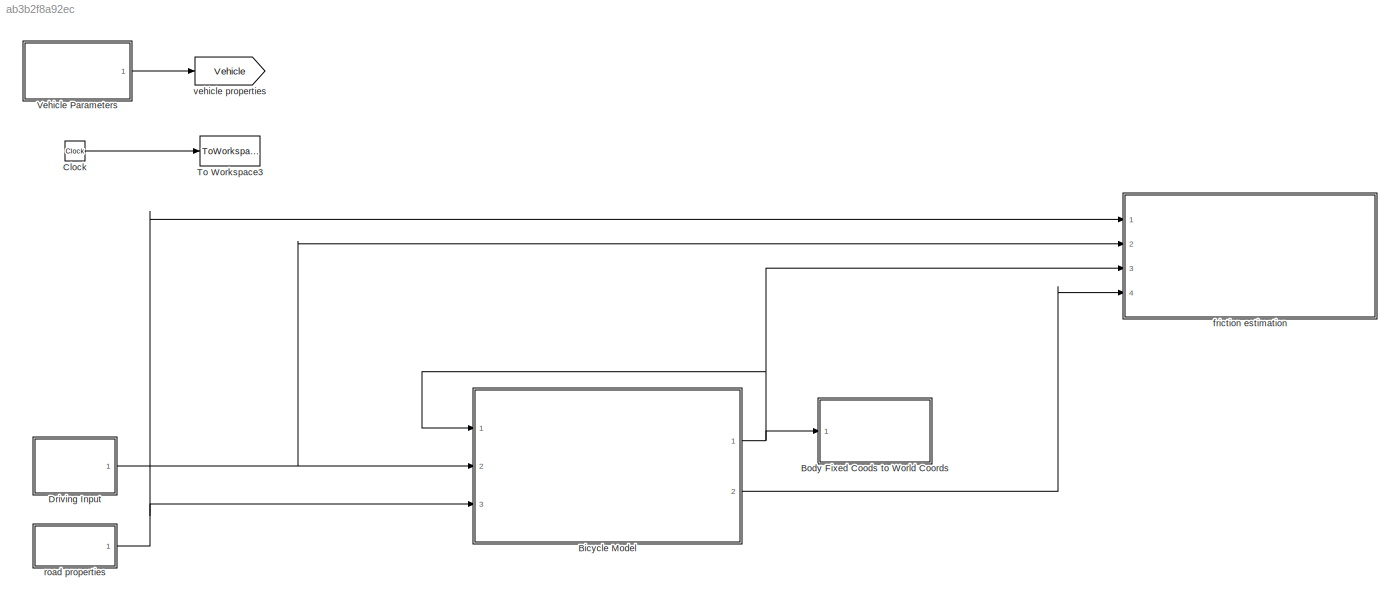
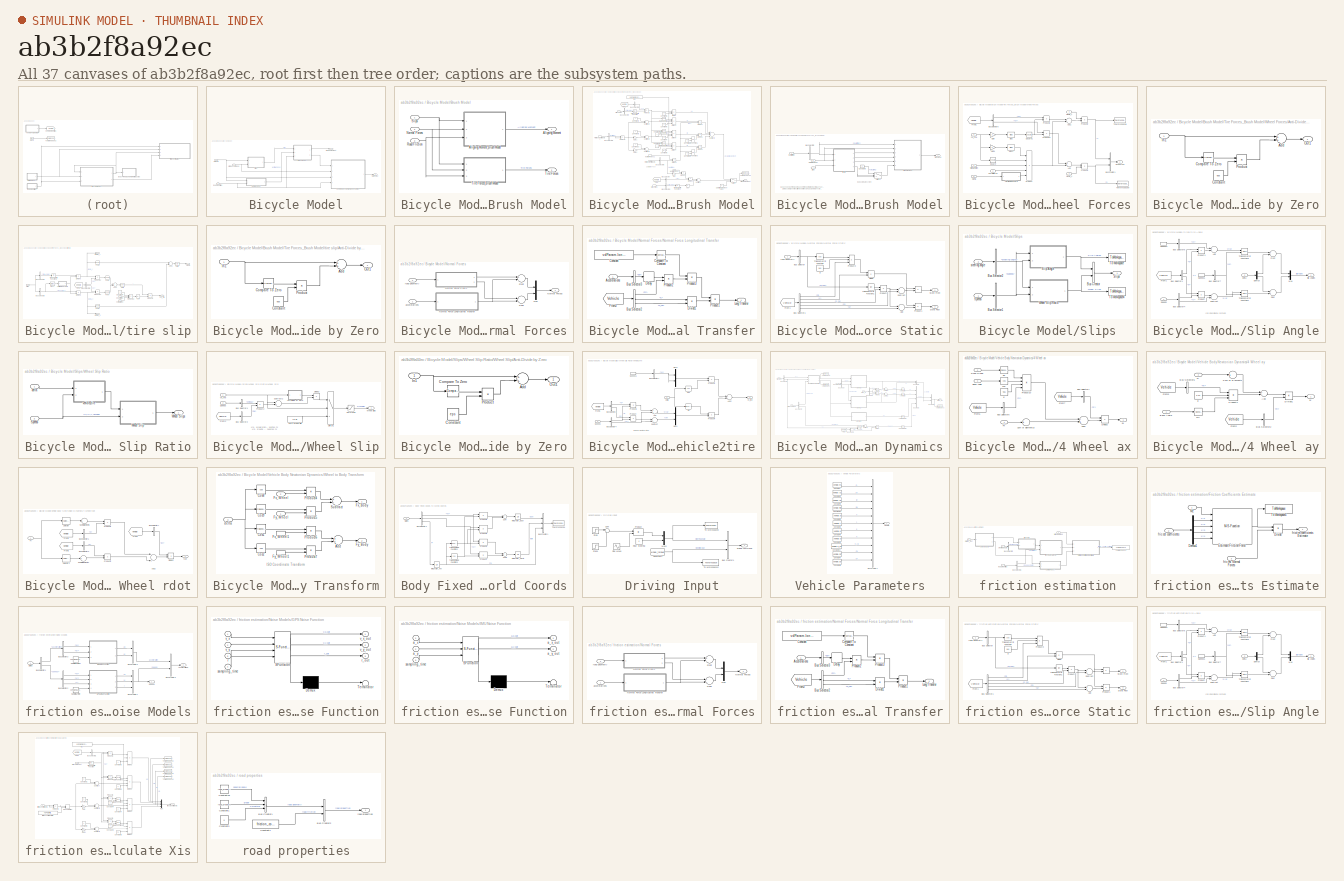
[diagram: thumbnail index - all 37 canvases of the model, root first then tree order]
MODEL slx_ab3b2f8a92ec
KIND model
CONFIG AbsTol = auto
CONFIG EnableMultiTasking = on
CONFIG FixedStep = 0.001
CONFIG MaxStep = auto
CONFIG MinStep = auto
CONFIG PreLoadFcn = addpath('./Utilities/');    % all the functions and wrapper class\naddpath('./DataFiles/');    % all the .mat data files\naddpath(genpath('./Figures/'));    % all the image files 
CONFIG RelTol = 1e-4
CONFIG SampleTimeConstraint = Unconstrained
CONFIG Solver = ode5
CONFIG SolverName = ode5
CONFIG StartTime = 0.0
CONFIG StopTime = 1
BLOCK [SubSystem] Bicycle Model
  Ports = [3, 2]
  RequestExecContextInheritance = off
BLOCK [Outport] Bicycle Model/Aligning Moment
  IconDisplay = Port number
  Port = 2
BLOCK [SubSystem] Bicycle Model/Brush Model
  Ports = [3, 2]
  RequestExecContextInheritance = off
BLOCK [Outport] Bicycle Model/Brush Model/Aligning Moment
  IconDisplay = Port number
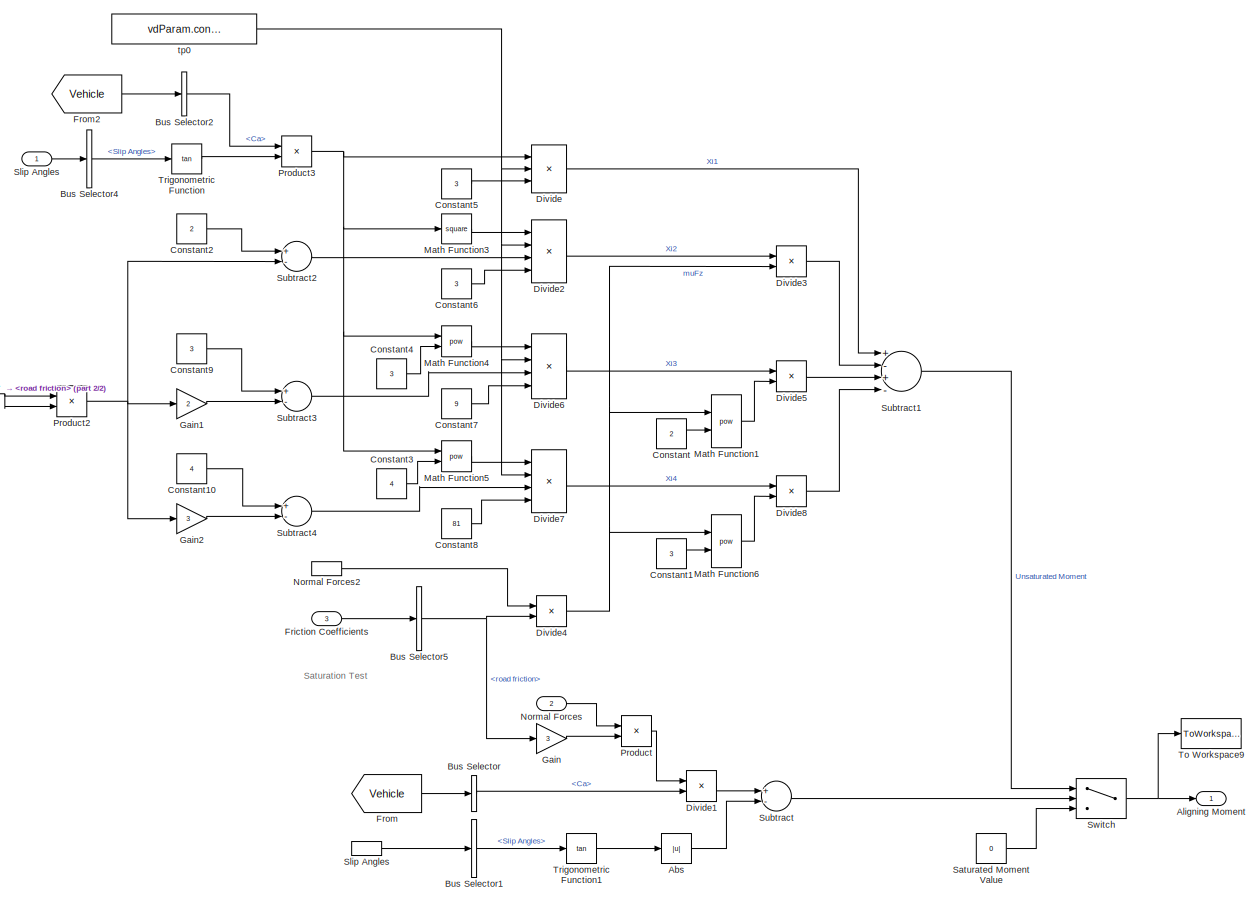
[diagram: Bicycle Model/Brush Model/Aligning Moment_Brush Model - part 1/2, most of the canvas]
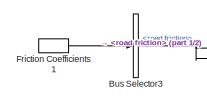
[diagram: Bicycle Model/Brush Model/Aligning Moment_Brush Model - part 2/2, middle left region]
BLOCK [SubSystem] Bicycle Model/Brush Model/Aligning Moment_Brush Model
  Ports = [3, 1]
  RequestExecContextInheritance = off
BLOCK [Abs] Bicycle Model/Brush Model/Aligning Moment_Brush Model/Abs
  SaturateOnIntegerOverflow = off
  ZeroCross = off
BLOCK [Outport] Bicycle Model/Brush Model/Aligning Moment_Brush Model/Aligning Moment
  IconDisplay = Port number
  VectorParamsAs1DForOutWhenUnconnected = off
BLOCK [BusSelector] Bicycle Model/Brush Model/Aligning Moment_Brush Model/Bus Selector
  OutputAsBus = off
  OutputSignals = Ca
  Ports = [1, 1]
BLOCK [BusSelector] Bicycle Model/Brush Model/Aligning Moment_Brush Model/Bus Selector1
  OutputAsBus = off
  OutputSignals = Slip Angles
  Ports = [1, 1]
BLOCK [BusSelector] Bicycle Model/Brush Model/Aligning Moment_Brush Model/Bus Selector2
  OutputAsBus = off
  OutputSignals = Ca
  Ports = [1, 1]
BLOCK [BusSelector] Bicycle Model/Brush Model/Aligning Moment_Brush Model/Bus Selector3
  OutputAsBus = off
  OutputSignals = road friction
  Ports = [1, 1]
BLOCK [BusSelector] Bicycle Model/Brush Model/Aligning Moment_Brush Model/Bus Selector4
  OutputAsBus = off
  OutputSignals = Slip Angles
  Ports = [1, 1]
BLOCK [BusSelector] Bicycle Model/Brush Model/Aligning Moment_Brush Model/Bus Selector5
  OutputAsBus = off
  OutputSignals = road friction
  Ports = [1, 1]
BLOCK [Constant] Bicycle Model/Brush Model/Aligning Moment_Brush Model/Constant
  Value = 2
BLOCK [Constant] Bicycle Model/Brush Model/Aligning Moment_Brush Model/Constant1
  Value = 3
BLOCK [Constant] Bicycle Model/Brush Model/Aligning Moment_Brush Model/Constant10
  Value = 4
BLOCK [Constant] Bicycle Model/Brush Model/Aligning Moment_Brush Model/Constant2
  Value = 2
BLOCK [Constant] Bicycle Model/Brush Model/Aligning Moment_Brush Model/Constant3
  Value = 4
BLOCK [Constant] Bicycle Model/Brush Model/Aligning Moment_Brush Model/Constant4
  Value = 3
BLOCK [Constant] Bicycle Model/Brush Model/Aligning Moment_Brush Model/Constant5
  Value = 3
BLOCK [Constant] Bicycle Model/Brush Model/Aligning Moment_Brush Model/Constant6
  Value = 3
BLOCK [Constant] Bicycle Model/Brush Model/Aligning Moment_Brush Model/Constant7
  Value = 9
BLOCK [Constant] Bicycle Model/Brush Model/Aligning Moment_Brush Model/Constant8
  Value = 81
BLOCK [Constant] Bicycle Model/Brush Model/Aligning Moment_Brush Model/Constant9
  Value = 3
BLOCK [Product] Bicycle Model/Brush Model/Aligning Moment_Brush Model/Divide
  InputSameDT = off
  Inputs = **/
  OutDataTypeStr = Inherit: Inherit via internal rule
  Ports = [3, 1]
  RndMeth = Floor
  SaturateOnIntegerOverflow = off
BLOCK [Product] Bicycle Model/Brush Model/Aligning Moment_Brush Model/Divide1
  InputSameDT = off
  Inputs = */
  OutDataTypeStr = Inherit: Inherit via internal rule
  Ports = [2, 1]
  RndMeth = Floor
  SaturateOnIntegerOverflow = off
BLOCK [Product] Bicycle Model/Brush Model/Aligning Moment_Brush Model/Divide2
  InputSameDT = off
  Inputs = ***/
  OutDataTypeStr = Inherit: Inherit via internal rule
  Ports = [4, 1]
  RndMeth = Floor
  SaturateOnIntegerOverflow = off
BLOCK [Product] Bicycle Model/Brush Model/Aligning Moment_Brush Model/Divide3
  InputSameDT = off
  Inputs = */
  OutDataTypeStr = Inherit: Inherit via internal rule
  Ports = [2, 1]
  RndMeth = Floor
  SaturateOnIntegerOverflow = off
BLOCK [Product] Bicycle Model/Brush Model/Aligning Moment_Brush Model/Divide4
  InputSameDT = off
  OutDataTypeStr = Inherit: Inherit via internal rule
  Ports = [2, 1]
  RndMeth = Floor
  SaturateOnIntegerOverflow = off
BLOCK [Product] Bicycle Model/Brush Model/Aligning Moment_Brush Model/Divide5
  InputSameDT = off
  Inputs = */
  OutDataTypeStr = Inherit: Inherit via internal rule
  Ports = [2, 1]
  RndMeth = Floor
  SaturateOnIntegerOverflow = off
BLOCK [Product] Bicycle Model/Brush Model/Aligning Moment_Brush Model/Divide6
  InputSameDT = off
  Inputs = ***/
  OutDataTypeStr = Inherit: Inherit via internal rule
  Ports = [4, 1]
  RndMeth = Floor
  SaturateOnIntegerOverflow = off
BLOCK [Product] Bicycle Model/Brush Model/Aligning Moment_Brush Model/Divide7
  InputSameDT = off
  Inputs = ***/
  OutDataTypeStr = Inherit: Inherit via internal rule
  Ports = [4, 1]
  RndMeth = Floor
  SaturateOnIntegerOverflow = off
BLOCK [Product] Bicycle Model/Brush Model/Aligning Moment_Brush Model/Divide8
  InputSameDT = off
  Inputs = */
  OutDataTypeStr = Inherit: Inherit via internal rule
  Ports = [2, 1]
  RndMeth = Floor
  SaturateOnIntegerOverflow = off
BLOCK [Inport] Bicycle Model/Brush Model/Aligning Moment_Brush Model/Friction Coefficients
  IconDisplay = Port number
  Port = 3
BLOCK [InportShadow] Bicycle Model/Brush Model/Aligning Moment_Brush Model/Friction Coefficients1
  IconDisplay = Port number
  Port = 3
BLOCK [From] Bicycle Model/Brush Model/Aligning Moment_Brush Model/From
  GotoTag = Vehicle
  TagVisibility = global
BLOCK [From] Bicycle Model/Brush Model/Aligning Moment_Brush Model/From2
  GotoTag = Vehicle
  TagVisibility = global
BLOCK [Gain] Bicycle Model/Brush Model/Aligning Moment_Brush Model/Gain
  Gain = 3
  OutDataTypeStr = Inherit: Inherit via internal rule
  ParamDataTypeStr = Inherit: Inherit via internal rule
  SaturateOnIntegerOverflow = off
BLOCK [Gain] Bicycle Model/Brush Model/Aligning Moment_Brush Model/Gain1
  Gain = 2
  OutDataTypeStr = Inherit: Inherit via internal rule
  ParamDataTypeStr = Inherit: Inherit via internal rule
  SaturateOnIntegerOverflow = off
BLOCK [Gain] Bicycle Model/Brush Model/Aligning Moment_Brush Model/Gain2
  Gain = 3
  OutDataTypeStr = Inherit: Inherit via internal rule
  ParamDataTypeStr = Inherit: Inherit via internal rule
  SaturateOnIntegerOverflow = off
BLOCK [Math] Bicycle Model/Brush Model/Aligning Moment_Brush Model/Math Function1
  Operator = pow
  Ports = [2, 1]
  SignedPower = off
BLOCK [Math] Bicycle Model/Brush Model/Aligning Moment_Brush Model/Math Function3
  Operator = square
  Ports = [1, 1]
BLOCK [Math] Bicycle Model/Brush Model/Aligning Moment_Brush Model/Math Function4
  Operator = pow
  Ports = [2, 1]
  SignedPower = off
BLOCK [Math] Bicycle Model/Brush Model/Aligning Moment_Brush Model/Math Function5
  Operator = pow
  Ports = [2, 1]
  SignedPower = off
BLOCK [Math] Bicycle Model/Brush Model/Aligning Moment_Brush Model/Math Function6
  Operator = pow
  Ports = [2, 1]
  SignedPower = off
BLOCK [Inport] Bicycle Model/Brush Model/Aligning Moment_Brush Model/Normal Forces
  IconDisplay = Port number
  Port = 2
BLOCK [InportShadow] Bicycle Model/Brush Model/Aligning Moment_Brush Model/Normal Forces2
  IconDisplay = Port number
  Port = 2
BLOCK [Product] Bicycle Model/Brush Model/Aligning Moment_Brush Model/Product
  InputSameDT = off
  OutDataTypeStr = Inherit: Inherit via internal rule
  Ports = [2, 1]
  SaturateOnIntegerOverflow = off
BLOCK [Product] Bicycle Model/Brush Model/Aligning Moment_Brush Model/Product2
  InputSameDT = off
  Inputs = */
  OutDataTypeStr = Inherit: Inherit via internal rule
  Ports = [2, 1]
  SaturateOnIntegerOverflow = off
BLOCK [Product] Bicycle Model/Brush Model/Aligning Moment_Brush Model/Product3
  InputSameDT = off
  OutDataTypeStr = Inherit: Inherit via internal rule
  Ports = [2, 1]
  SaturateOnIntegerOverflow = off
BLOCK [Constant] Bicycle Model/Brush Model/Aligning Moment_Brush Model/Saturated Moment Value
  Value = 0
BLOCK [Inport] Bicycle Model/Brush Model/Aligning Moment_Brush Model/Slip Angles
  IconDisplay = Port number
BLOCK [InportShadow] Bicycle Model/Brush Model/Aligning Moment_Brush Model/Slip Angles 
  IconDisplay = Port number
BLOCK [Sum] Bicycle Model/Brush Model/Aligning Moment_Brush Model/Subtract
  InputSameDT = off
  Inputs = +-
  OutDataTypeStr = Inherit: Inherit via internal rule
  Ports = [2, 1]
  SaturateOnIntegerOverflow = off
BLOCK [Sum] Bicycle Model/Brush Model/Aligning Moment_Brush Model/Subtract1
  InputSameDT = off
  Inputs = +-+-
  OutDataTypeStr = Inherit: Inherit via internal rule
  Ports = [4, 1]
  SaturateOnIntegerOverflow = off
BLOCK [Sum] Bicycle Model/Brush Model/Aligning Moment_Brush Model/Subtract2
  InputSameDT = off
  Inputs = +-
  OutDataTypeStr = Inherit: Inherit via internal rule
  Ports = [2, 1]
  SaturateOnIntegerOverflow = off
BLOCK [Sum] Bicycle Model/Brush Model/Aligning Moment_Brush Model/Subtract3
  InputSameDT = off
  Inputs = +-
  OutDataTypeStr = Inherit: Inherit via internal rule
  Ports = [2, 1]
  SaturateOnIntegerOverflow = off
BLOCK [Sum] Bicycle Model/Brush Model/Aligning Moment_Brush Model/Subtract4
  InputSameDT = off
  Inputs = +-
  OutDataTypeStr = Inherit: Inherit via internal rule
  Ports = [2, 1]
  SaturateOnIntegerOverflow = off
BLOCK [Switch] Bicycle Model/Brush Model/Aligning Moment_Brush Model/Switch
  Criteria = u2 > Threshold
  InputSameDT = off
  SaturateOnIntegerOverflow = off
BLOCK [ToWorkspace] Bicycle Model/Brush Model/Aligning Moment_Brush Model/To Workspace9
  MaxDataPoints = inf
  Ports = [1]
  SampleTime = -1
  VariableName = Mz
BLOCK [Trigonometry] Bicycle Model/Brush Model/Aligning Moment_Brush Model/Trigonometric Function
  Operator = tan
  Ports = [1, 1]
BLOCK [Trigonometry] Bicycle Model/Brush Model/Aligning Moment_Brush Model/Trigonometric Function1
  Operator = tan
  Ports = [1, 1]
BLOCK [Constant] Bicycle Model/Brush Model/Aligning Moment_Brush Model/tp0
  Value = vdParam.contactPatchLength
BLOCK [Inport] Bicycle Model/Brush Model/Normal Forces
  IconDisplay = Port number
  Port = 2
BLOCK [Inport] Bicycle Model/Brush Model/Road Friction
  IconDisplay = Port number
  Port = 3
BLOCK [Inport] Bicycle Model/Brush Model/Slips
  IconDisplay = Port number
BLOCK [Outport] Bicycle Model/Brush Model/Tire Forces
  IconDisplay = Port number
  Port = 2
BLOCK [SubSystem] Bicycle Model/Brush Model/Tire Forces_Brush Model
  Ports = [3, 1]
  RequestExecContextInheritance = off
BLOCK [BusSelector] Bicycle Model/Brush Model/Tire Forces_Brush Model/Bus Selector2
  OutputAsBus = off
  OutputSignals = road friction
  Ports = [1, 1]
BLOCK [Constant] Bicycle Model/Brush Model/Tire Forces_Brush Model/Constant3
BLOCK [Inport] Bicycle Model/Brush Model/Tire Forces_Brush Model/Normal Forces
  IconDisplay = Port number
  Port = 2
BLOCK [Inport] Bicycle Model/Brush Model/Tire Forces_Brush Model/Slips
  IconDisplay = Port number
BLOCK [Switch] Bicycle Model/Brush Model/Tire Forces_Brush Model/Switch1
  InputSameDT = off
  SaturateOnIntegerOverflow = off
  Threshold = 1
  ZeroCross = off
BLOCK [Outport] Bicycle Model/Brush Model/Tire Forces_Brush Model/Tire Forces
  IconDisplay = Port number
BLOCK [SubSystem] Bicycle Model/Brush Model/Tire Forces_Brush Model/Wheel Forces
  Ports = [6, 1]
  RequestExecContextInheritance = off
BLOCK [Sum] Bicycle Model/Brush Model/Tire Forces_Brush Model/Wheel Forces/Add
  InputSameDT = off
  OutDataTypeStr = Inherit: Inherit via internal rule
  Ports = [2, 1]
  SaturateOnIntegerOverflow = off
BLOCK [Sum] Bicycle Model/Brush Model/Tire Forces_Brush Model/Wheel Forces/Add1
  InputSameDT = off
  Inputs = --
  OutDataTypeStr = Inherit: Inherit via internal rule
  Ports = [2, 1]
  SaturateOnIntegerOverflow = off
BLOCK [SubSystem] Bicycle Model/Brush Model/Tire Forces_Brush Model/Wheel Forces/Anti-Divide by Zero
  Ports = [1, 1]
  RequestExecContextInheritance = off
BLOCK [Sum] Bicycle Model/Brush Model/Tire Forces_Brush Model/Wheel Forces/Anti-Divide by Zero/Add
  InputSameDT = off
  OutDataTypeStr = Inherit: Inherit via internal rule
  Ports = [2, 1]
  SaturateOnIntegerOverflow = off
BLOCK [Reference] Bicycle Model/Brush Model/Tire Forces_Brush Model/Wheel Forces/Anti-Divide by Zero/Compare To Zero  REF=simulink/Logic and Bit
Operations/Compare
To Zero
  Ports = [1, 1]
  SourceBlock = simulink/Logic and Bit\nOperations/Compare\nTo Zero
  SourceProductBaseCode = SL
  SourceType = Compare To Zero
BLOCK [Constant] Bicycle Model/Brush Model/Tire Forces_Brush Model/Wheel Forces/Anti-Divide by Zero/Constant
  Value = eps
BLOCK [Inport] Bicycle Model/Brush Model/Tire Forces_Brush Model/Wheel Forces/Anti-Divide by Zero/In1
  IconDisplay = Port number
BLOCK [Outport] Bicycle Model/Brush Model/Tire Forces_Brush Model/Wheel Forces/Anti-Divide by Zero/Out1
  IconDisplay = Port number
BLOCK [Product] Bicycle Model/Brush Model/Tire Forces_Brush Model/Wheel Forces/Anti-Divide by Zero/Product
  InputSameDT = off
  OutDataTypeStr = Inherit: Inherit via internal rule
  Ports = [2, 1]
  RndMeth = Floor
  SaturateOnIntegerOverflow = off
BLOCK [Bias] Bicycle Model/Brush Model/Tire Forces_Brush Model/Wheel Forces/Bias
  Bias = 1
  SaturateOnIntegerOverflow = off
BLOCK [Bias] Bicycle Model/Brush Model/Tire Forces_Brush Model/Wheel Forces/Bias1
  Bias = 3
  SaturateOnIntegerOverflow = off
BLOCK [BusCreator] Bicycle Model/Brush Model/Tire Forces_Brush Model/Wheel Forces/Bus Creator1
  DisplayOption = bar
  InheritFromInputs = on
  Inputs = 2
  Ports = [2, 1]
BLOCK [BusSelector] Bicycle Model/Brush Model/Tire Forces_Brush Model/Wheel Forces/Bus Selector5
  OutputAsBus = off
  OutputSignals = Ca,Cx
  Ports = [1, 2]
BLOCK [From] Bicycle Model/Brush Model/Tire Forces_Brush Model/Wheel Forces/From1
  GotoTag = Vehicle
  TagVisibility = global
BLOCK [Gain] Bicycle Model/Brush Model/Tire Forces_Brush Model/Wheel Forces/Gain
  Gain = -1
  OutDataTypeStr = Inherit: Inherit via internal rule
  ParamDataTypeStr = Inherit: Inherit via internal rule
  SaturateOnIntegerOverflow = off
BLOCK [Gain] Bicycle Model/Brush Model/Tire Forces_Brush Model/Wheel Forces/Gain1
  Gain = -2
  OutDataTypeStr = Inherit: Inherit via internal rule
  ParamDataTypeStr = Inherit: Inherit via internal rule
  SaturateOnIntegerOverflow = off
BLOCK [Product] Bicycle Model/Brush Model/Tire Forces_Brush Model/Wheel Forces/Product
  InputSameDT = off
  Inputs = ****/
  OutDataTypeStr = Inherit: Inherit via internal rule
  Ports = [5, 1]
  RndMeth = Floor
  SaturateOnIntegerOverflow = off
BLOCK [Product] Bicycle Model/Brush Model/Tire Forces_Brush Model/Wheel Forces/Product1
  InputSameDT = off
  OutDataTypeStr = Inherit: Inherit via internal rule
  Ports = [2, 1]
  SaturateOnIntegerOverflow = off
BLOCK [Product] Bicycle Model/Brush Model/Tire Forces_Brush Model/Wheel Forces/Product11
  InputSameDT = off
  OutDataTypeStr = Inherit: Inherit via internal rule
  Ports = [2, 1]
  SaturateOnIntegerOverflow = off
BLOCK [Product] Bicycle Model/Brush Model/Tire Forces_Brush Model/Wheel Forces/Product2
  InputSameDT = off
  OutDataTypeStr = Inherit: Inherit via internal rule
  Ports = [2, 1]
  SaturateOnIntegerOverflow = off
BLOCK [Product] Bicycle Model/Brush Model/Tire Forces_Brush Model/Wheel Forces/Product3
  InputSameDT = off
  OutDataTypeStr = Inherit: Inherit via internal rule
  Ports = [2, 1]
  SaturateOnIntegerOverflow = off
BLOCK [Inport] Bicycle Model/Brush Model/Tire Forces_Brush Model/Wheel Forces/Psi_Tire
  IconDisplay = Port number
  Port = 6
BLOCK [Math] Bicycle Model/Brush Model/Tire Forces_Brush Model/Wheel Forces/Square
  Operator = square
  Ports = [1, 1]
  SignedPower = off
BLOCK [Math] Bicycle Model/Brush Model/Tire Forces_Brush Model/Wheel Forces/Square1
  Operator = square
  Ports = [1, 1]
  SignedPower = off
BLOCK [Outport] Bicycle Model/Brush Model/Tire Forces_Brush Model/Wheel Forces/Tire Forces
  IconDisplay = Port number
BLOCK [ToWorkspace] Bicycle Model/Brush Model/Tire Forces_Brush Model/Wheel Forces/To Workspace8
  MaxDataPoints = inf
  Ports = [1]
  SampleTime = -1
  VariableName = Fy
BLOCK [ToWorkspace] Bicycle Model/Brush Model/Tire Forces_Brush Model/Wheel Forces/To Workspace9
  MaxDataPoints = inf
  Ports = [1]
  SampleTime = -1
  VariableName = Fx
BLOCK [Inport] Bicycle Model/Brush Model/Tire Forces_Brush Model/Wheel Forces/normal force
  IconDisplay = Port number
  Port = 2
BLOCK [Inport] Bicycle Model/Brush Model/Tire Forces_Brush Model/Wheel Forces/sigma
  IconDisplay = Port number
  Port = 5
BLOCK [Inport] Bicycle Model/Brush Model/Tire Forces_Brush Model/Wheel Forces/sigma_x
  IconDisplay = Port number
  Port = 3
BLOCK [Inport] Bicycle Model/Brush Model/Tire Forces_Brush Model/Wheel Forces/sigma_y
  IconDisplay = Port number
  Port = 4
BLOCK [Inport] Bicycle Model/Brush Model/Tire Forces_Brush Model/Wheel Forces/sliding friction
  IconDisplay = Port number
BLOCK [Inport] Bicycle Model/Brush Model/Tire Forces_Brush Model/road friction
  IconDisplay = Port number
  Port = 3
BLOCK [SubSystem] Bicycle Model/Brush Model/Tire Forces_Brush Model/tire slip
  Ports = [3, 4]
  RequestExecContextInheritance = off
BLOCK [Abs] Bicycle Model/Brush Model/Tire Forces_Brush Model/tire slip/Abs
  SaturateOnIntegerOverflow = off
BLOCK [Sum] Bicycle Model/Brush Model/Tire Forces_Brush Model/tire slip/Add1
  InputSameDT = off
  OutDataTypeStr = Inherit: Inherit via internal rule
  Ports = [2, 1]
  SaturateOnIntegerOverflow = off
BLOCK [Sum] Bicycle Model/Brush Model/Tire Forces_Brush Model/tire slip/Add2
  InputSameDT = off
  OutDataTypeStr = Inherit: Inherit via internal rule
  Ports = [2, 1]
  SaturateOnIntegerOverflow = off
BLOCK [SubSystem] Bicycle Model/Brush Model/Tire Forces_Brush Model/tire slip/Anti-Divide by Zero
  Ports = [1, 1]
  RequestExecContextInheritance = off
BLOCK [Sum] Bicycle Model/Brush Model/Tire Forces_Brush Model/tire slip/Anti-Divide by Zero/Add
  InputSameDT = off
  OutDataTypeStr = Inherit: Inherit via internal rule
  Ports = [2, 1]
  SaturateOnIntegerOverflow = off
BLOCK [Reference] Bicycle Model/Brush Model/Tire Forces_Brush Model/tire slip/Anti-Divide by Zero/Compare To Zero  REF=simulink/Logic and Bit
Operations/Compare
To Zero
  Ports = [1, 1]
  SourceBlock = simulink/Logic and Bit\nOperations/Compare\nTo Zero
  SourceProductBaseCode = SL
  SourceType = Compare To Zero
BLOCK [Constant] Bicycle Model/Brush Model/Tire Forces_Brush Model/tire slip/Anti-Divide by Zero/Constant
  Value = eps
BLOCK [Inport] Bicycle Model/Brush Model/Tire Forces_Brush Model/tire slip/Anti-Divide by Zero/In1
  IconDisplay = Port number
BLOCK [Outport] Bicycle Model/Brush Model/Tire Forces_Brush Model/tire slip/Anti-Divide by Zero/Out1
  IconDisplay = Port number
BLOCK [Product] Bicycle Model/Brush Model/Tire Forces_Brush Model/tire slip/Anti-Divide by Zero/Product
  InputSameDT = off
  OutDataTypeStr = Inherit: Inherit via internal rule
  Ports = [2, 1]
  RndMeth = Floor
  SaturateOnIntegerOverflow = off
BLOCK [Bias] Bicycle Model/Brush Model/Tire Forces_Brush Model/tire slip/Bias4
  Bias = 1
  SaturateOnIntegerOverflow = off
BLOCK [BusSelector] Bicycle Model/Brush Model/Tire Forces_Brush Model/tire slip/Bus Selector3
  OutputAsBus = off
  OutputSignals = Wheel Slips
  Ports = [1, 1]
BLOCK [BusSelector] Bicycle Model/Brush Model/Tire Forces_Brush Model/tire slip/Bus Selector5
  OutputAsBus = off
  OutputSignals = Ca,Cx
  Ports = [1, 2]
BLOCK [BusSelector] Bicycle Model/Brush Model/Tire Forces_Brush Model/tire slip/Bus Selector6
  OutputAsBus = off
  OutputSignals = Slip Angles
  Ports = [1, 1]
BLOCK [Constant] Bicycle Model/Brush Model/Tire Forces_Brush Model/tire slip/Constant7
  Value = 3
BLOCK [Product] Bicycle Model/Brush Model/Tire Forces_Brush Model/tire slip/Divide5
  InputSameDT = off
  Inputs = */
  OutDataTypeStr = Inherit: Inherit via internal rule
  Ports = [2, 1]
  RndMeth = Floor
  SaturateOnIntegerOverflow = off
BLOCK [Product] Bicycle Model/Brush Model/Tire Forces_Brush Model/tire slip/Divide6
  InputSameDT = off
  Inputs = */
  OutDataTypeStr = Inherit: Inherit via internal rule
  Ports = [2, 1]
  RndMeth = Floor
  SaturateOnIntegerOverflow = off
BLOCK [From] Bicycle Model/Brush Model/Tire Forces_Brush Model/tire slip/From3
  GotoTag = Vehicle
  TagVisibility = global
BLOCK [Math] Bicycle Model/Brush Model/Tire Forces_Brush Model/tire slip/Pow1
  Operator = square
  Ports = [1, 1]
BLOCK [Math] Bicycle Model/Brush Model/Tire Forces_Brush Model/tire slip/Pow2
  Operator = square
  Ports = [1, 1]
BLOCK [Math] Bicycle Model/Brush Model/Tire Forces_Brush Model/tire slip/Pow6
  Operator = square
  Ports = [1, 1]
BLOCK [Math] Bicycle Model/Brush Model/Tire Forces_Brush Model/tire slip/Pow7
  Operator = square
  Ports = [1, 1]
BLOCK [Product] Bicycle Model/Brush Model/Tire Forces_Brush Model/tire slip/Product10
  InputSameDT = off
  Inputs = 3
  OutDataTypeStr = Inherit: Inherit via internal rule
  Ports = [3, 1]
  SaturateOnIntegerOverflow = off
BLOCK [Product] Bicycle Model/Brush Model/Tire Forces_Brush Model/tire slip/Product12
  InputSameDT = off
  OutDataTypeStr = Inherit: Inherit via internal rule
  Ports = [2, 1]
  SaturateOnIntegerOverflow = off
BLOCK [Product] Bicycle Model/Brush Model/Tire Forces_Brush Model/tire slip/Product13
  InputSameDT = off
  OutDataTypeStr = Inherit: Inherit via internal rule
  Ports = [2, 1]
  SaturateOnIntegerOverflow = off
BLOCK [Product] Bicycle Model/Brush Model/Tire Forces_Brush Model/tire slip/Product2
  InputSameDT = off
  Inputs = */
  OutDataTypeStr = Inherit: Inherit via internal rule
  Ports = [2, 1]
  SaturateOnIntegerOverflow = off
BLOCK [Outport] Bicycle Model/Brush Model/Tire Forces_Brush Model/tire slip/Psi_Tire
  IconDisplay = Port number
  Port = 4
BLOCK [Inport] Bicycle Model/Brush Model/Tire Forces_Brush Model/tire slip/Slips
  IconDisplay = Port number
  Port = 3
BLOCK [Sqrt] Bicycle Model/Brush Model/Tire Forces_Brush Model/tire slip/Sqrt1
BLOCK [Sqrt] Bicycle Model/Brush Model/Tire Forces_Brush Model/tire slip/Sqrt2
BLOCK [Trigonometry] Bicycle Model/Brush Model/Tire Forces_Brush Model/tire slip/Trigonometric Function1
  Operator = tan
  Ports = [1, 1]
BLOCK [Inport] Bicycle Model/Brush Model/Tire Forces_Brush Model/tire slip/normal force
  IconDisplay = Port number
  Port = 2
BLOCK [Inport] Bicycle Model/Brush Model/Tire Forces_Brush Model/tire slip/peak friction
  IconDisplay = Port number
BLOCK [Outport] Bicycle Model/Brush Model/Tire Forces_Brush Model/tire slip/sigma
  IconDisplay = Port number
  Port = 3
BLOCK [Outport] Bicycle Model/Brush Model/Tire Forces_Brush Model/tire slip/sigma_x
  IconDisplay = Port number
BLOCK [Outport] Bicycle Model/Brush Model/Tire Forces_Brush Model/tire slip/sigma_y
  IconDisplay = Port number
  Port = 2
BLOCK [SubSystem] Bicycle Model/Normal Forces
  Ports = [2, 1]
  RequestExecContextInheritance = off
BLOCK [Sum] Bicycle Model/Normal Forces/Front
  InputSameDT = off
  Inputs = +-
  OutDataTypeStr = Inherit: Inherit via internal rule
  Ports = [2, 1]
  SaturateOnIntegerOverflow = off
BLOCK [Mux] Bicycle Model/Normal Forces/Mux
  DisplayOption = bar
  Inputs = 2
  Ports = [2, 1]
BLOCK [SubSystem] Bicycle Model/Normal Forces/Normal Force Longitudinal Transfer
  Ports = [1, 1]
  RequestExecContextInheritance = off
BLOCK [Inport] Bicycle Model/Normal Forces/Normal Force Longitudinal Transfer/Accelerations
  IconDisplay = Port number
BLOCK [BusSelector] Bicycle Model/Normal Forces/Normal Force Longitudinal Transfer/Bus Selector2
  OutputAsBus = off
  OutputSignals = m,L,h_cg
  Ports = [1, 3]
BLOCK [BusSelector] Bicycle Model/Normal Forces/Normal Force Longitudinal Transfer/Bus Selector3
  OutputAsBus = off
  OutputSignals = acceleration.ax
  Ports = [1, 1]
BLOCK [Reference] Bicycle Model/Normal Forces/Normal Force Longitudinal Transfer/Compare To Constant  REF=simulink/Logic and Bit
Operations/Compare
To Constant
  Ports = [1, 1]
  SourceBlock = simulink/Logic and Bit\nOperations/Compare\nTo Constant
  SourceProductBaseCode = SL
  SourceType = Compare To Constant
BLOCK [Constant] Bicycle Model/Normal Forces/Normal Force Longitudinal Transfer/Constant
  Value = vdParam.longitudinalTransfer
BLOCK [Delay] Bicycle Model/Normal Forces/Normal Force Longitudinal Transfer/Delay
  DelayLength = 1
  InitialCondition = 0
  InputPortMap = u0
  Ports = [1, 1]
BLOCK [Product] Bicycle Model/Normal Forces/Normal Force Longitudinal Transfer/Divide1
  InputSameDT = off
  Inputs = /*
  OutDataTypeStr = Inherit: Inherit via internal rule
  Ports = [2, 1]
  RndMeth = Floor
  SaturateOnIntegerOverflow = off
BLOCK [From] Bicycle Model/Normal Forces/Normal Force Longitudinal Transfer/From2
  GotoTag = Vehicle
  TagVisibility = global
BLOCK [Outport] Bicycle Model/Normal Forces/Normal Force Longitudinal Transfer/Long Transfer
  IconDisplay = Port number
BLOCK [Product] Bicycle Model/Normal Forces/Normal Force Longitudinal Transfer/Product1
  InputSameDT = off
  OutDataTypeStr = Inherit: Inherit via internal rule
  Ports = [2, 1]
  SaturateOnIntegerOverflow = off
BLOCK [Product] Bicycle Model/Normal Forces/Normal Force Longitudinal Transfer/Product2
  InputSameDT = off
  OutDataTypeStr = Inherit: Inherit via internal rule
  Ports = [2, 1]
  SaturateOnIntegerOverflow = off
BLOCK [Product] Bicycle Model/Normal Forces/Normal Force Longitudinal Transfer/Product3
  InputSameDT = off
  OutDataTypeStr = Inherit: Inherit via internal rule
  Ports = [2, 1]
  SaturateOnIntegerOverflow = off
BLOCK [SubSystem] Bicycle Model/Normal Forces/Normal Force Static
  Ports = [1, 2]
  RequestExecContextInheritance = off
BLOCK [Product] Bicycle Model/Normal Forces/Normal Force Static/ 
  InputSameDT = off
  OutDataTypeStr = Inherit: Inherit via internal rule
  Ports = [2, 1]
  SaturateOnIntegerOverflow = off
BLOCK [Sum] Bicycle Model/Normal Forces/Normal Force Static/Add
  InputSameDT = off
  OutDataTypeStr = Inherit: Inherit via internal rule
  Ports = [2, 1]
  SaturateOnIntegerOverflow = off
BLOCK [BusSelector] Bicycle Model/Normal Forces/Normal Force Static/Bus Selector
  OutputAsBus = off
  OutputSignals = road geometry.grade
  Ports = [1, 1]
BLOCK [BusSelector] Bicycle Model/Normal Forces/Normal Force Static/Bus Selector1
  OutputAsBus = off
  OutputSignals = m,L,h_cg,b,a
  Ports = [1, 5]
BLOCK [Product] Bicycle Model/Normal Forces/Normal Force Static/Divide
  InputSameDT = off
  Inputs = */
  OutDataTypeStr = Inherit: Inherit via internal rule
  Ports = [2, 1]
  RndMeth = Floor
  SaturateOnIntegerOverflow = off
BLOCK [From] Bicycle Model/Normal Forces/Normal Force Static/From1
  GotoTag = Vehicle
  TagVisibility = global
BLOCK [Product] Bicycle Model/Normal Forces/Normal Force Static/Product1
  InputSameDT = off
  OutDataTypeStr = Inherit: Inherit via internal rule
  Ports = [2, 1]
  SaturateOnIntegerOverflow = off
BLOCK [Product] Bicycle Model/Normal Forces/Normal Force Static/Product3
  InputSameDT = off
  Inputs = 3
  OutDataTypeStr = Inherit: Inherit via internal rule
  Ports = [3, 1]
  SaturateOnIntegerOverflow = off
BLOCK [Product] Bicycle Model/Normal Forces/Normal Force Static/Product4
  InputSameDT = off
  OutDataTypeStr = Inherit: Inherit via internal rule
  Ports = [2, 1]
  SaturateOnIntegerOverflow = off
BLOCK [Outport] Bicycle Model/Normal Forces/Normal Force Static/Static Front
  IconDisplay = Port number
BLOCK [Outport] Bicycle Model/Normal Forces/Normal Force Static/Static Rear
  IconDisplay = Port number
  Port = 2
BLOCK [Sum] Bicycle Model/Normal Forces/Normal Force Static/Subtract
  InputSameDT = off
  Inputs = -+
  OutDataTypeStr = Inherit: Inherit via internal rule
  Ports = [2, 1]
  SaturateOnIntegerOverflow = off
BLOCK [Trigonometry] Bicycle Model/Normal Forces/Normal Force Static/Trigonometric Function
  Operator = cos
  Ports = [1, 1]
BLOCK [Trigonometry] Bicycle Model/Normal Forces/Normal Force Static/Trigonometric Function1
  Operator = tan
  Ports = [1, 1]
BLOCK [Constant] Bicycle Model/Normal Forces/Normal Force Static/g
  Value = 9.81
BLOCK [Inport] Bicycle Model/Normal Forces/Normal Force Static/road geometry
  IconDisplay = Port number
BLOCK [Outport] Bicycle Model/Normal Forces/Normal Forces
  IconDisplay = Port number
BLOCK [Sum] Bicycle Model/Normal Forces/Rear
  InputSameDT = off
  OutDataTypeStr = Inherit: Inherit via internal rule
  Ports = [2, 1]
  SaturateOnIntegerOverflow = off
BLOCK [Inport] Bicycle Model/Normal Forces/accelerations
  IconDisplay = Port number
BLOCK [Inport] Bicycle Model/Normal Forces/road geometry
  IconDisplay = Port number
  Port = 2
BLOCK [SubSystem] Bicycle Model/Slips
  Ports = [2, 1]
  RequestExecContextInheritance = off
BLOCK [BusCreator] Bicycle Model/Slips/Bus Creator
  DisplayOption = bar
  InheritFromInputs = on
  Inputs = 2
  Ports = [2, 1]
BLOCK [BusSelector] Bicycle Model/Slips/Bus Selector1
  OutputAsBus = off
  OutputSignals = speeds
  Ports = [1, 1]
BLOCK [BusSelector] Bicycle Model/Slips/Bus Selector2
  OutputAsBus = off
  OutputSignals = steering angle
  Ports = [1, 1]
BLOCK [SubSystem] Bicycle Model/Slips/Slip Angle
  Ports = [2, 1]
  RequestExecContextInheritance = off
BLOCK [Sum] Bicycle Model/Slips/Slip Angle/Add
  InputSameDT = off
  OutDataTypeStr = Inherit: Inherit via internal rule
  Ports = [2, 1]
  SaturateOnIntegerOverflow = off
BLOCK [BusSelector] Bicycle Model/Slips/Slip Angle/Bus Selector1
  OutputAsBus = off
  OutputSignals = a,b
  Ports = [1, 2]
BLOCK [BusSelector] Bicycle Model/Slips/Slip Angle/Bus Selector4
  OutputAsBus = off
  OutputSignals = r,Vy
  Ports = [1, 2]
BLOCK [BusSelector] Bicycle Model/Slips/Slip Angle/Bus Selector6
  OutputAsBus = off
  OutputSignals = Vy
  Ports = [1, 1]
BLOCK [BusSelector] Bicycle Model/Slips/Slip Angle/Bus Selector7
  OutputAsBus = off
  OutputSignals = Vx
  Ports = [1, 1]
BLOCK [Demux] Bicycle Model/Slips/Slip Angle/Demux
  DisplayOption = bar
  Outputs = 2
  Ports = [1, 2]
BLOCK [From] Bicycle Model/Slips/Slip Angle/From1
  GotoTag = Vehicle
  TagVisibility = global
BLOCK [Sum] Bicycle Model/Slips/Slip Angle/Front
  InputSameDT = off
  Inputs = +-
  OutDataTypeStr = Inherit: Inherit via internal rule
  Ports = [2, 1]
  SaturateOnIntegerOverflow = off
BLOCK [Mux] Bicycle Model/Slips/Slip Angle/Mux
  DisplayOption = bar
  Inputs = 2
  Ports = [2, 1]
BLOCK [Product] Bicycle Model/Slips/Slip Angle/Product
  InputSameDT = off
  OutDataTypeStr = Inherit: Inherit via internal rule
  Ports = [2, 1]
  SaturateOnIntegerOverflow = off
BLOCK [Product] Bicycle Model/Slips/Slip Angle/Product1
  InputSameDT = off
  OutDataTypeStr = Inherit: Inherit via internal rule
  Ports = [2, 1]
  SaturateOnIntegerOverflow = off
BLOCK [Sum] Bicycle Model/Slips/Slip Angle/Rear
  InputSameDT = off
  Inputs = -+
  OutDataTypeStr = Inherit: Inherit via internal rule
  Ports = [2, 1]
  SaturateOnIntegerOverflow = off
BLOCK [Outport] Bicycle Model/Slips/Slip Angle/Slip Angles
  IconDisplay = Port number
BLOCK [Inport] Bicycle Model/Slips/Slip Angle/Speeds
  IconDisplay = Port number
BLOCK [InportShadow] Bicycle Model/Slips/Slip Angle/Speeds1
  IconDisplay = Port number
BLOCK [InportShadow] Bicycle Model/Slips/Slip Angle/Speeds2
  IconDisplay = Port number
BLOCK [Sum] Bicycle Model/Slips/Slip Angle/Subtract
  InputSameDT = off
  Inputs = -+
  OutDataTypeStr = Inherit: Inherit via internal rule
  Ports = [2, 1]
  SaturateOnIntegerOverflow = off
BLOCK [Trigonometry] Bicycle Model/Slips/Slip Angle/Trigonometric Function1
  Operator = atan2
  Ports = [2, 1]
BLOCK [Trigonometry] Bicycle Model/Slips/Slip Angle/Trigonometric Function3
  Operator = atan2
  Ports = [2, 1]
BLOCK [Inport] Bicycle Model/Slips/Slip Angle/delta
  IconDisplay = Port number
  Port = 2
BLOCK [Outport] Bicycle Model/Slips/Slips
  IconDisplay = Port number
BLOCK [Inport] Bicycle Model/Slips/Speeds
  IconDisplay = Port number
BLOCK [ToWorkspace] Bicycle Model/Slips/To Workspace
  MaxDataPoints = inf
  Ports = [1]
  SampleTime = -1
  VariableName = alpha
BLOCK [ToWorkspace] Bicycle Model/Slips/To Workspace4
  MaxDataPoints = inf
  Ports = [1]
  SampleTime = -1
  VariableName = kappa
BLOCK [SubSystem] Bicycle Model/Slips/Wheel Slip Ratio
  Ports = [2, 1]
  RequestExecContextInheritance = off
BLOCK [Inport] Bicycle Model/Slips/Wheel Slip Ratio/Speeds
  IconDisplay = Port number
  Port = 2
BLOCK [SubSystem] Bicycle Model/Slips/Wheel Slip Ratio/Wheel Slip
  Ports = [2, 1]
  RequestExecContextInheritance = off
BLOCK [SubSystem] Bicycle Model/Slips/Wheel Slip Ratio/Wheel Slip/Anti-Divide by Zero
  Ports = [1, 1]
  RequestExecContextInheritance = off
BLOCK [Sum] Bicycle Model/Slips/Wheel Slip Ratio/Wheel Slip/Anti-Divide by Zero/Add
  InputSameDT = off
  OutDataTypeStr = Inherit: Inherit via internal rule
  Ports = [2, 1]
  SaturateOnIntegerOverflow = off
BLOCK [Reference] Bicycle Model/Slips/Wheel Slip Ratio/Wheel Slip/Anti-Divide by Zero/Compare To Zero  REF=simulink/Logic and Bit
Operations/Compare
To Zero
  Ports = [1, 1]
  SourceBlock = simulink/Logic and Bit\nOperations/Compare\nTo Zero
  SourceProductBaseCode = SL
  SourceType = Compare To Zero
BLOCK [Constant] Bicycle Model/Slips/Wheel Slip Ratio/Wheel Slip/Anti-Divide by Zero/Constant
  Value = eps
BLOCK [Inport] Bicycle Model/Slips/Wheel Slip Ratio/Wheel Slip/Anti-Divide by Zero/In1
  IconDisplay = Port number
BLOCK [Outport] Bicycle Model/Slips/Wheel Slip Ratio/Wheel Slip/Anti-Divide by Zero/Out1
  IconDisplay = Port number
BLOCK [Product] Bicycle Model/Slips/Wheel Slip Ratio/Wheel Slip/Anti-Divide by Zero/Product
  InputSameDT = off
  OutDataTypeStr = Inherit: Inherit via internal rule
  Ports = [2, 1]
  RndMeth = Floor
  SaturateOnIntegerOverflow = off
BLOCK [BusSelector] Bicycle Model/Slips/Wheel Slip Ratio/Wheel Slip/Bus Selector2
  OutputAsBus = off
  OutputSignals = Re
  Ports = [1, 1]
BLOCK [BusSelector] Bicycle Model/Slips/Wheel Slip Ratio/Wheel Slip/Bus Selector4
  OutputAsBus = off
  OutputSignals = omega
  Ports = [1, 1]
BLOCK [Product] Bicycle Model/Slips/Wheel Slip Ratio/Wheel Slip/Divide2
  InputSameDT = off
  Inputs = /*
  OutDataTypeStr = Inherit: Inherit via internal rule
  Ports = [2, 1]
  RndMeth = Floor
  SaturateOnIntegerOverflow = off
BLOCK [From] Bicycle Model/Slips/Wheel Slip Ratio/Wheel Slip/From2
  GotoTag = Vehicle
  TagVisibility = global
BLOCK [Product] Bicycle Model/Slips/Wheel Slip Ratio/Wheel Slip/Product2
  InputSameDT = off
  OutDataTypeStr = Inherit: Inherit via internal rule
  Ports = [2, 1]
  SaturateOnIntegerOverflow = off
BLOCK [Saturate] Bicycle Model/Slips/Wheel Slip Ratio/Wheel Slip/Saturation
  InputPortMap = u0
  LowerLimit = -1
  Ports = [1, 1]
  UpperLimit = 1
  ZeroCross = off
BLOCK [Inport] Bicycle Model/Slips/Wheel Slip Ratio/Wheel Slip/Speeds
  IconDisplay = Port number
  Port = 2
BLOCK [Sum] Bicycle Model/Slips/Wheel Slip Ratio/Wheel Slip/Subtract2
  InputSameDT = off
  Inputs = -+
  OutDataTypeStr = Inherit: Inherit via internal rule
  Ports = [2, 1]
  SaturateOnIntegerOverflow = off
BLOCK [Switch] Bicycle Model/Slips/Wheel Slip Ratio/Wheel Slip/Switch1
  Criteria = u2 > Threshold
  InputSameDT = off
  ZeroCross = off
BLOCK [Inport] Bicycle Model/Slips/Wheel Slip Ratio/Wheel Slip/Vx_tire
  IconDisplay = Port number
BLOCK [Outport] Bicycle Model/Slips/Wheel Slip Ratio/Wheel Slip/Wheel Slips
  IconDisplay = Port number
BLOCK [Constant] Bicycle Model/Slips/Wheel Slip Ratio/Wheel Slip/zero Wheel Slip
  Value = [0 0]
BLOCK [Outport] Bicycle Model/Slips/Wheel Slip Ratio/Wheel Slips
  IconDisplay = Port number
BLOCK [Inport] Bicycle Model/Slips/Wheel Slip Ratio/delta
  IconDisplay = Port number
BLOCK [SubSystem] Bicycle Model/Slips/Wheel Slip Ratio/vehicle2tire
  Ports = [2, 1]
  RequestExecContextInheritance = off
BLOCK [Sum] Bicycle Model/Slips/Wheel Slip Ratio/vehicle2tire/Add
  InputSameDT = off
  OutDataTypeStr = Inherit: Inherit via internal rule
  Ports = [2, 1]
  SaturateOnIntegerOverflow = off
BLOCK [Sum] Bicycle Model/Slips/Wheel Slip Ratio/vehicle2tire/Add2
  InputSameDT = off
  OutDataTypeStr = Inherit: Inherit via internal rule
  Ports = [2, 1]
  SaturateOnIntegerOverflow = off
BLOCK [BusSelector] Bicycle Model/Slips/Wheel Slip Ratio/vehicle2tire/Bus Selector1
  OutputAsBus = off
  OutputSignals = a,b
  Ports = [1, 2]
BLOCK [BusSelector] Bicycle Model/Slips/Wheel Slip Ratio/vehicle2tire/Bus Selector4
  OutputAsBus = off
  OutputSignals = r,Vy
  Ports = [1, 2]
BLOCK [BusSelector] Bicycle Model/Slips/Wheel Slip Ratio/vehicle2tire/Bus Selector7
  OutputAsBus = off
  OutputSignals = Vx
  Ports = [1, 1]
BLOCK [Trigonometry] Bicycle Model/Slips/Wheel Slip Ratio/vehicle2tire/Cos
  Operator = cos
  Ports = [1, 1]
BLOCK [From] Bicycle Model/Slips/Wheel Slip Ratio/vehicle2tire/From1
  GotoTag = Vehicle
  TagVisibility = global
BLOCK [Mux] Bicycle Model/Slips/Wheel Slip Ratio/vehicle2tire/Mux1
  DisplayOption = bar
  Inputs = 2
  Ports = [2, 1]
BLOCK [Mux] Bicycle Model/Slips/Wheel Slip Ratio/vehicle2tire/Mux2
  DisplayOption = bar
  Inputs = 2
  Ports = [2, 1]
BLOCK [Product] Bicycle Model/Slips/Wheel Slip Ratio/vehicle2tire/Product
  InputSameDT = off
  OutDataTypeStr = Inherit: Inherit via internal rule
  Ports = [2, 1]
  SaturateOnIntegerOverflow = off
BLOCK [Product] Bicycle Model/Slips/Wheel Slip Ratio/vehicle2tire/Product1
  InputSameDT = off
  OutDataTypeStr = Inherit: Inherit via internal rule
  Ports = [2, 1]
  SaturateOnIntegerOverflow = off
BLOCK [Product] Bicycle Model/Slips/Wheel Slip Ratio/vehicle2tire/Product2
  InputSameDT = off
  OutDataTypeStr = Inherit: Inherit via internal rule
  Ports = [2, 1]
  SaturateOnIntegerOverflow = off
BLOCK [Product] Bicycle Model/Slips/Wheel Slip Ratio/vehicle2tire/Product4
  InputSameDT = off
  OutDataTypeStr = Inherit: Inherit via internal rule
  Ports = [2, 1]
  SaturateOnIntegerOverflow = off
BLOCK [Trigonometry] Bicycle Model/Slips/Wheel Slip Ratio/vehicle2tire/Sin
  Ports = [1, 1]
BLOCK [Inport] Bicycle Model/Slips/Wheel Slip Ratio/vehicle2tire/Speeds
  IconDisplay = Port number
  Port = 2
BLOCK [InportShadow] Bicycle Model/Slips/Wheel Slip Ratio/vehicle2tire/Speeds1
  IconDisplay = Port number
  Port = 2
BLOCK [Sum] Bicycle Model/Slips/Wheel Slip Ratio/vehicle2tire/Subtract
  InputSameDT = off
  Inputs = -+
  OutDataTypeStr = Inherit: Inherit via internal rule
  Ports = [2, 1]
  SaturateOnIntegerOverflow = off
BLOCK [Outport] Bicycle Model/Slips/Wheel Slip Ratio/vehicle2tire/Vx_tire
  IconDisplay = Port number
BLOCK [Inport] Bicycle Model/Slips/Wheel Slip Ratio/vehicle2tire/delta
  IconDisplay = Port number
BLOCK [Inport] Bicycle Model/Slips/steering angle
  IconDisplay = Port number
  Port = 2
BLOCK [Inport] Bicycle Model/States In
  IconDisplay = Port number
BLOCK [Outport] Bicycle Model/States Out
  IconDisplay = Port number
BLOCK [SubSystem] Bicycle Model/Vehicle Body Newtonian Dynamics
  Ports = [4, 1]
  RequestExecContextInheritance = off
BLOCK [SubSystem] Bicycle Model/Vehicle Body Newtonian Dynamics/4 Wheel ax
  Ports = [3, 1]
  RequestExecContextInheritance = off
BLOCK [Sum] Bicycle Model/Vehicle Body Newtonian Dynamics/4 Wheel ax/Add2
  InputSameDT = off
  Inputs = -+
  OutDataTypeStr = Inherit: Inherit via internal rule
  Ports = [2, 1]
  SaturateOnIntegerOverflow = off
BLOCK [Inport] Bicycle Model/Vehicle Body Newtonian Dynamics/4 Wheel ax/Bank Angle
  IconDisplay = Port number
  Port = 3
BLOCK [BusSelector] Bicycle Model/Vehicle Body Newtonian Dynamics/4 Wheel ax/Bus Selector6
  OutputAsBus = off
  OutputSignals = m
  Ports = [1, 1]
BLOCK [BusSelector] Bicycle Model/Vehicle Body Newtonian Dynamics/4 Wheel ax/Bus Selector7
  OutputAsBus = off
  OutputSignals = m
  Ports = [1, 1]
BLOCK [Product] Bicycle Model/Vehicle Body Newtonian Dynamics/4 Wheel ax/Divide2
  InputSameDT = off
  Inputs = /*
  OutDataTypeStr = Inherit: Inherit via internal rule
  Ports = [2, 1]
  RndMeth = Floor
  SaturateOnIntegerOverflow = off
BLOCK [From] Bicycle Model/Vehicle Body Newtonian Dynamics/4 Wheel ax/From6
  GotoTag = Vehicle
  TagVisibility = global
BLOCK [From] Bicycle Model/Vehicle Body Newtonian Dynamics/4 Wheel ax/From7
  GotoTag = Vehicle
  TagVisibility = global
BLOCK [Inport] Bicycle Model/Vehicle Body Newtonian Dynamics/4 Wheel ax/Fx 
  IconDisplay = Port number
BLOCK [Product] Bicycle Model/Vehicle Body Newtonian Dynamics/4 Wheel ax/Product10
  InputSameDT = off
  Inputs = 4
  OutDataTypeStr = Inherit: Inherit via internal rule
  Ports = [4, 1]
  SaturateOnIntegerOverflow = off
BLOCK [Inport] Bicycle Model/Vehicle Body Newtonian Dynamics/4 Wheel ax/Road Grade
  IconDisplay = Port number
  Port = 2
BLOCK [Sum] Bicycle Model/Vehicle Body Newtonian Dynamics/4 Wheel ax/Sum of Elements3
  InputSameDT = off
  Inputs = +
  OutDataTypeStr = Inherit: Inherit via internal rule
  Ports = [1, 1]
  SaturateOnIntegerOverflow = off
BLOCK [Outport] Bicycle Model/Vehicle Body Newtonian Dynamics/4 Wheel ax/ax
  IconDisplay = Port number
BLOCK [Trigonometry] Bicycle Model/Vehicle Body Newtonian Dynamics/4 Wheel ax/cos
  Operator = cos
  Ports = [1, 1]
BLOCK [Constant] Bicycle Model/Vehicle Body Newtonian Dynamics/4 Wheel ax/g
  Value = 9.81
BLOCK [Trigonometry] Bicycle Model/Vehicle Body Newtonian Dynamics/4 Wheel ax/sin
  Ports = [1, 1]
BLOCK [SubSystem] Bicycle Model/Vehicle Body Newtonian Dynamics/4 Wheel ay
  Ports = [2, 1]
  RequestExecContextInheritance = off
BLOCK [Sum] Bicycle Model/Vehicle Body Newtonian Dynamics/4 Wheel ay/Add
  InputSameDT = off
  OutDataTypeStr = Inherit: Inherit via internal rule
  Ports = [2, 1]
  SaturateOnIntegerOverflow = off
BLOCK [Inport] Bicycle Model/Vehicle Body Newtonian Dynamics/4 Wheel ay/Bank Angle
  IconDisplay = Port number
BLOCK [BusSelector] Bicycle Model/Vehicle Body Newtonian Dynamics/4 Wheel ay/Bus Selector2
  OutputAsBus = off
  OutputSignals = m
  Ports = [1, 1]
BLOCK [BusSelector] Bicycle Model/Vehicle Body Newtonian Dynamics/4 Wheel ay/Bus Selector5
  OutputAsBus = off
  OutputSignals = m
  Ports = [1, 1]
BLOCK [Product] Bicycle Model/Vehicle Body Newtonian Dynamics/4 Wheel ay/Divide1
  InputSameDT = off
  Inputs = */
  OutDataTypeStr = Inherit: Inherit via internal rule
  Ports = [2, 1]
  RndMeth = Floor
  SaturateOnIntegerOverflow = off
BLOCK [From] Bicycle Model/Vehicle Body Newtonian Dynamics/4 Wheel ay/From2
  GotoTag = Vehicle
  TagVisibility = global
BLOCK [From] Bicycle Model/Vehicle Body Newtonian Dynamics/4 Wheel ay/From5
  GotoTag = Vehicle
  TagVisibility = global
BLOCK [Inport] Bicycle Model/Vehicle Body Newtonian Dynamics/4 Wheel ay/Fy
  IconDisplay = Port number
  Port = 2
BLOCK [Product] Bicycle Model/Vehicle Body Newtonian Dynamics/4 Wheel ay/Product4
  InputSameDT = off
  Inputs = 3
  OutDataTypeStr = Inherit: Inherit via internal rule
  Ports = [3, 1]
  SaturateOnIntegerOverflow = off
BLOCK [Sum] Bicycle Model/Vehicle Body Newtonian Dynamics/4 Wheel ay/Sum of Elements
  InputSameDT = off
  Inputs = +
  OutDataTypeStr = Inherit: Inherit via internal rule
  Ports = [1, 1]
  SaturateOnIntegerOverflow = off
BLOCK [Outport] Bicycle Model/Vehicle Body Newtonian Dynamics/4 Wheel ay/ay
  IconDisplay = Port number
BLOCK [Constant] Bicycle Model/Vehicle Body Newtonian Dynamics/4 Wheel ay/g
  Value = 9.81
BLOCK [Trigonometry] Bicycle Model/Vehicle Body Newtonian Dynamics/4 Wheel ay/sin
  Ports = [1, 1]
BLOCK [SubSystem] Bicycle Model/Vehicle Body Newtonian Dynamics/4 Wheel rdot
  Ports = [1, 1]
  RequestExecContextInheritance = off
BLOCK [Sum] Bicycle Model/Vehicle Body Newtonian Dynamics/4 Wheel rdot/Add2
  InputSameDT = off
  Inputs = -+
  OutDataTypeStr = Inherit: Inherit via internal rule
  Ports = [2, 1]
  SaturateOnIntegerOverflow = off
BLOCK [BusSelector] Bicycle Model/Vehicle Body Newtonian Dynamics/4 Wheel rdot/Bus Selector1
  OutputAsBus = off
  OutputSignals = b
  Ports = [1, 1]
BLOCK [BusSelector] Bicycle Model/Vehicle Body Newtonian Dynamics/4 Wheel rdot/Bus Selector2
  OutputAsBus = off
  OutputSignals = a
  Ports = [1, 1]
BLOCK [BusSelector] Bicycle Model/Vehicle Body Newtonian Dynamics/4 Wheel rdot/Bus Selector7
  OutputAsBus = off
  OutputSignals = Izz
  Ports = [1, 1]
BLOCK [Product] Bicycle Model/Vehicle Body Newtonian Dynamics/4 Wheel rdot/Divide2
  InputSameDT = off
  Inputs = /*
  OutDataTypeStr = Inherit: Inherit via internal rule
  Ports = [2, 1]
  RndMeth = Floor
  SaturateOnIntegerOverflow = off
BLOCK [From] Bicycle Model/Vehicle Body Newtonian Dynamics/4 Wheel rdot/From1
  GotoTag = Vehicle
  TagVisibility = global
BLOCK [From] Bicycle Model/Vehicle Body Newtonian Dynamics/4 Wheel rdot/From2
  GotoTag = Vehicle
  TagVisibility = global
BLOCK [From] Bicycle Model/Vehicle Body Newtonian Dynamics/4 Wheel rdot/From7
  GotoTag = Vehicle
  TagVisibility = global
BLOCK [Inport] Bicycle Model/Vehicle Body Newtonian Dynamics/4 Wheel rdot/Fy
  IconDisplay = Port number
BLOCK [Product] Bicycle Model/Vehicle Body Newtonian Dynamics/4 Wheel rdot/Product1
  InputSameDT = off
  OutDataTypeStr = Inherit: Inherit via internal rule
  Ports = [2, 1]
  SaturateOnIntegerOverflow = off
BLOCK [Product] Bicycle Model/Vehicle Body Newtonian Dynamics/4 Wheel rdot/Product2
  InputSameDT = off
  OutDataTypeStr = Inherit: Inherit via internal rule
  Ports = [2, 1]
  SaturateOnIntegerOverflow = off
BLOCK [Selector] Bicycle Model/Vehicle Body Newtonian Dynamics/4 Wheel rdot/Selector
  IndexOptions = Index vector (dialog)
  Indices = [2]
  InputPortWidth = 2
  OutputSizes = 1
  Ports = [1, 1]
BLOCK [Selector] Bicycle Model/Vehicle Body Newtonian Dynamics/4 Wheel rdot/Selector1
  IndexOptions = Index vector (dialog)
  Indices = [1]
  InputPortWidth = 2
  OutputSizes = 1
  Ports = [1, 1]
BLOCK [Sum] Bicycle Model/Vehicle Body Newtonian Dynamics/4 Wheel rdot/Sum of Elements
  InputSameDT = off
  Inputs = +
  OutDataTypeStr = Inherit: Inherit via internal rule
  Ports = [1, 1]
  SaturateOnIntegerOverflow = off
BLOCK [Sum] Bicycle Model/Vehicle Body Newtonian Dynamics/4 Wheel rdot/Sum of Elements1
  InputSameDT = off
  Inputs = +
  OutDataTypeStr = Inherit: Inherit via internal rule
  Ports = [1, 1]
  SaturateOnIntegerOverflow = off
BLOCK [Outport] Bicycle Model/Vehicle Body Newtonian Dynamics/4 Wheel rdot/rdot
  IconDisplay = Port number
BLOCK [BusCreator] Bicycle Model/Vehicle Body Newtonian Dynamics/Bus Creator1
  DisplayOption = bar
  InheritFromInputs = on
  Inputs = 4
  Ports = [4, 1]
BLOCK [BusCreator] Bicycle Model/Vehicle Body Newtonian Dynamics/Bus Creator2
  DisplayOption = bar
  InheritFromInputs = on
  Inputs = 2
  Ports = [2, 1]
BLOCK [BusCreator] Bicycle Model/Vehicle Body Newtonian Dynamics/Bus Creator3
  DisplayOption = bar
  InheritFromInputs = on
  Inputs = 2
  Ports = [2, 1]
BLOCK [BusSelector] Bicycle Model/Vehicle Body Newtonian Dynamics/Bus Selector
  OutputAsBus = off
  OutputSignals = road geometry.grade,road geometry.banking angle
  Ports = [1, 2]
BLOCK [BusSelector] Bicycle Model/Vehicle Body Newtonian Dynamics/Bus Selector1
  OutputAsBus = off
  OutputSignals = speeds.Vy,speeds.r,speeds.Vx
  Ports = [1, 3]
BLOCK [BusSelector] Bicycle Model/Vehicle Body Newtonian Dynamics/Bus Selector2
  OutputAsBus = off
  OutputSignals = steering angle,wheel torque
  Ports = [1, 2]
BLOCK [BusSelector] Bicycle Model/Vehicle Body Newtonian Dynamics/Bus Selector3
  OutputAsBus = off
  OutputSignals = Fy,Fx
  Ports = [1, 2]
BLOCK [BusSelector] Bicycle Model/Vehicle Body Newtonian Dynamics/Bus Selector4
  OutputAsBus = off
  OutputSignals = Re,Iw
  Ports = [1, 2]
BLOCK [Product] Bicycle Model/Vehicle Body Newtonian Dynamics/Divide3
  InputSameDT = off
  Inputs = */
  OutDataTypeStr = Inherit: Inherit via internal rule
  Ports = [2, 1]
  RndMeth = Floor
  SaturateOnIntegerOverflow = off
BLOCK [Inport] Bicycle Model/Vehicle Body Newtonian Dynamics/Driving Command
  IconDisplay = Port number
  Port = 2
BLOCK [From] Bicycle Model/Vehicle Body Newtonian Dynamics/From3
  GotoTag = Vehicle
  TagVisibility = global
BLOCK [Product] Bicycle Model/Vehicle Body Newtonian Dynamics/Product3
  InputSameDT = off
  OutDataTypeStr = Inherit: Inherit via internal rule
  Ports = [2, 1]
  SaturateOnIntegerOverflow = off
BLOCK [Product] Bicycle Model/Vehicle Body Newtonian Dynamics/Product6
  InputSameDT = off
  OutDataTypeStr = Inherit: Inherit via internal rule
  Ports = [2, 1]
  SaturateOnIntegerOverflow = off
BLOCK [Product] Bicycle Model/Vehicle Body Newtonian Dynamics/Product9
  InputSameDT = off
  OutDataTypeStr = Inherit: Inherit via internal rule
  Ports = [2, 1]
  SaturateOnIntegerOverflow = off
BLOCK [Inport] Bicycle Model/Vehicle Body Newtonian Dynamics/Road Geometry
  IconDisplay = Port number
  Port = 4
BLOCK [Inport] Bicycle Model/Vehicle Body Newtonian Dynamics/States_IN
  IconDisplay = Port number
  Port = 3
BLOCK [Outport] Bicycle Model/Vehicle Body Newtonian Dynamics/States_Out
  IconDisplay = Port number
BLOCK [Sum] Bicycle Model/Vehicle Body Newtonian Dynamics/Subtract1
  InputSameDT = off
  Inputs = -+
  OutDataTypeStr = Inherit: Inherit via internal rule
  Ports = [2, 1]
  SaturateOnIntegerOverflow = off
BLOCK [Sum] Bicycle Model/Vehicle Body Newtonian Dynamics/Subtract2
  InputSameDT = off
  Inputs = +-
  OutDataTypeStr = Inherit: Inherit via internal rule
  Ports = [2, 1]
  SaturateOnIntegerOverflow = off
BLOCK [Sum] Bicycle Model/Vehicle Body Newtonian Dynamics/Subtract3
  InputSameDT = off
  OutDataTypeStr = Inherit: Inherit via internal rule
  Ports = [2, 1]
  SaturateOnIntegerOverflow = off
BLOCK [Inport] Bicycle Model/Vehicle Body Newtonian Dynamics/Tire Forces
  IconDisplay = Port number
BLOCK [ToWorkspace] Bicycle Model/Vehicle Body Newtonian Dynamics/To Workspace3
  MaxDataPoints = inf
  Ports = [1]
  SampleTime = -1
  VariableName = States
BLOCK [ToWorkspace] Bicycle Model/Vehicle Body Newtonian Dynamics/To Workspace7
  MaxDataPoints = inf
  Ports = [1]
  SampleTime = -1
  VariableName = Fy_Body
BLOCK [ToWorkspace] Bicycle Model/Vehicle Body Newtonian Dynamics/To Workspace8
  MaxDataPoints = inf
  Ports = [1]
  SampleTime = -1
  VariableName = Fx_Body
BLOCK [Integrator] Bicycle Model/Vehicle Body Newtonian Dynamics/Vx Integrator
  InitialCondition = initial.longitudinalSpeed
  Ports = [1, 1]
BLOCK [Integrator] Bicycle Model/Vehicle Body Newtonian Dynamics/Vy Integrator
  Ports = [1, 1]
BLOCK [SubSystem] Bicycle Model/Vehicle Body Newtonian Dynamics/Wheel to Body Transform
  Ports = [3, 2]
  RequestExecContextInheritance = off
BLOCK [Sum] Bicycle Model/Vehicle Body Newtonian Dynamics/Wheel to Body Transform/Add
  InputSameDT = off
  OutDataTypeStr = Inherit: Inherit via internal rule
  Ports = [2, 1]
  SaturateOnIntegerOverflow = off
BLOCK [Trigonometry] Bicycle Model/Vehicle Body Newtonian Dynamics/Wheel to Body Transform/Cos1
  Ports = [1, 1]
BLOCK [Trigonometry] Bicycle Model/Vehicle Body Newtonian Dynamics/Wheel to Body Transform/Cos2
  Operator = cos
  Ports = [1, 1]
BLOCK [Trigonometry] Bicycle Model/Vehicle Body Newtonian Dynamics/Wheel to Body Transform/Cos8
  Operator = cos
  Ports = [1, 1]
BLOCK [Trigonometry] Bicycle Model/Vehicle Body Newtonian Dynamics/Wheel to Body Transform/Cos9
  Ports = [1, 1]
BLOCK [Outport] Bicycle Model/Vehicle Body Newtonian Dynamics/Wheel to Body Transform/Fx_Body
  IconDisplay = Port number
BLOCK [Inport] Bicycle Model/Vehicle Body Newtonian Dynamics/Wheel to Body Transform/Fx_Wheel
  IconDisplay = Port number
  Port = 2
BLOCK [InportShadow] Bicycle Model/Vehicle Body Newtonian Dynamics/Wheel to Body Transform/Fx_Wheel1
  IconDisplay = Port number
  Port = 2
BLOCK [Outport] Bicycle Model/Vehicle Body Newtonian Dynamics/Wheel to Body Transform/Fy_Body
  IconDisplay = Port number
  Port = 2
BLOCK [Inport] Bicycle Model/Vehicle Body Newtonian Dynamics/Wheel to Body Transform/Fy_Wheel
  IconDisplay = Port number
BLOCK [InportShadow] Bicycle Model/Vehicle Body Newtonian Dynamics/Wheel to Body Transform/Fy_Wheel1
  IconDisplay = Port number
BLOCK [Product] Bicycle Model/Vehicle Body Newtonian Dynamics/Wheel to Body Transform/Product4
  InputSameDT = off
  OutDataTypeStr = Inherit: Inherit via internal rule
  Ports = [2, 1]
  RndMeth = Floor
  SaturateOnIntegerOverflow = off
BLOCK [Product] Bicycle Model/Vehicle Body Newtonian Dynamics/Wheel to Body Transform/Product5
  InputSameDT = off
  OutDataTypeStr = Inherit: Inherit via internal rule
  Ports = [2, 1]
  RndMeth = Floor
  SaturateOnIntegerOverflow = off
BLOCK [Product] Bicycle Model/Vehicle Body Newtonian Dynamics/Wheel to Body Transform/Product6
  InputSameDT = off
  OutDataTypeStr = Inherit: Inherit via internal rule
  Ports = [2, 1]
  RndMeth = Floor
  SaturateOnIntegerOverflow = off
BLOCK [Product] Bicycle Model/Vehicle Body Newtonian Dynamics/Wheel to Body Transform/Product7
  InputSameDT = off
  OutDataTypeStr = Inherit: Inherit via internal rule
  Ports = [2, 1]
  RndMeth = Floor
  SaturateOnIntegerOverflow = off
BLOCK [Sum] Bicycle Model/Vehicle Body Newtonian Dynamics/Wheel to Body Transform/Subtract
  InputSameDT = off
  Inputs = +-
  OutDataTypeStr = Inherit: Inherit via internal rule
  Ports = [2, 1]
  SaturateOnIntegerOverflow = off
BLOCK [Inport] Bicycle Model/Vehicle Body Newtonian Dynamics/Wheel to Body Transform/delta
  IconDisplay = Port number
  Port = 3
BLOCK [Integrator] Bicycle Model/Vehicle Body Newtonian Dynamics/omega Integrator
  InitialCondition = initial.wheelSpeeds
  Ports = [1, 1]
BLOCK [Integrator] Bicycle Model/Vehicle Body Newtonian Dynamics/yaw rate Integrator
  Ports = [1, 1]
BLOCK [Inport] Bicycle Model/driving command
  IconDisplay = Port number
  Port = 2
BLOCK [Inport] Bicycle Model/road properties
  IconDisplay = Port number
  Port = 3
BLOCK [SubSystem] Body Fixed Coods to World Coords
  Ports = [1]
  RequestExecContextInheritance = off
BLOCK [BusCreator] Body Fixed Coods to World Coords/Bus Creator1
  DisplayOption = bar
  InheritFromInputs = on
  Inputs = 3
  Ports = [3, 1]
BLOCK [BusSelector] Body Fixed Coods to World Coords/Bus Selector4
  OutputAsBus = off
  OutputSignals = speeds.Vx,speeds.Vy,speeds.r
  Ports = [1, 3]
BLOCK [Integrator] Body Fixed Coods to World Coords/Integrator_East
  InitialCondition = initial.east
  Ports = [1, 1]
BLOCK [Integrator] Body Fixed Coods to World Coords/Integrator_North
  InitialCondition = initial.north
  Ports = [1, 1]
BLOCK [Integrator] Body Fixed Coods to World Coords/Integrator_Psi
  InitialCondition = initial.heading
  Ports = [1, 1]
BLOCK [Product] Body Fixed Coods to World Coords/Product4
  InputSameDT = off
  Ports = [2, 1]
  RndMeth = Floor
BLOCK [Product] Body Fixed Coods to World Coords/Product5
  InputSameDT = off
  Ports = [2, 1]
  RndMeth = Floor
BLOCK [Product] Body Fixed Coods to World Coords/Product6
  InputSameDT = off
  Ports = [2, 1]
  RndMeth = Floor
BLOCK [Product] Body Fixed Coods to World Coords/Product7
  InputSameDT = off
  Ports = [2, 1]
  RndMeth = Floor
BLOCK [Inport] Body Fixed Coods to World Coords/States
  IconDisplay = Port number
BLOCK [Sum] Body Fixed Coods to World Coords/Sum
  InputSameDT = off
  Inputs = +-
  OutDataTypeStr = Inherit: Inherit via internal rule
  Ports = [2, 1]
BLOCK [Sum] Body Fixed Coods to World Coords/Sum1
  InputSameDT = off
  OutDataTypeStr = Inherit: Inherit via internal rule
  Ports = [2, 1]
BLOCK [ToWorkspace] Body Fixed Coods to World Coords/To Workspace6
  MaxDataPoints = inf
  Ports = [1]
  SampleTime = -1
  VariableName = pose
BLOCK [Trigonometry] Body Fixed Coods to World Coords/Trigonometric Function2
  Ports = [1, 1]
BLOCK [Trigonometry] Body Fixed Coods to World Coords/Trigonometric Function3
  Operator = cos
  Ports = [1, 1]
BLOCK [Clock] Clock
BLOCK [SubSystem] Driving Input
  Ports = [0, 1]
  RequestExecContextInheritance = off
BLOCK [BusCreator] Driving Input/Bus Creator1
  DisplayOption = bar
  InheritFromInputs = on
  Inputs = 2
  Ports = [2, 1]
BLOCK [Constant] Driving Input/Constant1
  SampleTime = -1
  Value = wheel_torque
BLOCK [Mux] Driving Input/Mux2
  DisplayOption = bar
  Inputs = 2
  Ports = [2, 1]
BLOCK [Product] Driving Input/Product
  InputSameDT = off
  Ports = [2, 1]
  RndMeth = Floor
BLOCK [Constant] Driving Input/Rear Steering
  Value = 0
BLOCK [Sin] Driving Input/Sine Wave
  Amplitude = steering_amplitude
  Frequency = 2*pi/Period
  Ports = [0, 1]
  SampleTime = 0
BLOCK [Step] Driving Input/Step
  SampleTime = 0
  Time = 0
BLOCK [Step] Driving Input/Step1
  SampleTime = 0
  Time = Period
BLOCK [Sum] Driving Input/Sum
  IconShape = round
  InputSameDT = off
  Inputs = |+-
  OutDataTypeStr = Inherit: Inherit via internal rule
  Ports = [2, 1]
BLOCK [ToWorkspace] Driving Input/To Workspace12
  MaxDataPoints = inf
  Ports = [1]
  SampleTime = -1
  VariableName = out_wheel_torque
BLOCK [ToWorkspace] Driving Input/To Workspace3
  MaxDataPoints = inf
  Ports = [1]
  SampleTime = -1
  VariableName = delta
BLOCK [Outport] Driving Input/driving command
  IconDisplay = Port number
BLOCK [ToWorkspace] To Workspace3
  MaxDataPoints = inf
  Ports = [1]
  SampleTime = -1
  VariableName = time
BLOCK [SubSystem] Vehicle Parameters
  Ports = [0, 1]
  RequestExecContextInheritance = off
BLOCK [BusCreator] Vehicle Parameters/Bus Creator1
  DisplayOption = bar
  InheritFromInputs = on
  Inputs = 11
  Ports = [11, 1]
BLOCK [Constant] Vehicle Parameters/Constant
  Value = vehicle.m
BLOCK [Constant] Vehicle Parameters/Constant1
  Value = vehicle.Izz
BLOCK [Constant] Vehicle Parameters/Constant13
  Value = vehicle.Re
BLOCK [Constant] Vehicle Parameters/Constant14
  Value = vehicle.h_cg
BLOCK [Constant] Vehicle Parameters/Constant2
  Value = vehicle.L
BLOCK [Constant] Vehicle Parameters/Constant3
  Value = vehicle.d
BLOCK [Constant] Vehicle Parameters/Constant4
  Value = vehicle.b
BLOCK [Constant] Vehicle Parameters/Constant5
  Value = vehicle.a
BLOCK [Constant] Vehicle Parameters/Constant7
  Value = vehicle.Ca
BLOCK [Constant] Vehicle Parameters/Constant8
  Value = vehicle.Cx
BLOCK [Constant] Vehicle Parameters/Constant9
  Value = vehicle.Iw
BLOCK [Outport] Vehicle Parameters/Vehicle
  IconDisplay = Port number
BLOCK [SubSystem] friction estimation
  Ports = [4]
  RequestExecContextInheritance = off
BLOCK [BusSelector] friction estimation/Bus Selector1
  OutputAsBus = off
  OutputSignals = road friction,road geometry
  Ports = [1, 2]
BLOCK [BusSelector] friction estimation/Bus Selector2
  OutputAsBus = off
  OutputSignals = steering angle
  Ports = [1, 1]
BLOCK [SubSystem] friction estimation/Friction Coefficients Estimate
  Ports = [3, 1]
  RequestExecContextInheritance = off
BLOCK [Demux] friction estimation/Friction Coefficients Estimate/Demux1
  DisplayOption = bar
  Ports = [1, 4]
BLOCK [Product] friction estimation/Friction Coefficients Estimate/Divide
  InputSameDT = off
  Inputs = */
  OutDataTypeStr = Inherit: Inherit via internal rule
  Ports = [2, 1]
  RndMeth = Floor
  SaturateOnIntegerOverflow = off
BLOCK [M-S-Function] friction estimation/Friction Coefficients Estimate/Estimate Friction Force
  FunctionName = sfcn_estimateFrictionForce_Bicycle
  Ports = [5, 1]
BLOCK [Inport] friction estimation/Friction Coefficients Estimate/Mz
  IconDisplay = Port number
BLOCK [ToWorkspace] friction estimation/Friction Coefficients Estimate/To Workspace5
  MaxDataPoints = inf
  Ports = [1]
  SampleTime = -1
  VariableName = frictionalForce_est
BLOCK [Inport] friction estimation/Friction Coefficients Estimate/fric est Normal Forces
  IconDisplay = Port number
  Port = 3
BLOCK [Inport] friction estimation/Friction Coefficients Estimate/fric est coefficients
  IconDisplay = Port number
  Port = 2
BLOCK [Outport] friction estimation/Friction Coefficients Estimate/friction coefficients Estimate
  IconDisplay = Port number
BLOCK [SubSystem] friction estimation/Noise Models
  Ports = [1, 2]
  RequestExecContextInheritance = off
BLOCK [Inport] friction estimation/Noise Models/ States
  IconDisplay = Port number
BLOCK [Outport] friction estimation/Noise Models/Accelerations
  IconDisplay = Port number
  Port = 2
BLOCK [BusCreator] friction estimation/Noise Models/Bus Creator1
  DisplayOption = bar
  InheritFromInputs = on
  Inputs = 3
  Ports = [3, 1]
BLOCK [BusCreator] friction estimation/Noise Models/Bus Creator2
  DisplayOption = bar
  InheritFromInputs = on
  Inputs = 2
  Ports = [2, 1]
BLOCK [BusCreator] friction estimation/Noise Models/Bus Creator3
  DisplayOption = bar
  InheritFromInputs = on
  Inputs = 2
  Ports = [2, 1]
BLOCK [BusSelector] friction estimation/Noise Models/Bus Selector1
  OutputAsBus = off
  OutputSignals = acceleration,speeds
  Ports = [1, 2]
BLOCK [BusSelector] friction estimation/Noise Models/Bus Selector2
  OutputAsBus = off
  OutputSignals = Vx,Vy,r
  Ports = [1, 3]
BLOCK [BusSelector] friction estimation/Noise Models/Bus Selector3
  OutputAsBus = off
  OutputSignals = ax,ay
  Ports = [1, 2]
BLOCK [SubSystem] friction estimation/Noise Models/GPS Noise Function
  ErrorFcn = Stateflow.Translate.translate
  PermitHierarchicalResolution = ExplicitOnly
  Ports = [4, 3]
  RequestExecContextInheritance = off
  SFBlockType = MATLAB Function
  TreatAsAtomicUnit = on
BLOCK [Demux] friction estimation/Noise Models/GPS Noise Function/ Demux 
  Outputs = 1
  Ports = [1, 1]
BLOCK [S-Function] friction estimation/Noise Models/GPS Noise Function/ SFunction 
  EnableBusSupport = on
  FunctionName = sf_sfun
  PortCounts = [4 4]
  Ports = [4, 4]
  SFcnIsStateOwnerBlock = off
  SFunctionDeploymentMode = off
  Tag = Stateflow S-Function 1
BLOCK [Terminator] friction estimation/Noise Models/GPS Noise Function/ Terminator 
BLOCK [Inport] friction estimation/Noise Models/GPS Noise Function/r
  IconDisplay = Port number
  Port = 3
BLOCK [Outport] friction estimation/Noise Models/GPS Noise Function/r_out
  IconDisplay = Port number
  Port = 3
  VectorParamsAs1DForOutWhenUnconnected = off
BLOCK [Inport] friction estimation/Noise Models/GPS Noise Function/sampling_time
  IconDisplay = Port number
  Port = 4
BLOCK [Inport] friction estimation/Noise Models/GPS Noise Function/v_x
  IconDisplay = Port number
BLOCK [Outport] friction estimation/Noise Models/GPS Noise Function/v_x_out
  IconDisplay = Port number
  VectorParamsAs1DForOutWhenUnconnected = off
BLOCK [Inport] friction estimation/Noise Models/GPS Noise Function/v_y
  IconDisplay = Port number
  Port = 2
BLOCK [Outport] friction estimation/Noise Models/GPS Noise Function/v_y_out
  IconDisplay = Port number
  Port = 2
  VectorParamsAs1DForOutWhenUnconnected = off
BLOCK [SubSystem] friction estimation/Noise Models/IMU Noise Function
  ErrorFcn = Stateflow.Translate.translate
  PermitHierarchicalResolution = ExplicitOnly
  Ports = [3, 2]
  RequestExecContextInheritance = off
  SFBlockType = MATLAB Function
  TreatAsAtomicUnit = on
BLOCK [Demux] friction estimation/Noise Models/IMU Noise Function/ Demux 
  Outputs = 1
  Ports = [1, 1]
BLOCK [S-Function] friction estimation/Noise Models/IMU Noise Function/ SFunction 
  EnableBusSupport = on
  FunctionName = sf_sfun
  PortCounts = [3 3]
  Ports = [3, 3]
  SFcnIsStateOwnerBlock = off
  SFunctionDeploymentMode = off
  Tag = Stateflow S-Function 3
BLOCK [Terminator] friction estimation/Noise Models/IMU Noise Function/ Terminator 
BLOCK [Inport] friction estimation/Noise Models/IMU Noise Function/a_x
  IconDisplay = Port number
BLOCK [Outport] friction estimation/Noise Models/IMU Noise Function/a_x_out
  IconDisplay = Port number
  VectorParamsAs1DForOutWhenUnconnected = off
BLOCK [Inport] friction estimation/Noise Models/IMU Noise Function/a_y
  IconDisplay = Port number
  Port = 2
BLOCK [Outport] friction estimation/Noise Models/IMU Noise Function/a_y_out
  IconDisplay = Port number
  Port = 2
  VectorParamsAs1DForOutWhenUnconnected = off
BLOCK [Inport] friction estimation/Noise Models/IMU Noise Function/sampling_time
  IconDisplay = Port number
  Port = 3
BLOCK [Constant] friction estimation/Noise Models/Sampling Time
  Value = vdParam.sampling_time_gps
BLOCK [Constant] friction estimation/Noise Models/Sampling Time1
  Value = vdParam.sampling_time_imu
BLOCK [Outport] friction estimation/Noise Models/Speeds
  IconDisplay = Port number
BLOCK [SubSystem] friction estimation/Normal Forces
  Ports = [2, 1]
  RequestExecContextInheritance = off
BLOCK [Sum] friction estimation/Normal Forces/Front
  InputSameDT = off
  Inputs = +-
  OutDataTypeStr = Inherit: Inherit via internal rule
  Ports = [2, 1]
  SaturateOnIntegerOverflow = off
BLOCK [Mux] friction estimation/Normal Forces/Mux
  DisplayOption = bar
  Inputs = 2
  Ports = [2, 1]
BLOCK [SubSystem] friction estimation/Normal Forces/Normal Force Longitudinal Transfer
  Ports = [1, 1]
  RequestExecContextInheritance = off
BLOCK [Inport] friction estimation/Normal Forces/Normal Force Longitudinal Transfer/Accelerations
  IconDisplay = Port number
BLOCK [BusSelector] friction estimation/Normal Forces/Normal Force Longitudinal Transfer/Bus Selector2
  OutputAsBus = off
  OutputSignals = m,L,h_cg
  Ports = [1, 3]
BLOCK [BusSelector] friction estimation/Normal Forces/Normal Force Longitudinal Transfer/Bus Selector3
  OutputAsBus = off
  OutputSignals = acceleration.ax
  Ports = [1, 1]
BLOCK [Reference] friction estimation/Normal Forces/Normal Force Longitudinal Transfer/Compare To Constant  REF=simulink/Logic and Bit
Operations/Compare
To Constant
  Ports = [1, 1]
  SourceBlock = simulink/Logic and Bit\nOperations/Compare\nTo Constant
  SourceProductBaseCode = SL
  SourceType = Compare To Constant
BLOCK [Constant] friction estimation/Normal Forces/Normal Force Longitudinal Transfer/Constant
  Value = vdParam.longitudinalTransfer
BLOCK [Delay] friction estimation/Normal Forces/Normal Force Longitudinal Transfer/Delay
  DelayLength = 1
  InitialCondition = 0
  InputPortMap = u0
  Ports = [1, 1]
BLOCK [Product] friction estimation/Normal Forces/Normal Force Longitudinal Transfer/Divide1
  InputSameDT = off
  Inputs = /*
  OutDataTypeStr = Inherit: Inherit via internal rule
  Ports = [2, 1]
  RndMeth = Floor
  SaturateOnIntegerOverflow = off
BLOCK [From] friction estimation/Normal Forces/Normal Force Longitudinal Transfer/From2
  GotoTag = Vehicle
  TagVisibility = global
BLOCK [Outport] friction estimation/Normal Forces/Normal Force Longitudinal Transfer/Long Transfer
  IconDisplay = Port number
BLOCK [Product] friction estimation/Normal Forces/Normal Force Longitudinal Transfer/Product1
  InputSameDT = off
  OutDataTypeStr = Inherit: Inherit via internal rule
  Ports = [2, 1]
  SaturateOnIntegerOverflow = off
BLOCK [Product] friction estimation/Normal Forces/Normal Force Longitudinal Transfer/Product2
  InputSameDT = off
  OutDataTypeStr = Inherit: Inherit via internal rule
  Ports = [2, 1]
  SaturateOnIntegerOverflow = off
BLOCK [Product] friction estimation/Normal Forces/Normal Force Longitudinal Transfer/Product3
  InputSameDT = off
  OutDataTypeStr = Inherit: Inherit via internal rule
  Ports = [2, 1]
  SaturateOnIntegerOverflow = off
BLOCK [SubSystem] friction estimation/Normal Forces/Normal Force Static
  Ports = [1, 2]
  RequestExecContextInheritance = off
BLOCK [Product] friction estimation/Normal Forces/Normal Force Static/ 
  InputSameDT = off
  OutDataTypeStr = Inherit: Inherit via internal rule
  Ports = [2, 1]
  SaturateOnIntegerOverflow = off
BLOCK [Sum] friction estimation/Normal Forces/Normal Force Static/Add
  InputSameDT = off
  OutDataTypeStr = Inherit: Inherit via internal rule
  Ports = [2, 1]
  SaturateOnIntegerOverflow = off
BLOCK [BusSelector] friction estimation/Normal Forces/Normal Force Static/Bus Selector
  OutputAsBus = off
  OutputSignals = grade
  Ports = [1, 1]
BLOCK [BusSelector] friction estimation/Normal Forces/Normal Force Static/Bus Selector1
  OutputAsBus = off
  OutputSignals = m,L,h_cg,b,a
  Ports = [1, 5]
BLOCK [Product] friction estimation/Normal Forces/Normal Force Static/Divide
  InputSameDT = off
  Inputs = */
  OutDataTypeStr = Inherit: Inherit via internal rule
  Ports = [2, 1]
  RndMeth = Floor
  SaturateOnIntegerOverflow = off
BLOCK [From] friction estimation/Normal Forces/Normal Force Static/From1
  GotoTag = Vehicle
  TagVisibility = global
BLOCK [Product] friction estimation/Normal Forces/Normal Force Static/Product1
  InputSameDT = off
  OutDataTypeStr = Inherit: Inherit via internal rule
  Ports = [2, 1]
  SaturateOnIntegerOverflow = off
BLOCK [Product] friction estimation/Normal Forces/Normal Force Static/Product3
  InputSameDT = off
  Inputs = 3
  OutDataTypeStr = Inherit: Inherit via internal rule
  Ports = [3, 1]
  SaturateOnIntegerOverflow = off
BLOCK [Product] friction estimation/Normal Forces/Normal Force Static/Product4
  InputSameDT = off
  OutDataTypeStr = Inherit: Inherit via internal rule
  Ports = [2, 1]
  SaturateOnIntegerOverflow = off
BLOCK [Outport] friction estimation/Normal Forces/Normal Force Static/Static Front
  IconDisplay = Port number
BLOCK [Outport] friction estimation/Normal Forces/Normal Force Static/Static Rear
  IconDisplay = Port number
  Port = 2
BLOCK [Sum] friction estimation/Normal Forces/Normal Force Static/Subtract
  InputSameDT = off
  Inputs = -+
  OutDataTypeStr = Inherit: Inherit via internal rule
  Ports = [2, 1]
  SaturateOnIntegerOverflow = off
BLOCK [Trigonometry] friction estimation/Normal Forces/Normal Force Static/Trigonometric Function
  Operator = cos
  Ports = [1, 1]
BLOCK [Trigonometry] friction estimation/Normal Forces/Normal Force Static/Trigonometric Function1
  Operator = tan
  Ports = [1, 1]
BLOCK [Constant] friction estimation/Normal Forces/Normal Force Static/g
  Value = 9.81
BLOCK [Inport] friction estimation/Normal Forces/Normal Force Static/road geometry
  IconDisplay = Port number
BLOCK [Outport] friction estimation/Normal Forces/Normal Forces
  IconDisplay = Port number
BLOCK [Sum] friction estimation/Normal Forces/Rear
  InputSameDT = off
  OutDataTypeStr = Inherit: Inherit via internal rule
  Ports = [2, 1]
  SaturateOnIntegerOverflow = off
BLOCK [Inport] friction estimation/Normal Forces/accelerations
  IconDisplay = Port number
BLOCK [Inport] friction estimation/Normal Forces/road geometry
  IconDisplay = Port number
  Port = 2
BLOCK [SubSystem] friction estimation/Slip Angle
  Ports = [2, 1]
  RequestExecContextInheritance = off
BLOCK [Sum] friction estimation/Slip Angle/Add
  InputSameDT = off
  OutDataTypeStr = Inherit: Inherit via internal rule
  Ports = [2, 1]
  SaturateOnIntegerOverflow = off
BLOCK [BusSelector] friction estimation/Slip Angle/Bus Selector1
  OutputAsBus = off
  OutputSignals = a,b
  Ports = [1, 2]
BLOCK [BusSelector] friction estimation/Slip Angle/Bus Selector4
  OutputAsBus = off
  OutputSignals = r,Vy
  Ports = [1, 2]
BLOCK [BusSelector] friction estimation/Slip Angle/Bus Selector6
  OutputAsBus = off
  OutputSignals = Vy
  Ports = [1, 1]
BLOCK [BusSelector] friction estimation/Slip Angle/Bus Selector7
  OutputAsBus = off
  OutputSignals = Vx
  Ports = [1, 1]
BLOCK [Demux] friction estimation/Slip Angle/Demux
  DisplayOption = bar
  Outputs = 2
  Ports = [1, 2]
BLOCK [From] friction estimation/Slip Angle/From1
  GotoTag = Vehicle
  TagVisibility = global
BLOCK [Sum] friction estimation/Slip Angle/Front
  InputSameDT = off
  Inputs = +-
  OutDataTypeStr = Inherit: Inherit via internal rule
  Ports = [2, 1]
  SaturateOnIntegerOverflow = off
BLOCK [Mux] friction estimation/Slip Angle/Mux
  DisplayOption = bar
  Inputs = 2
  Ports = [2, 1]
BLOCK [Product] friction estimation/Slip Angle/Product
  InputSameDT = off
  OutDataTypeStr = Inherit: Inherit via internal rule
  Ports = [2, 1]
  SaturateOnIntegerOverflow = off
BLOCK [Product] friction estimation/Slip Angle/Product1
  InputSameDT = off
  OutDataTypeStr = Inherit: Inherit via internal rule
  Ports = [2, 1]
  SaturateOnIntegerOverflow = off
BLOCK [Sum] friction estimation/Slip Angle/Rear
  InputSameDT = off
  Inputs = -+
  OutDataTypeStr = Inherit: Inherit via internal rule
  Ports = [2, 1]
  SaturateOnIntegerOverflow = off
BLOCK [Outport] friction estimation/Slip Angle/Slip Angles
  IconDisplay = Port number
BLOCK [Inport] friction estimation/Slip Angle/Speeds
  IconDisplay = Port number
BLOCK [InportShadow] friction estimation/Slip Angle/Speeds1
  IconDisplay = Port number
BLOCK [InportShadow] friction estimation/Slip Angle/Speeds2
  IconDisplay = Port number
BLOCK [Sum] friction estimation/Slip Angle/Subtract
  InputSameDT = off
  Inputs = -+
  OutDataTypeStr = Inherit: Inherit via internal rule
  Ports = [2, 1]
  SaturateOnIntegerOverflow = off
BLOCK [Trigonometry] friction estimation/Slip Angle/Trigonometric Function1
  Operator = atan2
  Ports = [2, 1]
BLOCK [Trigonometry] friction estimation/Slip Angle/Trigonometric Function3
  Operator = atan2
  Ports = [2, 1]
BLOCK [Inport] friction estimation/Slip Angle/delta
  IconDisplay = Port number
  Port = 2
BLOCK [Inport] friction estimation/States_est
  IconDisplay = Port number
  Port = 3
BLOCK [ToWorkspace] friction estimation/To Workspace1
  MaxDataPoints = inf
  Ports = [1]
  SampleTime = -1
  VariableName = friction_coefficients_estimate
BLOCK [Inport] friction estimation/aligning torque
  IconDisplay = Port number
  Port = 4
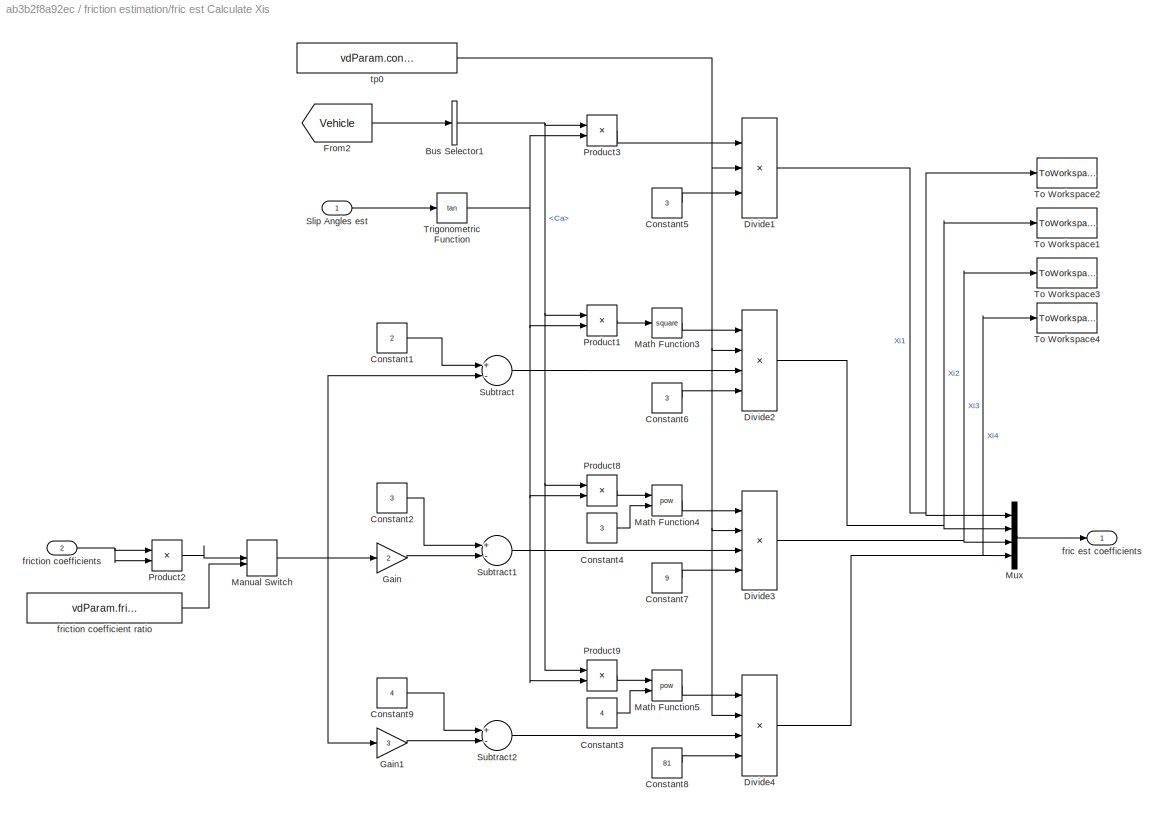
BLOCK [SubSystem] friction estimation/fric est Calculate Xis
  Ports = [2, 1]
  RequestExecContextInheritance = off
BLOCK [BusSelector] friction estimation/fric est Calculate Xis/Bus Selector1
  OutputAsBus = off
  OutputSignals = Ca
  Ports = [1, 1]
BLOCK [Constant] friction estimation/fric est Calculate Xis/Constant1
  Value = 2
BLOCK [Constant] friction estimation/fric est Calculate Xis/Constant2
  Value = 3
BLOCK [Constant] friction estimation/fric est Calculate Xis/Constant3
  Value = 4
BLOCK [Constant] friction estimation/fric est Calculate Xis/Constant4
  Value = 3
BLOCK [Constant] friction estimation/fric est Calculate Xis/Constant5
  Value = 3
BLOCK [Constant] friction estimation/fric est Calculate Xis/Constant6
  Value = 3
BLOCK [Constant] friction estimation/fric est Calculate Xis/Constant7
  Value = 9
BLOCK [Constant] friction estimation/fric est Calculate Xis/Constant8
  Value = 81
BLOCK [Constant] friction estimation/fric est Calculate Xis/Constant9
  Value = 4
BLOCK [Product] friction estimation/fric est Calculate Xis/Divide1
  InputSameDT = off
  Inputs = **/
  OutDataTypeStr = Inherit: Inherit via internal rule
  Ports = [3, 1]
  RndMeth = Floor
  SaturateOnIntegerOverflow = off
BLOCK [Product] friction estimation/fric est Calculate Xis/Divide2
  InputSameDT = off
  Inputs = ***/
  OutDataTypeStr = Inherit: Inherit via internal rule
  Ports = [4, 1]
  RndMeth = Floor
  SaturateOnIntegerOverflow = off
BLOCK [Product] friction estimation/fric est Calculate Xis/Divide3
  InputSameDT = off
  Inputs = ***/
  OutDataTypeStr = Inherit: Inherit via internal rule
  Ports = [4, 1]
  RndMeth = Floor
  SaturateOnIntegerOverflow = off
BLOCK [Product] friction estimation/fric est Calculate Xis/Divide4
  InputSameDT = off
  Inputs = ***/
  OutDataTypeStr = Inherit: Inherit via internal rule
  Ports = [4, 1]
  RndMeth = Floor
  SaturateOnIntegerOverflow = off
BLOCK [From] friction estimation/fric est Calculate Xis/From2
  GotoTag = Vehicle
  TagVisibility = global
BLOCK [Gain] friction estimation/fric est Calculate Xis/Gain
  Gain = 2
  OutDataTypeStr = Inherit: Inherit via internal rule
  ParamDataTypeStr = Inherit: Inherit via internal rule
  SaturateOnIntegerOverflow = off
BLOCK [Gain] friction estimation/fric est Calculate Xis/Gain1
  Gain = 3
  OutDataTypeStr = Inherit: Inherit via internal rule
  ParamDataTypeStr = Inherit: Inherit via internal rule
  SaturateOnIntegerOverflow = off
BLOCK [ManualSwitch] friction estimation/fric est Calculate Xis/Manual Switch
  CurrentSetting = 0
BLOCK [Math] friction estimation/fric est Calculate Xis/Math Function3
  Operator = square
  Ports = [1, 1]
BLOCK [Math] friction estimation/fric est Calculate Xis/Math Function4
  Operator = pow
  Ports = [2, 1]
  SignedPower = off
BLOCK [Math] friction estimation/fric est Calculate Xis/Math Function5
  Operator = pow
  Ports = [2, 1]
  SignedPower = off
BLOCK [Mux] friction estimation/fric est Calculate Xis/Mux
  DisplayOption = bar
  Ports = [4, 1]
BLOCK [Product] friction estimation/fric est Calculate Xis/Product1
  InputSameDT = off
  OutDataTypeStr = Inherit: Inherit via internal rule
  Ports = [2, 1]
  SaturateOnIntegerOverflow = off
BLOCK [Product] friction estimation/fric est Calculate Xis/Product2
  InputSameDT = off
  Inputs = */
  OutDataTypeStr = Inherit: Inherit via internal rule
  Ports = [2, 1]
  SaturateOnIntegerOverflow = off
BLOCK [Product] friction estimation/fric est Calculate Xis/Product3
  InputSameDT = off
  OutDataTypeStr = Inherit: Inherit via internal rule
  Ports = [2, 1]
  SaturateOnIntegerOverflow = off
BLOCK [Product] friction estimation/fric est Calculate Xis/Product8
  InputSameDT = off
  OutDataTypeStr = Inherit: Inherit via internal rule
  Ports = [2, 1]
  SaturateOnIntegerOverflow = off
BLOCK [Product] friction estimation/fric est Calculate Xis/Product9
  InputSameDT = off
  OutDataTypeStr = Inherit: Inherit via internal rule
  Ports = [2, 1]
  SaturateOnIntegerOverflow = off
BLOCK [Inport] friction estimation/fric est Calculate Xis/Slip Angles est
  IconDisplay = Port number
BLOCK [Sum] friction estimation/fric est Calculate Xis/Subtract
  InputSameDT = off
  Inputs = +-
  OutDataTypeStr = Inherit: Inherit via internal rule
  Ports = [2, 1]
  SaturateOnIntegerOverflow = off
BLOCK [Sum] friction estimation/fric est Calculate Xis/Subtract1
  InputSameDT = off
  Inputs = +-
  OutDataTypeStr = Inherit: Inherit via internal rule
  Ports = [2, 1]
  SaturateOnIntegerOverflow = off
BLOCK [Sum] friction estimation/fric est Calculate Xis/Subtract2
  InputSameDT = off
  Inputs = +-
  OutDataTypeStr = Inherit: Inherit via internal rule
  Ports = [2, 1]
  SaturateOnIntegerOverflow = off
BLOCK [ToWorkspace] friction estimation/fric est Calculate Xis/To Workspace1
  MaxDataPoints = inf
  Ports = [1]
  SampleTime = -1
  VariableName = Xi2_est
BLOCK [ToWorkspace] friction estimation/fric est Calculate Xis/To Workspace2
  MaxDataPoints = inf
  Ports = [1]
  SampleTime = -1
  VariableName = Xi1_est
BLOCK [ToWorkspace] friction estimation/fric est Calculate Xis/To Workspace3
  MaxDataPoints = inf
  Ports = [1]
  SampleTime = -1
  VariableName = Xi3_est
BLOCK [ToWorkspace] friction estimation/fric est Calculate Xis/To Workspace4
  MaxDataPoints = inf
  Ports = [1]
  SampleTime = -1
  VariableName = Xi4_est
BLOCK [Trigonometry] friction estimation/fric est Calculate Xis/Trigonometric Function
  Operator = tan
  Ports = [1, 1]
BLOCK [Outport] friction estimation/fric est Calculate Xis/fric est coefficients
  IconDisplay = Port number
BLOCK [Constant] friction estimation/fric est Calculate Xis/friction coefficient ratio
  Value = vdParam.frictionCoefficientRatio
BLOCK [Inport] friction estimation/fric est Calculate Xis/friction coefficients
  IconDisplay = Port number
  Port = 2
BLOCK [Constant] friction estimation/fric est Calculate Xis/tp0
  Value = vdParam.contactPatchLength
BLOCK [Inport] friction estimation/road properties
  IconDisplay = Port number
BLOCK [Inport] friction estimation/steering angle
  IconDisplay = Port number
  Port = 2
BLOCK [SubSystem] road properties
  Ports = [0, 1]
  RequestExecContextInheritance = off
BLOCK [BusCreator] road properties/Bus Creator1
  DisplayOption = bar
  InheritFromInputs = on
  Inputs = 3
  Ports = [3, 1]
BLOCK [BusCreator] road properties/Bus Creator2
  DisplayOption = bar
  InheritFromInputs = on
  Inputs = 2
  Ports = [2, 1]
BLOCK [Constant] road properties/Constant1
  Value = road_properties.grade
BLOCK [Constant] road properties/Constant19
  Value = road_properties.bank_angle
BLOCK [Constant] road properties/Constant3
  Value = 0
BLOCK [Constant] road properties/Constant4
  Value = friction_coefficient
BLOCK [Outport] road properties/road properties
  IconDisplay = Port number
BLOCK [Goto] vehicle properties
  GotoTag = Vehicle
  TagVisibility = global
ANNOTATION Bicycle Model/Brush Model/Aligning Moment_Brush Model: Saturation Test
ANNOTATION Bicycle Model/Brush Model/Tire Forces_Brush Model: [1] J. Svendenius, “Tire Modeling and Friction Estimation,” Control , p. 194, 2007. chapter2.4 and chapter4 [2] M. Kissai et al. , “A new linear tire model with varying parameters To cite this version : HAL Id : hal-01690792 A New Linear Tire Model With Varying Parameters,” 2018.
ANNOTATION Bicycle Model/Brush Model/Tire Forces_Brush Model: ISO Coordinate System
ANNOTATION Bicycle Model/Slips/Slip Angle: ISO Coordinate System
ANNOTATION Bicycle Model/Slips/Wheel Slip Ratio/Wheel Slip: κ>0, acceleration→ positive Fx κ<0, braking → negative Fx
ANNOTATION Bicycle Model/Slips/Wheel Slip Ratio/vehicle2tire: ISO Coordinate System
ANNOTATION Bicycle Model/Vehicle Body Newtonian Dynamics/Wheel to Body Transform: ISO Coordinate Transform
ANNOTATION friction estimation/Slip Angle: ISO Coordinate System
LINE Bicycle Model/Brush Model/Aligning Moment_Brush Model/Abs:1 -> Bicycle Model/Brush Model/Aligning Moment_Brush Model/Subtract:2
LINE Bicycle Model/Brush Model/Aligning Moment_Brush Model/Bus Selector1:1 -> Bicycle Model/Brush Model/Aligning Moment_Brush Model/Trigonometric Function1:1
LINE Bicycle Model/Brush Model/Aligning Moment_Brush Model/Bus Selector2:1 -> Bicycle Model/Brush Model/Aligning Moment_Brush Model/Product3:1
NET Bicycle Model/Brush Model/Aligning Moment_Brush Model/Bus Selector3:1 -> Bicycle Model/Brush Model/Aligning Moment_Brush Model/Product2:1, Bicycle Model/Brush Model/Aligning Moment_Brush Model/Product2:2
LINE Bicycle Model/Brush Model/Aligning Moment_Brush Model/Bus Selector4:1 -> Bicycle Model/Brush Model/Aligning Moment_Brush Model/Trigonometric Function:1
NET Bicycle Model/Brush Model/Aligning Moment_Brush Model/Bus Selector5:1 -> Bicycle Model/Brush Model/Aligning Moment_Brush Model/Divide4:2, Bicycle Model/Brush Model/Aligning Moment_Brush Model/Gain:1
LINE Bicycle Model/Brush Model/Aligning Moment_Brush Model/Bus Selector:1 -> Bicycle Model/Brush Model/Aligning Moment_Brush Model/Divide1:2
LINE Bicycle Model/Brush Model/Aligning Moment_Brush Model/Constant10:1 -> Bicycle Model/Brush Model/Aligning Moment_Brush Model/Subtract4:1
LINE Bicycle Model/Brush Model/Aligning Moment_Brush Model/Constant1:1 -> Bicycle Model/Brush Model/Aligning Moment_Brush Model/Math Function6:2
LINE Bicycle Model/Brush Model/Aligning Moment_Brush Model/Constant2:1 -> Bicycle Model/Brush Model/Aligning Moment_Brush Model/Subtract2:1
LINE Bicycle Model/Brush Model/Aligning Moment_Brush Model/Constant3:1 -> Bicycle Model/Brush Model/Aligning Moment_Brush Model/Math Function5:2
LINE Bicycle Model/Brush Model/Aligning Moment_Brush Model/Constant4:1 -> Bicycle Model/Brush Model/Aligning Moment_Brush Model/Math Function4:2
LINE Bicycle Model/Brush Model/Aligning Moment_Brush Model/Constant5:1 -> Bicycle Model/Brush Model/Aligning Moment_Brush Model/Divide:3
LINE Bicycle Model/Brush Model/Aligning Moment_Brush Model/Constant6:1 -> Bicycle Model/Brush Model/Aligning Moment_Brush Model/Divide2:4
LINE Bicycle Model/Brush Model/Aligning Moment_Brush Model/Constant7:1 -> Bicycle Model/Brush Model/Aligning Moment_Brush Model/Divide6:4
LINE Bicycle Model/Brush Model/Aligning Moment_Brush Model/Constant8:1 -> Bicycle Model/Brush Model/Aligning Moment_Brush Model/Divide7:4
LINE Bicycle Model/Brush Model/Aligning Moment_Brush Model/Constant9:1 -> Bicycle Model/Brush Model/Aligning Moment_Brush Model/Subtract3:1
LINE Bicycle Model/Brush Model/Aligning Moment_Brush Model/Constant:1 -> Bicycle Model/Brush Model/Aligning Moment_Brush Model/Math Function1:2
LINE Bicycle Model/Brush Model/Aligning Moment_Brush Model/Divide1:1 -> Bicycle Model/Brush Model/Aligning Moment_Brush Model/Subtract:1
LINE Bicycle Model/Brush Model/Aligning Moment_Brush Model/Divide2:1 -> Bicycle Model/Brush Model/Aligning Moment_Brush Model/Divide3:1
LINE Bicycle Model/Brush Model/Aligning Moment_Brush Model/Divide3:1 -> Bicycle Model/Brush Model/Aligning Moment_Brush Model/Subtract1:2
NET Bicycle Model/Brush Model/Aligning Moment_Brush Model/Divide4:1 -> Bicycle Model/Brush Model/Aligning Moment_Brush Model/Divide3:2, Bicycle Model/Brush Model/Aligning Moment_Brush Model/Math Function1:1, Bicycle Model/Brush Model/Aligning Moment_Brush Model/Math Function6:1
LINE Bicycle Model/Brush Model/Aligning Moment_Brush Model/Divide5:1 -> Bicycle Model/Brush Model/Aligning Moment_Brush Model/Subtract1:3
LINE Bicycle Model/Brush Model/Aligning Moment_Brush Model/Divide6:1 -> Bicycle Model/Brush Model/Aligning Moment_Brush Model/Divide5:1
LINE Bicycle Model/Brush Model/Aligning Moment_Brush Model/Divide7:1 -> Bicycle Model/Brush Model/Aligning Moment_Brush Model/Divide8:1
LINE Bicycle Model/Brush Model/Aligning Moment_Brush Model/Divide8:1 -> Bicycle Model/Brush Model/Aligning Moment_Brush Model/Subtract1:4
LINE Bicycle Model/Brush Model/Aligning Moment_Brush Model/Divide:1 -> Bicycle Model/Brush Model/Aligning Moment_Brush Model/Subtract1:1
LINE Bicycle Model/Brush Model/Aligning Moment_Brush Model/Friction Coefficients1:1 -> Bicycle Model/Brush Model/Aligning Moment_Brush Model/Bus Selector3:1
LINE Bicycle Model/Brush Model/Aligning Moment_Brush Model/Friction Coefficients:1 -> Bicycle Model/Brush Model/Aligning Moment_Brush Model/Bus Selector5:1
LINE Bicycle Model/Brush Model/Aligning Moment_Brush Model/From2:1 -> Bicycle Model/Brush Model/Aligning Moment_Brush Model/Bus Selector2:1
LINE Bicycle Model/Brush Model/Aligning Moment_Brush Model/From:1 -> Bicycle Model/Brush Model/Aligning Moment_Brush Model/Bus Selector:1
LINE Bicycle Model/Brush Model/Aligning Moment_Brush Model/Gain1:1 -> Bicycle Model/Brush Model/Aligning Moment_Brush Model/Subtract3:2
LINE Bicycle Model/Brush Model/Aligning Moment_Brush Model/Gain2:1 -> Bicycle Model/Brush Model/Aligning Moment_Brush Model/Subtract4:2
LINE Bicycle Model/Brush Model/Aligning Moment_Brush Model/Gain:1 -> Bicycle Model/Brush Model/Aligning Moment_Brush Model/Product:2
LINE Bicycle Model/Brush Model/Aligning Moment_Brush Model/Math Function1:1 -> Bicycle Model/Brush Model/Aligning Moment_Brush Model/Divide5:2
LINE Bicycle Model/Brush Model/Aligning Moment_Brush Model/Math Function3:1 -> Bicycle Model/Brush Model/Aligning Moment_Brush Model/Divide2:1
LINE Bicycle Model/Brush Model/Aligning Moment_Brush Model/Math Function4:1 -> Bicycle Model/Brush Model/Aligning Moment_Brush Model/Divide6:1
LINE Bicycle Model/Brush Model/Aligning Moment_Brush Model/Math Function5:1 -> Bicycle Model/Brush Model/Aligning Moment_Brush Model/Divide7:1
LINE Bicycle Model/Brush Model/Aligning Moment_Brush Model/Math Function6:1 -> Bicycle Model/Brush Model/Aligning Moment_Brush Model/Divide8:2
LINE Bicycle Model/Brush Model/Aligning Moment_Brush Model/Normal Forces2:1 -> Bicycle Model/Brush Model/Aligning Moment_Brush Model/Divide4:1
LINE Bicycle Model/Brush Model/Aligning Moment_Brush Model/Normal Forces:1 -> Bicycle Model/Brush Model/Aligning Moment_Brush Model/Product:1
NET Bicycle Model/Brush Model/Aligning Moment_Brush Model/Product2:1 -> Bicycle Model/Brush Model/Aligning Moment_Brush Model/Gain1:1, Bicycle Model/Brush Model/Aligning Moment_Brush Model/Gain2:1, Bicycle Model/Brush Model/Aligning Moment_Brush Model/Subtract2:2
NET Bicycle Model/Brush Model/Aligning Moment_Brush Model/Product3:1 -> Bicycle Model/Brush Model/Aligning Moment_Brush Model/Divide:1, Bicycle Model/Brush Model/Aligning Moment_Brush Model/Math Function3:1, Bicycle Model/Brush Model/Aligning Moment_Brush Model/Math Function4:1, Bicycle Model/Brush Model/Aligning Moment_Brush Model/Math Function5:1
LINE Bicycle Model/Brush Model/Aligning Moment_Brush Model/Product:1 -> Bicycle Model/Brush Model/Aligning Moment_Brush Model/Divide1:1
LINE Bicycle Model/Brush Model/Aligning Moment_Brush Model/Saturated Moment Value:1 -> Bicycle Model/Brush Model/Aligning Moment_Brush Model/Switch:3
LINE Bicycle Model/Brush Model/Aligning Moment_Brush Model/Slip Angles :1 -> Bicycle Model/Brush Model/Aligning Moment_Brush Model/Bus Selector1:1
LINE Bicycle Model/Brush Model/Aligning Moment_Brush Model/Slip Angles:1 -> Bicycle Model/Brush Model/Aligning Moment_Brush Model/Bus Selector4:1
LINE Bicycle Model/Brush Model/Aligning Moment_Brush Model/Subtract1:1 -> Bicycle Model/Brush Model/Aligning Moment_Brush Model/Switch:1
LINE Bicycle Model/Brush Model/Aligning Moment_Brush Model/Subtract2:1 -> Bicycle Model/Brush Model/Aligning Moment_Brush Model/Divide2:3
LINE Bicycle Model/Brush Model/Aligning Moment_Brush Model/Subtract3:1 -> Bicycle Model/Brush Model/Aligning Moment_Brush Model/Divide6:3
LINE Bicycle Model/Brush Model/Aligning Moment_Brush Model/Subtract4:1 -> Bicycle Model/Brush Model/Aligning Moment_Brush Model/Divide7:3
LINE Bicycle Model/Brush Model/Aligning Moment_Brush Model/Subtract:1 -> Bicycle Model/Brush Model/Aligning Moment_Brush Model/Switch:2
NET Bicycle Model/Brush Model/Aligning Moment_Brush Model/Switch:1 -> Bicycle Model/Brush Model/Aligning Moment_Brush Model/Aligning Moment:1, Bicycle Model/Brush Model/Aligning Moment_Brush Model/To Workspace9:1
LINE Bicycle Model/Brush Model/Aligning Moment_Brush Model/Trigonometric Function1:1 -> Bicycle Model/Brush Model/Aligning Moment_Brush Model/Abs:1
LINE Bicycle Model/Brush Model/Aligning Moment_Brush Model/Trigonometric Function:1 -> Bicycle Model/Brush Model/Aligning Moment_Brush Model/Product3:2
NET Bicycle Model/Brush Model/Aligning Moment_Brush Model/tp0:1 -> Bicycle Model/Brush Model/Aligning Moment_Brush Model/Divide2:2, Bicycle Model/Brush Model/Aligning Moment_Brush Model/Divide6:2, Bicycle Model/Brush Model/Aligning Moment_Brush Model/Divide7:2, Bicycle Model/Brush Model/Aligning Moment_Brush Model/Divide:2
LINE Bicycle Model/Brush Model/Aligning Moment_Brush Model:1 -> Bicycle Model/Brush Model/Aligning Moment:1
NET Bicycle Model/Brush Model/Normal Forces:1 -> Bicycle Model/Brush Model/Aligning Moment_Brush Model:2, Bicycle Model/Brush Model/Tire Forces_Brush Model:2
NET Bicycle Model/Brush Model/Road Friction:1 -> Bicycle Model/Brush Model/Aligning Moment_Brush Model:3, Bicycle Model/Brush Model/Tire Forces_Brush Model:3
NET Bicycle Model/Brush Model/Slips:1 -> Bicycle Model/Brush Model/Aligning Moment_Brush Model:1, Bicycle Model/Brush Model/Tire Forces_Brush Model:1
NET Bicycle Model/Brush Model/Tire Forces_Brush Model/Bus Selector2:1 -> Bicycle Model/Brush Model/Tire Forces_Brush Model/Wheel Forces:1, Bicycle Model/Brush Model/Tire Forces_Brush Model/tire slip:1
LINE Bicycle Model/Brush Model/Tire Forces_Brush Model/Constant3:1 -> Bicycle Model/Brush Model/Tire Forces_Brush Model/Switch1:1
NET Bicycle Model/Brush Model/Tire Forces_Brush Model/Normal Forces:1 -> Bicycle Model/Brush Model/Tire Forces_Brush Model/Wheel Forces:2, Bicycle Model/Brush Model/Tire Forces_Brush Model/tire slip:2
LINE Bicycle Model/Brush Model/Tire Forces_Brush Model/Slips:1 -> Bicycle Model/Brush Model/Tire Forces_Brush Model/tire slip:3
LINE Bicycle Model/Brush Model/Tire Forces_Brush Model/Switch1:1 -> Bicycle Model/Brush Model/Tire Forces_Brush Model/Wheel Forces:6
LINE Bicycle Model/Brush Model/Tire Forces_Brush Model/Wheel Forces/Add1:1 -> Bicycle Model/Brush Model/Tire Forces_Brush Model/Wheel Forces/Product2:2
LINE Bicycle Model/Brush Model/Tire Forces_Brush Model/Wheel Forces/Add:1 -> Bicycle Model/Brush Model/Tire Forces_Brush Model/Wheel Forces/Product3:1
LINE Bicycle Model/Brush Model/Tire Forces_Brush Model/Wheel Forces/Anti-Divide by Zero/Add:1 -> Bicycle Model/Brush Model/Tire Forces_Brush Model/Wheel Forces/Anti-Divide by Zero/Out1:1
LINE Bicycle Model/Brush Model/Tire Forces_Brush Model/Wheel Forces/Anti-Divide by Zero/Compare To Zero:1 -> Bicycle Model/Brush Model/Tire Forces_Brush Model/Wheel Forces/Anti-Divide by Zero/Product:1
LINE Bicycle Model/Brush Model/Tire Forces_Brush Model/Wheel Forces/Anti-Divide by Zero/Constant:1 -> Bicycle Model/Brush Model/Tire Forces_Brush Model/Wheel Forces/Anti-Divide by Zero/Product:2
NET Bicycle Model/Brush Model/Tire Forces_Brush Model/Wheel Forces/Anti-Divide by Zero/In1:1 -> Bicycle Model/Brush Model/Tire Forces_Brush Model/Wheel Forces/Anti-Divide by Zero/Add:1, Bicycle Model/Brush Model/Tire Forces_Brush Model/Wheel Forces/Anti-Divide by Zero/Compare To Zero:1
LINE Bicycle Model/Brush Model/Tire Forces_Brush Model/Wheel Forces/Anti-Divide by Zero/Product:1 -> Bicycle Model/Brush Model/Tire Forces_Brush Model/Wheel Forces/Anti-Divide by Zero/Add:2
LINE Bicycle Model/Brush Model/Tire Forces_Brush Model/Wheel Forces/Anti-Divide by Zero:1 -> Bicycle Model/Brush Model/Tire Forces_Brush Model/Wheel Forces/Product:5
LINE Bicycle Model/Brush Model/Tire Forces_Brush Model/Wheel Forces/Bias1:1 -> Bicycle Model/Brush Model/Tire Forces_Brush Model/Wheel Forces/Product:1
LINE Bicycle Model/Brush Model/Tire Forces_Brush Model/Wheel Forces/Bias:1 -> Bicycle Model/Brush Model/Tire Forces_Brush Model/Wheel Forces/Square1:1
LINE Bicycle Model/Brush Model/Tire Forces_Brush Model/Wheel Forces/Bus Creator1:1 -> Bicycle Model/Brush Model/Tire Forces_Brush Model/Wheel Forces/Tire Forces:1
LINE Bicycle Model/Brush Model/Tire Forces_Brush Model/Wheel Forces/Bus Selector5:1 -> Bicycle Model/Brush Model/Tire Forces_Brush Model/Wheel Forces/Product1:1
LINE Bicycle Model/Brush Model/Tire Forces_Brush Model/Wheel Forces/Bus Selector5:2 -> Bicycle Model/Brush Model/Tire Forces_Brush Model/Wheel Forces/Product11:1
LINE Bicycle Model/Brush Model/Tire Forces_Brush Model/Wheel Forces/From1:1 -> Bicycle Model/Brush Model/Tire Forces_Brush Model/Wheel Forces/Bus Selector5:1
LINE Bicycle Model/Brush Model/Tire Forces_Brush Model/Wheel Forces/Gain1:1 -> Bicycle Model/Brush Model/Tire Forces_Brush Model/Wheel Forces/Bias1:1
LINE Bicycle Model/Brush Model/Tire Forces_Brush Model/Wheel Forces/Gain:1 -> Bicycle Model/Brush Model/Tire Forces_Brush Model/Wheel Forces/Bias:1
LINE Bicycle Model/Brush Model/Tire Forces_Brush Model/Wheel Forces/Product11:1 -> Bicycle Model/Brush Model/Tire Forces_Brush Model/Wheel Forces/Add:1
LINE Bicycle Model/Brush Model/Tire Forces_Brush Model/Wheel Forces/Product1:1 -> Bicycle Model/Brush Model/Tire Forces_Brush Model/Wheel Forces/Add1:1
NET Bicycle Model/Brush Model/Tire Forces_Brush Model/Wheel Forces/Product2:1 -> Bicycle Model/Brush Model/Tire Forces_Brush Model/Wheel Forces/Bus Creator1:1, Bicycle Model/Brush Model/Tire Forces_Brush Model/Wheel Forces/To Workspace8:1
NET Bicycle Model/Brush Model/Tire Forces_Brush Model/Wheel Forces/Product3:1 -> Bicycle Model/Brush Model/Tire Forces_Brush Model/Wheel Forces/Bus Creator1:2, Bicycle Model/Brush Model/Tire Forces_Brush Model/Wheel Forces/To Workspace9:1
NET Bicycle Model/Brush Model/Tire Forces_Brush Model/Wheel Forces/Product:1 -> Bicycle Model/Brush Model/Tire Forces_Brush Model/Wheel Forces/Add1:2, Bicycle Model/Brush Model/Tire Forces_Brush Model/Wheel Forces/Add:2
NET Bicycle Model/Brush Model/Tire Forces_Brush Model/Wheel Forces/Psi_Tire:1 -> Bicycle Model/Brush Model/Tire Forces_Brush Model/Wheel Forces/Gain1:1, Bicycle Model/Brush Model/Tire Forces_Brush Model/Wheel Forces/Gain:1, Bicycle Model/Brush Model/Tire Forces_Brush Model/Wheel Forces/Square:1
NET Bicycle Model/Brush Model/Tire Forces_Brush Model/Wheel Forces/Square1:1 -> Bicycle Model/Brush Model/Tire Forces_Brush Model/Wheel Forces/Product11:2, Bicycle Model/Brush Model/Tire Forces_Brush Model/Wheel Forces/Product1:2
LINE Bicycle Model/Brush Model/Tire Forces_Brush Model/Wheel Forces/Square:1 -> Bicycle Model/Brush Model/Tire Forces_Brush Model/Wheel Forces/Product:2
LINE Bicycle Model/Brush Model/Tire Forces_Brush Model/Wheel Forces/normal force:1 -> Bicycle Model/Brush Model/Tire Forces_Brush Model/Wheel Forces/Product:4
LINE Bicycle Model/Brush Model/Tire Forces_Brush Model/Wheel Forces/sigma:1 -> Bicycle Model/Brush Model/Tire Forces_Brush Model/Wheel Forces/Anti-Divide by Zero:1
LINE Bicycle Model/Brush Model/Tire Forces_Brush Model/Wheel Forces/sigma_x:1 -> Bicycle Model/Brush Model/Tire Forces_Brush Model/Wheel Forces/Product3:2
LINE Bicycle Model/Brush Model/Tire Forces_Brush Model/Wheel Forces/sigma_y:1 -> Bicycle Model/Brush Model/Tire Forces_Brush Model/Wheel Forces/Product2:1
LINE Bicycle Model/Brush Model/Tire Forces_Brush Model/Wheel Forces/sliding friction:1 -> Bicycle Model/Brush Model/Tire Forces_Brush Model/Wheel Forces/Product:3
LINE Bicycle Model/Brush Model/Tire Forces_Brush Model/Wheel Forces:1 -> Bicycle Model/Brush Model/Tire Forces_Brush Model/Tire Forces:1
LINE Bicycle Model/Brush Model/Tire Forces_Brush Model/road friction:1 -> Bicycle Model/Brush Model/Tire Forces_Brush Model/Bus Selector2:1
LINE Bicycle Model/Brush Model/Tire Forces_Brush Model/tire slip/Abs:1 -> Bicycle Model/Brush Model/Tire Forces_Brush Model/tire slip/Product2:2
LINE Bicycle Model/Brush Model/Tire Forces_Brush Model/tire slip/Add1:1 -> Bicycle Model/Brush Model/Tire Forces_Brush Model/tire slip/Sqrt1:1
LINE Bicycle Model/Brush Model/Tire Forces_Brush Model/tire slip/Add2:1 -> Bicycle Model/Brush Model/Tire Forces_Brush Model/tire slip/Sqrt2:1
LINE Bicycle Model/Brush Model/Tire Forces_Brush Model/tire slip/Anti-Divide by Zero/Add:1 -> Bicycle Model/Brush Model/Tire Forces_Brush Model/tire slip/Anti-Divide by Zero/Out1:1
LINE Bicycle Model/Brush Model/Tire Forces_Brush Model/tire slip/Anti-Divide by Zero/Compare To Zero:1 -> Bicycle Model/Brush Model/Tire Forces_Brush Model/tire slip/Anti-Divide by Zero/Product:1
LINE Bicycle Model/Brush Model/Tire Forces_Brush Model/tire slip/Anti-Divide by Zero/Constant:1 -> Bicycle Model/Brush Model/Tire Forces_Brush Model/tire slip/Anti-Divide by Zero/Product:2
NET Bicycle Model/Brush Model/Tire Forces_Brush Model/tire slip/Anti-Divide by Zero/In1:1 -> Bicycle Model/Brush Model/Tire Forces_Brush Model/tire slip/Anti-Divide by Zero/Add:1, Bicycle Model/Brush Model/Tire Forces_Brush Model/tire slip/Anti-Divide by Zero/Compare To Zero:1
LINE Bicycle Model/Brush Model/Tire Forces_Brush Model/tire slip/Anti-Divide by Zero/Product:1 -> Bicycle Model/Brush Model/Tire Forces_Brush Model/tire slip/Anti-Divide by Zero/Add:2
NET Bicycle Model/Brush Model/Tire Forces_Brush Model/tire slip/Anti-Divide by Zero:1 -> Bicycle Model/Brush Model/Tire Forces_Brush Model/tire slip/Divide5:2, Bicycle Model/Brush Model/Tire Forces_Brush Model/tire slip/Divide6:2
LINE Bicycle Model/Brush Model/Tire Forces_Brush Model/tire slip/Bias4:1 -> Bicycle Model/Brush Model/Tire Forces_Brush Model/tire slip/Anti-Divide by Zero:1
NET Bicycle Model/Brush Model/Tire Forces_Brush Model/tire slip/Bus Selector3:1 -> Bicycle Model/Brush Model/Tire Forces_Brush Model/tire slip/Bias4:1, Bicycle Model/Brush Model/Tire Forces_Brush Model/tire slip/Divide6:1
LINE Bicycle Model/Brush Model/Tire Forces_Brush Model/tire slip/Bus Selector5:1 -> Bicycle Model/Brush Model/Tire Forces_Brush Model/tire slip/Product12:2
LINE Bicycle Model/Brush Model/Tire Forces_Brush Model/tire slip/Bus Selector5:2 -> Bicycle Model/Brush Model/Tire Forces_Brush Model/tire slip/Product13:1
LINE Bicycle Model/Brush Model/Tire Forces_Brush Model/tire slip/Bus Selector6:1 -> Bicycle Model/Brush Model/Tire Forces_Brush Model/tire slip/Trigonometric Function1:1
LINE Bicycle Model/Brush Model/Tire Forces_Brush Model/tire slip/Constant7:1 -> Bicycle Model/Brush Model/Tire Forces_Brush Model/tire slip/Product10:1
NET Bicycle Model/Brush Model/Tire Forces_Brush Model/tire slip/Divide5:1 -> Bicycle Model/Brush Model/Tire Forces_Brush Model/tire slip/Pow2:1, Bicycle Model/Brush Model/Tire Forces_Brush Model/tire slip/Product12:1, Bicycle Model/Brush Model/Tire Forces_Brush Model/tire slip/sigma_y:1
NET Bicycle Model/Brush Model/Tire Forces_Brush Model/tire slip/Divide6:1 -> Bicycle Model/Brush Model/Tire Forces_Brush Model/tire slip/Pow1:1, Bicycle Model/Brush Model/Tire Forces_Brush Model/tire slip/Product13:2, Bicycle Model/Brush Model/Tire Forces_Brush Model/tire slip/sigma_x:1
LINE Bicycle Model/Brush Model/Tire Forces_Brush Model/tire slip/From3:1 -> Bicycle Model/Brush Model/Tire Forces_Brush Model/tire slip/Bus Selector5:1
LINE Bicycle Model/Brush Model/Tire Forces_Brush Model/tire slip/Pow1:1 -> Bicycle Model/Brush Model/Tire Forces_Brush Model/tire slip/Add2:2
LINE Bicycle Model/Brush Model/Tire Forces_Brush Model/tire slip/Pow2:1 -> Bicycle Model/Brush Model/Tire Forces_Brush Model/tire slip/Add2:1
LINE Bicycle Model/Brush Model/Tire Forces_Brush Model/tire slip/Pow6:1 -> Bicycle Model/Brush Model/Tire Forces_Brush Model/tire slip/Add1:1
LINE Bicycle Model/Brush Model/Tire Forces_Brush Model/tire slip/Pow7:1 -> Bicycle Model/Brush Model/Tire Forces_Brush Model/tire slip/Add1:2
LINE Bicycle Model/Brush Model/Tire Forces_Brush Model/tire slip/Product10:1 -> Bicycle Model/Brush Model/Tire Forces_Brush Model/tire slip/Abs:1
LINE Bicycle Model/Brush Model/Tire Forces_Brush Model/tire slip/Product12:1 -> Bicycle Model/Brush Model/Tire Forces_Brush Model/tire slip/Pow6:1
LINE Bicycle Model/Brush Model/Tire Forces_Brush Model/tire slip/Product13:1 -> Bicycle Model/Brush Model/Tire Forces_Brush Model/tire slip/Pow7:1
LINE Bicycle Model/Brush Model/Tire Forces_Brush Model/tire slip/Product2:1 -> Bicycle Model/Brush Model/Tire Forces_Brush Model/tire slip/Psi_Tire:1
NET Bicycle Model/Brush Model/Tire Forces_Brush Model/tire slip/Slips:1 -> Bicycle Model/Brush Model/Tire Forces_Brush Model/tire slip/Bus Selector3:1, Bicycle Model/Brush Model/Tire Forces_Brush Model/tire slip/Bus Selector6:1
LINE Bicycle Model/Brush Model/Tire Forces_Brush Model/tire slip/Sqrt1:1 -> Bicycle Model/Brush Model/Tire Forces_Brush Model/tire slip/Product2:1
LINE Bicycle Model/Brush Model/Tire Forces_Brush Model/tire slip/Sqrt2:1 -> Bicycle Model/Brush Model/Tire Forces_Brush Model/tire slip/sigma:1
LINE Bicycle Model/Brush Model/Tire Forces_Brush Model/tire slip/Trigonometric Function1:1 -> Bicycle Model/Brush Model/Tire Forces_Brush Model/tire slip/Divide5:1
LINE Bicycle Model/Brush Model/Tire Forces_Brush Model/tire slip/normal force:1 -> Bicycle Model/Brush Model/Tire Forces_Brush Model/tire slip/Product10:3
LINE Bicycle Model/Brush Model/Tire Forces_Brush Model/tire slip/peak friction:1 -> Bicycle Model/Brush Model/Tire Forces_Brush Model/tire slip/Product10:2
LINE Bicycle Model/Brush Model/Tire Forces_Brush Model/tire slip:1 -> Bicycle Model/Brush Model/Tire Forces_Brush Model/Wheel Forces:3
LINE Bicycle Model/Brush Model/Tire Forces_Brush Model/tire slip:2 -> Bicycle Model/Brush Model/Tire Forces_Brush Model/Wheel Forces:4
LINE Bicycle Model/Brush Model/Tire Forces_Brush Model/tire slip:3 -> Bicycle Model/Brush Model/Tire Forces_Brush Model/Wheel Forces:5
NET Bicycle Model/Brush Model/Tire Forces_Brush Model/tire slip:4 -> Bicycle Model/Brush Model/Tire Forces_Brush Model/Switch1:2, Bicycle Model/Brush Model/Tire Forces_Brush Model/Switch1:3
LINE Bicycle Model/Brush Model/Tire Forces_Brush Model:1 -> Bicycle Model/Brush Model/Tire Forces:1
LINE Bicycle Model/Brush Model:1 -> Bicycle Model/Aligning Moment:1
LINE Bicycle Model/Brush Model:2 -> Bicycle Model/Vehicle Body Newtonian Dynamics:1
LINE Bicycle Model/Normal Forces/Front:1 -> Bicycle Model/Normal Forces/Mux:1
LINE Bicycle Model/Normal Forces/Mux:1 -> Bicycle Model/Normal Forces/Normal Forces:1
LINE Bicycle Model/Normal Forces/Normal Force Longitudinal Transfer/Accelerations:1 -> Bicycle Model/Normal Forces/Normal Force Longitudinal Transfer/Bus Selector3:1
LINE Bicycle Model/Normal Forces/Normal Force Longitudinal Transfer/Bus Selector2:1 -> Bicycle Model/Normal Forces/Normal Force Longitudinal Transfer/Product2:2
LINE Bicycle Model/Normal Forces/Normal Force Longitudinal Transfer/Bus Selector2:2 -> Bicycle Model/Normal Forces/Normal Force Longitudinal Transfer/Divide1:1
LINE Bicycle Model/Normal Forces/Normal Force Longitudinal Transfer/Bus Selector2:3 -> Bicycle Model/Normal Forces/Normal Force Longitudinal Transfer/Divide1:2
LINE Bicycle Model/Normal Forces/Normal Force Longitudinal Transfer/Bus Selector3:1 -> Bicycle Model/Normal Forces/Normal Force Longitudinal Transfer/Delay:1
LINE Bicycle Model/Normal Forces/Normal Force Longitudinal Transfer/Compare To Constant:1 -> Bicycle Model/Normal Forces/Normal Force Longitudinal Transfer/Product3:1
LINE Bicycle Model/Normal Forces/Normal Force Longitudinal Transfer/Constant:1 -> Bicycle Model/Normal Forces/Normal Force Longitudinal Transfer/Compare To Constant:1
LINE Bicycle Model/Normal Forces/Normal Force Longitudinal Transfer/Delay:1 -> Bicycle Model/Normal Forces/Normal Force Longitudinal Transfer/Product2:1
LINE Bicycle Model/Normal Forces/Normal Force Longitudinal Transfer/Divide1:1 -> Bicycle Model/Normal Forces/Normal Force Longitudinal Transfer/Product1:2
LINE Bicycle Model/Normal Forces/Normal Force Longitudinal Transfer/From2:1 -> Bicycle Model/Normal Forces/Normal Force Longitudinal Transfer/Bus Selector2:1
LINE Bicycle Model/Normal Forces/Normal Force Longitudinal Transfer/Product1:1 -> Bicycle Model/Normal Forces/Normal Force Longitudinal Transfer/Long Transfer:1
LINE Bicycle Model/Normal Forces/Normal Force Longitudinal Transfer/Product2:1 -> Bicycle Model/Normal Forces/Normal Force Longitudinal Transfer/Product3:2
LINE Bicycle Model/Normal Forces/Normal Force Longitudinal Transfer/Product3:1 -> Bicycle Model/Normal Forces/Normal Force Longitudinal Transfer/Product1:1
NET Bicycle Model/Normal Forces/Normal Force Longitudinal Transfer:1 -> Bicycle Model/Normal Forces/Front:2, Bicycle Model/Normal Forces/Rear:2
LINE Bicycle Model/Normal Forces/Normal Force Static/ :1 -> Bicycle Model/Normal Forces/Normal Force Static/Static Front:1
LINE Bicycle Model/Normal Forces/Normal Force Static/Add:1 -> Bicycle Model/Normal Forces/Normal Force Static/Product1:2
LINE Bicycle Model/Normal Forces/Normal Force Static/Bus Selector1:1 -> Bicycle Model/Normal Forces/Normal Force Static/Product3:3
LINE Bicycle Model/Normal Forces/Normal Force Static/Bus Selector1:2 -> Bicycle Model/Normal Forces/Normal Force Static/Divide:2
LINE Bicycle Model/Normal Forces/Normal Force Static/Bus Selector1:3 -> Bicycle Model/Normal Forces/Normal Force Static/Product4:2
LINE Bicycle Model/Normal Forces/Normal Force Static/Bus Selector1:4 -> Bicycle Model/Normal Forces/Normal Force Static/Subtract:2
LINE Bicycle Model/Normal Forces/Normal Force Static/Bus Selector1:5 -> Bicycle Model/Normal Forces/Normal Force Static/Add:2
NET Bicycle Model/Normal Forces/Normal Force Static/Bus Selector:1 -> Bicycle Model/Normal Forces/Normal Force Static/Trigonometric Function1:1, Bicycle Model/Normal Forces/Normal Force Static/Trigonometric Function:1
NET Bicycle Model/Normal Forces/Normal Force Static/Divide:1 -> Bicycle Model/Normal Forces/Normal Force Static/ :1, Bicycle Model/Normal Forces/Normal Force Static/Product1:1
LINE Bicycle Model/Normal Forces/Normal Force Static/From1:1 -> Bicycle Model/Normal Forces/Normal Force Static/Bus Selector1:1
LINE Bicycle Model/Normal Forces/Normal Force Static/Product1:1 -> Bicycle Model/Normal Forces/Normal Force Static/Static Rear:1
LINE Bicycle Model/Normal Forces/Normal Force Static/Product3:1 -> Bicycle Model/Normal Forces/Normal Force Static/Divide:1
NET Bicycle Model/Normal Forces/Normal Force Static/Product4:1 -> Bicycle Model/Normal Forces/Normal Force Static/Add:1, Bicycle Model/Normal Forces/Normal Force Static/Subtract:1
LINE Bicycle Model/Normal Forces/Normal Force Static/Subtract:1 -> Bicycle Model/Normal Forces/Normal Force Static/ :2
LINE Bicycle Model/Normal Forces/Normal Force Static/Trigonometric Function1:1 -> Bicycle Model/Normal Forces/Normal Force Static/Product4:1
LINE Bicycle Model/Normal Forces/Normal Force Static/Trigonometric Function:1 -> Bicycle Model/Normal Forces/Normal Force Static/Product3:1
LINE Bicycle Model/Normal Forces/Normal Force Static/g:1 -> Bicycle Model/Normal Forces/Normal Force Static/Product3:2
LINE Bicycle Model/Normal Forces/Normal Force Static/road geometry:1 -> Bicycle Model/Normal Forces/Normal Force Static/Bus Selector:1
LINE Bicycle Model/Normal Forces/Normal Force Static:1 -> Bicycle Model/Normal Forces/Front:1
LINE Bicycle Model/Normal Forces/Normal Force Static:2 -> Bicycle Model/Normal Forces/Rear:1
LINE Bicycle Model/Normal Forces/Rear:1 -> Bicycle Model/Normal Forces/Mux:2
LINE Bicycle Model/Normal Forces/accelerations:1 -> Bicycle Model/Normal Forces/Normal Force Longitudinal Transfer:1
LINE Bicycle Model/Normal Forces/road geometry:1 -> Bicycle Model/Normal Forces/Normal Force Static:1
LINE Bicycle Model/Normal Forces:1 -> Bicycle Model/Brush Model:2
LINE Bicycle Model/Slips/Bus Creator:1 -> Bicycle Model/Slips/Slips:1
NET Bicycle Model/Slips/Bus Selector1:1 -> Bicycle Model/Slips/Slip Angle:1, Bicycle Model/Slips/Wheel Slip Ratio:2
NET Bicycle Model/Slips/Bus Selector2:1 -> Bicycle Model/Slips/Slip Angle:2, Bicycle Model/Slips/Wheel Slip Ratio:1
LINE Bicycle Model/Slips/Slip Angle/Add:1 -> Bicycle Model/Slips/Slip Angle/Trigonometric Function3:1
LINE Bicycle Model/Slips/Slip Angle/Bus Selector1:1 -> Bicycle Model/Slips/Slip Angle/Product1:1
LINE Bicycle Model/Slips/Slip Angle/Bus Selector1:2 -> Bicycle Model/Slips/Slip Angle/Product:1
NET Bicycle Model/Slips/Slip Angle/Bus Selector4:1 -> Bicycle Model/Slips/Slip Angle/Product1:2, Bicycle Model/Slips/Slip Angle/Product:2
LINE Bicycle Model/Slips/Slip Angle/Bus Selector4:2 -> Bicycle Model/Slips/Slip Angle/Subtract:2
LINE Bicycle Model/Slips/Slip Angle/Bus Selector6:1 -> Bicycle Model/Slips/Slip Angle/Add:1
NET Bicycle Model/Slips/Slip Angle/Bus Selector7:1 -> Bicycle Model/Slips/Slip Angle/Trigonometric Function1:2, Bicycle Model/Slips/Slip Angle/Trigonometric Function3:2
LINE Bicycle Model/Slips/Slip Angle/Demux:1 -> Bicycle Model/Slips/Slip Angle/Front:2
LINE Bicycle Model/Slips/Slip Angle/Demux:2 -> Bicycle Model/Slips/Slip Angle/Rear:1
LINE Bicycle Model/Slips/Slip Angle/From1:1 -> Bicycle Model/Slips/Slip Angle/Bus Selector1:1
LINE Bicycle Model/Slips/Slip Angle/Front:1 -> Bicycle Model/Slips/Slip Angle/Mux:1
LINE Bicycle Model/Slips/Slip Angle/Mux:1 -> Bicycle Model/Slips/Slip Angle/Slip Angles:1
LINE Bicycle Model/Slips/Slip Angle/Product1:1 -> Bicycle Model/Slips/Slip Angle/Add:2
LINE Bicycle Model/Slips/Slip Angle/Product:1 -> Bicycle Model/Slips/Slip Angle/Subtract:1
LINE Bicycle Model/Slips/Slip Angle/Rear:1 -> Bicycle Model/Slips/Slip Angle/Mux:2
LINE Bicycle Model/Slips/Slip Angle/Speeds1:1 -> Bicycle Model/Slips/Slip Angle/Bus Selector7:1
LINE Bicycle Model/Slips/Slip Angle/Speeds2:1 -> Bicycle Model/Slips/Slip Angle/Bus Selector6:1
LINE Bicycle Model/Slips/Slip Angle/Speeds:1 -> Bicycle Model/Slips/Slip Angle/Bus Selector4:1
LINE Bicycle Model/Slips/Slip Angle/Subtract:1 -> Bicycle Model/Slips/Slip Angle/Trigonometric Function1:1
LINE Bicycle Model/Slips/Slip Angle/Trigonometric Function1:1 -> Bicycle Model/Slips/Slip Angle/Rear:2
LINE Bicycle Model/Slips/Slip Angle/Trigonometric Function3:1 -> Bicycle Model/Slips/Slip Angle/Front:1
LINE Bicycle Model/Slips/Slip Angle/delta:1 -> Bicycle Model/Slips/Slip Angle/Demux:1
NET Bicycle Model/Slips/Slip Angle:1 -> Bicycle Model/Slips/Bus Creator:1, Bicycle Model/Slips/To Workspace:1
LINE Bicycle Model/Slips/Speeds:1 -> Bicycle Model/Slips/Bus Selector1:1
NET Bicycle Model/Slips/Wheel Slip Ratio/Speeds:1 -> Bicycle Model/Slips/Wheel Slip Ratio/Wheel Slip:2, Bicycle Model/Slips/Wheel Slip Ratio/vehicle2tire:2
LINE Bicycle Model/Slips/Wheel Slip Ratio/Wheel Slip/Anti-Divide by Zero/Add:1 -> Bicycle Model/Slips/Wheel Slip Ratio/Wheel Slip/Anti-Divide by Zero/Out1:1
LINE Bicycle Model/Slips/Wheel Slip Ratio/Wheel Slip/Anti-Divide by Zero/Compare To Zero:1 -> Bicycle Model/Slips/Wheel Slip Ratio/Wheel Slip/Anti-Divide by Zero/Product:1
LINE Bicycle Model/Slips/Wheel Slip Ratio/Wheel Slip/Anti-Divide by Zero/Constant:1 -> Bicycle Model/Slips/Wheel Slip Ratio/Wheel Slip/Anti-Divide by Zero/Product:2
NET Bicycle Model/Slips/Wheel Slip Ratio/Wheel Slip/Anti-Divide by Zero/In1:1 -> Bicycle Model/Slips/Wheel Slip Ratio/Wheel Slip/Anti-Divide by Zero/Add:1, Bicycle Model/Slips/Wheel Slip Ratio/Wheel Slip/Anti-Divide by Zero/Compare To Zero:1
LINE Bicycle Model/Slips/Wheel Slip Ratio/Wheel Slip/Anti-Divide by Zero/Product:1 -> Bicycle Model/Slips/Wheel Slip Ratio/Wheel Slip/Anti-Divide by Zero/Add:2
LINE Bicycle Model/Slips/Wheel Slip Ratio/Wheel Slip/Anti-Divide by Zero:1 -> Bicycle Model/Slips/Wheel Slip Ratio/Wheel Slip/Divide2:1
LINE Bicycle Model/Slips/Wheel Slip Ratio/Wheel Slip/Bus Selector2:1 -> Bicycle Model/Slips/Wheel Slip Ratio/Wheel Slip/Product2:2
LINE Bicycle Model/Slips/Wheel Slip Ratio/Wheel Slip/Bus Selector4:1 -> Bicycle Model/Slips/Wheel Slip Ratio/Wheel Slip/Product2:1
LINE Bicycle Model/Slips/Wheel Slip Ratio/Wheel Slip/Divide2:1 -> Bicycle Model/Slips/Wheel Slip Ratio/Wheel Slip/Switch1:1
LINE Bicycle Model/Slips/Wheel Slip Ratio/Wheel Slip/From2:1 -> Bicycle Model/Slips/Wheel Slip Ratio/Wheel Slip/Bus Selector2:1
LINE Bicycle Model/Slips/Wheel Slip Ratio/Wheel Slip/Product2:1 -> Bicycle Model/Slips/Wheel Slip Ratio/Wheel Slip/Subtract2:2
LINE Bicycle Model/Slips/Wheel Slip Ratio/Wheel Slip/Saturation:1 -> Bicycle Model/Slips/Wheel Slip Ratio/Wheel Slip/Wheel Slips:1
LINE Bicycle Model/Slips/Wheel Slip Ratio/Wheel Slip/Speeds:1 -> Bicycle Model/Slips/Wheel Slip Ratio/Wheel Slip/Bus Selector4:1
LINE Bicycle Model/Slips/Wheel Slip Ratio/Wheel Slip/Subtract2:1 -> Bicycle Model/Slips/Wheel Slip Ratio/Wheel Slip/Divide2:2
LINE Bicycle Model/Slips/Wheel Slip Ratio/Wheel Slip/Switch1:1 -> Bicycle Model/Slips/Wheel Slip Ratio/Wheel Slip/Saturation:1
NET Bicycle Model/Slips/Wheel Slip Ratio/Wheel Slip/Vx_tire:1 -> Bicycle Model/Slips/Wheel Slip Ratio/Wheel Slip/Anti-Divide by Zero:1, Bicycle Model/Slips/Wheel Slip Ratio/Wheel Slip/Subtract2:1, Bicycle Model/Slips/Wheel Slip Ratio/Wheel Slip/Switch1:2
LINE Bicycle Model/Slips/Wheel Slip Ratio/Wheel Slip/zero Wheel Slip:1 -> Bicycle Model/Slips/Wheel Slip Ratio/Wheel Slip/Switch1:3
LINE Bicycle Model/Slips/Wheel Slip Ratio/Wheel Slip:1 -> Bicycle Model/Slips/Wheel Slip Ratio/Wheel Slips:1
LINE Bicycle Model/Slips/Wheel Slip Ratio/delta:1 -> Bicycle Model/Slips/Wheel Slip Ratio/vehicle2tire:1
LINE Bicycle Model/Slips/Wheel Slip Ratio/vehicle2tire/Add2:1 -> Bicycle Model/Slips/Wheel Slip Ratio/vehicle2tire/Vx_tire:1
LINE Bicycle Model/Slips/Wheel Slip Ratio/vehicle2tire/Add:1 -> Bicycle Model/Slips/Wheel Slip Ratio/vehicle2tire/Mux1:1
LINE Bicycle Model/Slips/Wheel Slip Ratio/vehicle2tire/Bus Selector1:1 -> Bicycle Model/Slips/Wheel Slip Ratio/vehicle2tire/Product1:1
LINE Bicycle Model/Slips/Wheel Slip Ratio/vehicle2tire/Bus Selector1:2 -> Bicycle Model/Slips/Wheel Slip Ratio/vehicle2tire/Product:1
NET Bicycle Model/Slips/Wheel Slip Ratio/vehicle2tire/Bus Selector4:1 -> Bicycle Model/Slips/Wheel Slip Ratio/vehicle2tire/Product1:2, Bicycle Model/Slips/Wheel Slip Ratio/vehicle2tire/Product:2
NET Bicycle Model/Slips/Wheel Slip Ratio/vehicle2tire/Bus Selector4:2 -> Bicycle Model/Slips/Wheel Slip Ratio/vehicle2tire/Add:2, Bicycle Model/Slips/Wheel Slip Ratio/vehicle2tire/Subtract:2
NET Bicycle Model/Slips/Wheel Slip Ratio/vehicle2tire/Bus Selector7:1 -> Bicycle Model/Slips/Wheel Slip Ratio/vehicle2tire/Mux2:1, Bicycle Model/Slips/Wheel Slip Ratio/vehicle2tire/Mux2:2
LINE Bicycle Model/Slips/Wheel Slip Ratio/vehicle2tire/Cos:1 -> Bicycle Model/Slips/Wheel Slip Ratio/vehicle2tire/Product2:2
LINE Bicycle Model/Slips/Wheel Slip Ratio/vehicle2tire/From1:1 -> Bicycle Model/Slips/Wheel Slip Ratio/vehicle2tire/Bus Selector1:1
LINE Bicycle Model/Slips/Wheel Slip Ratio/vehicle2tire/Mux1:1 -> Bicycle Model/Slips/Wheel Slip Ratio/vehicle2tire/Product4:2
LINE Bicycle Model/Slips/Wheel Slip Ratio/vehicle2tire/Mux2:1 -> Bicycle Model/Slips/Wheel Slip Ratio/vehicle2tire/Product2:1
LINE Bicycle Model/Slips/Wheel Slip Ratio/vehicle2tire/Product1:1 -> Bicycle Model/Slips/Wheel Slip Ratio/vehicle2tire/Add:1
LINE Bicycle Model/Slips/Wheel Slip Ratio/vehicle2tire/Product2:1 -> Bicycle Model/Slips/Wheel Slip Ratio/vehicle2tire/Add2:1
LINE Bicycle Model/Slips/Wheel Slip Ratio/vehicle2tire/Product4:1 -> Bicycle Model/Slips/Wheel Slip Ratio/vehicle2tire/Add2:2
LINE Bicycle Model/Slips/Wheel Slip Ratio/vehicle2tire/Product:1 -> Bicycle Model/Slips/Wheel Slip Ratio/vehicle2tire/Subtract:1
LINE Bicycle Model/Slips/Wheel Slip Ratio/vehicle2tire/Sin:1 -> Bicycle Model/Slips/Wheel Slip Ratio/vehicle2tire/Product4:1
LINE Bicycle Model/Slips/Wheel Slip Ratio/vehicle2tire/Speeds1:1 -> Bicycle Model/Slips/Wheel Slip Ratio/vehicle2tire/Bus Selector7:1
LINE Bicycle Model/Slips/Wheel Slip Ratio/vehicle2tire/Speeds:1 -> Bicycle Model/Slips/Wheel Slip Ratio/vehicle2tire/Bus Selector4:1
LINE Bicycle Model/Slips/Wheel Slip Ratio/vehicle2tire/Subtract:1 -> Bicycle Model/Slips/Wheel Slip Ratio/vehicle2tire/Mux1:2
NET Bicycle Model/Slips/Wheel Slip Ratio/vehicle2tire/delta:1 -> Bicycle Model/Slips/Wheel Slip Ratio/vehicle2tire/Cos:1, Bicycle Model/Slips/Wheel Slip Ratio/vehicle2tire/Sin:1
LINE Bicycle Model/Slips/Wheel Slip Ratio/vehicle2tire:1 -> Bicycle Model/Slips/Wheel Slip Ratio/Wheel Slip:1
NET Bicycle Model/Slips/Wheel Slip Ratio:1 -> Bicycle Model/Slips/Bus Creator:2, Bicycle Model/Slips/To Workspace4:1
LINE Bicycle Model/Slips/steering angle:1 -> Bicycle Model/Slips/Bus Selector2:1
LINE Bicycle Model/Slips:1 -> Bicycle Model/Brush Model:1
NET Bicycle Model/States In:1 -> Bicycle Model/Normal Forces:1, Bicycle Model/Slips:1, Bicycle Model/Vehicle Body Newtonian Dynamics:3
LINE Bicycle Model/Vehicle Body Newtonian Dynamics/4 Wheel ax/Add2:1 -> Bicycle Model/Vehicle Body Newtonian Dynamics/4 Wheel ax/Divide2:2
LINE Bicycle Model/Vehicle Body Newtonian Dynamics/4 Wheel ax/Bank Angle:1 -> Bicycle Model/Vehicle Body Newtonian Dynamics/4 Wheel ax/cos:1
LINE Bicycle Model/Vehicle Body Newtonian Dynamics/4 Wheel ax/Bus Selector6:1 -> Bicycle Model/Vehicle Body Newtonian Dynamics/4 Wheel ax/Product10:4
LINE Bicycle Model/Vehicle Body Newtonian Dynamics/4 Wheel ax/Bus Selector7:1 -> Bicycle Model/Vehicle Body Newtonian Dynamics/4 Wheel ax/Divide2:1
LINE Bicycle Model/Vehicle Body Newtonian Dynamics/4 Wheel ax/Divide2:1 -> Bicycle Model/Vehicle Body Newtonian Dynamics/4 Wheel ax/ax:1
LINE Bicycle Model/Vehicle Body Newtonian Dynamics/4 Wheel ax/From6:1 -> Bicycle Model/Vehicle Body Newtonian Dynamics/4 Wheel ax/Bus Selector6:1
LINE Bicycle Model/Vehicle Body Newtonian Dynamics/4 Wheel ax/From7:1 -> Bicycle Model/Vehicle Body Newtonian Dynamics/4 Wheel ax/Bus Selector7:1
LINE Bicycle Model/Vehicle Body Newtonian Dynamics/4 Wheel ax/Fx :1 -> Bicycle Model/Vehicle Body Newtonian Dynamics/4 Wheel ax/Sum of Elements3:1
LINE Bicycle Model/Vehicle Body Newtonian Dynamics/4 Wheel ax/Product10:1 -> Bicycle Model/Vehicle Body Newtonian Dynamics/4 Wheel ax/Add2:1
LINE Bicycle Model/Vehicle Body Newtonian Dynamics/4 Wheel ax/Road Grade:1 -> Bicycle Model/Vehicle Body Newtonian Dynamics/4 Wheel ax/sin:1
LINE Bicycle Model/Vehicle Body Newtonian Dynamics/4 Wheel ax/Sum of Elements3:1 -> Bicycle Model/Vehicle Body Newtonian Dynamics/4 Wheel ax/Add2:2
LINE Bicycle Model/Vehicle Body Newtonian Dynamics/4 Wheel ax/cos:1 -> Bicycle Model/Vehicle Body Newtonian Dynamics/4 Wheel ax/Product10:2
LINE Bicycle Model/Vehicle Body Newtonian Dynamics/4 Wheel ax/g:1 -> Bicycle Model/Vehicle Body Newtonian Dynamics/4 Wheel ax/Product10:3
LINE Bicycle Model/Vehicle Body Newtonian Dynamics/4 Wheel ax/sin:1 -> Bicycle Model/Vehicle Body Newtonian Dynamics/4 Wheel ax/Product10:1
NET Bicycle Model/Vehicle Body Newtonian Dynamics/4 Wheel ax:1 -> Bicycle Model/Vehicle Body Newtonian Dynamics/Bus Creator2:1, Bicycle Model/Vehicle Body Newtonian Dynamics/Subtract3:1
LINE Bicycle Model/Vehicle Body Newtonian Dynamics/4 Wheel ay/Add:1 -> Bicycle Model/Vehicle Body Newtonian Dynamics/4 Wheel ay/Divide1:1
LINE Bicycle Model/Vehicle Body Newtonian Dynamics/4 Wheel ay/Bank Angle:1 -> Bicycle Model/Vehicle Body Newtonian Dynamics/4 Wheel ay/sin:1
LINE Bicycle Model/Vehicle Body Newtonian Dynamics/4 Wheel ay/Bus Selector2:1 -> Bicycle Model/Vehicle Body Newtonian Dynamics/4 Wheel ay/Divide1:2
LINE Bicycle Model/Vehicle Body Newtonian Dynamics/4 Wheel ay/Bus Selector5:1 -> Bicycle Model/Vehicle Body Newtonian Dynamics/4 Wheel ay/Product4:1
LINE Bicycle Model/Vehicle Body Newtonian Dynamics/4 Wheel ay/Divide1:1 -> Bicycle Model/Vehicle Body Newtonian Dynamics/4 Wheel ay/ay:1
LINE Bicycle Model/Vehicle Body Newtonian Dynamics/4 Wheel ay/From2:1 -> Bicycle Model/Vehicle Body Newtonian Dynamics/4 Wheel ay/Bus Selector2:1
LINE Bicycle Model/Vehicle Body Newtonian Dynamics/4 Wheel ay/From5:1 -> Bicycle Model/Vehicle Body Newtonian Dynamics/4 Wheel ay/Bus Selector5:1
LINE Bicycle Model/Vehicle Body Newtonian Dynamics/4 Wheel ay/Fy:1 -> Bicycle Model/Vehicle Body Newtonian Dynamics/4 Wheel ay/Sum of Elements:1
LINE Bicycle Model/Vehicle Body Newtonian Dynamics/4 Wheel ay/Product4:1 -> Bicycle Model/Vehicle Body Newtonian Dynamics/4 Wheel ay/Add:2
LINE Bicycle Model/Vehicle Body Newtonian Dynamics/4 Wheel ay/Sum of Elements:1 -> Bicycle Model/Vehicle Body Newtonian Dynamics/4 Wheel ay/Add:1
LINE Bicycle Model/Vehicle Body Newtonian Dynamics/4 Wheel ay/g:1 -> Bicycle Model/Vehicle Body Newtonian Dynamics/4 Wheel ay/Product4:2
LINE Bicycle Model/Vehicle Body Newtonian Dynamics/4 Wheel ay/sin:1 -> Bicycle Model/Vehicle Body Newtonian Dynamics/4 Wheel ay/Product4:3
NET Bicycle Model/Vehicle Body Newtonian Dynamics/4 Wheel ay:1 -> Bicycle Model/Vehicle Body Newtonian Dynamics/Bus Creator2:2, Bicycle Model/Vehicle Body Newtonian Dynamics/Subtract1:2
LINE Bicycle Model/Vehicle Body Newtonian Dynamics/4 Wheel rdot/Add2:1 -> Bicycle Model/Vehicle Body Newtonian Dynamics/4 Wheel rdot/Divide2:2
LINE Bicycle Model/Vehicle Body Newtonian Dynamics/4 Wheel rdot/Bus Selector1:1 -> Bicycle Model/Vehicle Body Newtonian Dynamics/4 Wheel rdot/Product1:2
LINE Bicycle Model/Vehicle Body Newtonian Dynamics/4 Wheel rdot/Bus Selector2:1 -> Bicycle Model/Vehicle Body Newtonian Dynamics/4 Wheel rdot/Product2:1
LINE Bicycle Model/Vehicle Body Newtonian Dynamics/4 Wheel rdot/Bus Selector7:1 -> Bicycle Model/Vehicle Body Newtonian Dynamics/4 Wheel rdot/Divide2:1
LINE Bicycle Model/Vehicle Body Newtonian Dynamics/4 Wheel rdot/Divide2:1 -> Bicycle Model/Vehicle Body Newtonian Dynamics/4 Wheel rdot/rdot:1
LINE Bicycle Model/Vehicle Body Newtonian Dynamics/4 Wheel rdot/From1:1 -> Bicycle Model/Vehicle Body Newtonian Dynamics/4 Wheel rdot/Bus Selector1:1
LINE Bicycle Model/Vehicle Body Newtonian Dynamics/4 Wheel rdot/From2:1 -> Bicycle Model/Vehicle Body Newtonian Dynamics/4 Wheel rdot/Bus Selector2:1
LINE Bicycle Model/Vehicle Body Newtonian Dynamics/4 Wheel rdot/From7:1 -> Bicycle Model/Vehicle Body Newtonian Dynamics/4 Wheel rdot/Bus Selector7:1
NET Bicycle Model/Vehicle Body Newtonian Dynamics/4 Wheel rdot/Fy:1 -> Bicycle Model/Vehicle Body Newtonian Dynamics/4 Wheel rdot/Selector1:1, Bicycle Model/Vehicle Body Newtonian Dynamics/4 Wheel rdot/Selector:1
LINE Bicycle Model/Vehicle Body Newtonian Dynamics/4 Wheel rdot/Product1:1 -> Bicycle Model/Vehicle Body Newtonian Dynamics/4 Wheel rdot/Add2:1
LINE Bicycle Model/Vehicle Body Newtonian Dynamics/4 Wheel rdot/Product2:1 -> Bicycle Model/Vehicle Body Newtonian Dynamics/4 Wheel rdot/Add2:2
LINE Bicycle Model/Vehicle Body Newtonian Dynamics/4 Wheel rdot/Selector1:1 -> Bicycle Model/Vehicle Body Newtonian Dynamics/4 Wheel rdot/Sum of Elements1:1
LINE Bicycle Model/Vehicle Body Newtonian Dynamics/4 Wheel rdot/Selector:1 -> Bicycle Model/Vehicle Body Newtonian Dynamics/4 Wheel rdot/Sum of Elements:1
LINE Bicycle Model/Vehicle Body Newtonian Dynamics/4 Wheel rdot/Sum of Elements1:1 -> Bicycle Model/Vehicle Body Newtonian Dynamics/4 Wheel rdot/Product2:2
LINE Bicycle Model/Vehicle Body Newtonian Dynamics/4 Wheel rdot/Sum of Elements:1 -> Bicycle Model/Vehicle Body Newtonian Dynamics/4 Wheel rdot/Product1:1
LINE Bicycle Model/Vehicle Body Newtonian Dynamics/4 Wheel rdot:1 -> Bicycle Model/Vehicle Body Newtonian Dynamics/yaw rate Integrator:1
LINE Bicycle Model/Vehicle Body Newtonian Dynamics/Bus Creator1:1 -> Bicycle Model/Vehicle Body Newtonian Dynamics/Bus Creator3:1
LINE Bicycle Model/Vehicle Body Newtonian Dynamics/Bus Creator2:1 -> Bicycle Model/Vehicle Body Newtonian Dynamics/Bus Creator3:2
NET Bicycle Model/Vehicle Body Newtonian Dynamics/Bus Creator3:1 -> Bicycle Model/Vehicle Body Newtonian Dynamics/States_Out:1, Bicycle Model/Vehicle Body Newtonian Dynamics/To Workspace3:1
LINE Bicycle Model/Vehicle Body Newtonian Dynamics/Bus Selector1:1 -> Bicycle Model/Vehicle Body Newtonian Dynamics/Product9:1
NET Bicycle Model/Vehicle Body Newtonian Dynamics/Bus Selector1:2 -> Bicycle Model/Vehicle Body Newtonian Dynamics/Product6:1, Bicycle Model/Vehicle Body Newtonian Dynamics/Product9:2
LINE Bicycle Model/Vehicle Body Newtonian Dynamics/Bus Selector1:3 -> Bicycle Model/Vehicle Body Newtonian Dynamics/Product6:2
LINE Bicycle Model/Vehicle Body Newtonian Dynamics/Bus Selector2:1 -> Bicycle Model/Vehicle Body Newtonian Dynamics/Wheel to Body Transform:3
LINE Bicycle Model/Vehicle Body Newtonian Dynamics/Bus Selector2:2 -> Bicycle Model/Vehicle Body Newtonian Dynamics/Subtract2:1
LINE Bicycle Model/Vehicle Body Newtonian Dynamics/Bus Selector3:1 -> Bicycle Model/Vehicle Body Newtonian Dynamics/Wheel to Body Transform:1
NET Bicycle Model/Vehicle Body Newtonian Dynamics/Bus Selector3:2 -> Bicycle Model/Vehicle Body Newtonian Dynamics/Product3:1, Bicycle Model/Vehicle Body Newtonian Dynamics/Wheel to Body Transform:2
LINE Bicycle Model/Vehicle Body Newtonian Dynamics/Bus Selector4:1 -> Bicycle Model/Vehicle Body Newtonian Dynamics/Product3:2
LINE Bicycle Model/Vehicle Body Newtonian Dynamics/Bus Selector4:2 -> Bicycle Model/Vehicle Body Newtonian Dynamics/Divide3:2
LINE Bicycle Model/Vehicle Body Newtonian Dynamics/Bus Selector:1 -> Bicycle Model/Vehicle Body Newtonian Dynamics/4 Wheel ax:2
NET Bicycle Model/Vehicle Body Newtonian Dynamics/Bus Selector:2 -> Bicycle Model/Vehicle Body Newtonian Dynamics/4 Wheel ax:3, Bicycle Model/Vehicle Body Newtonian Dynamics/4 Wheel ay:1
LINE Bicycle Model/Vehicle Body Newtonian Dynamics/Divide3:1 -> Bicycle Model/Vehicle Body Newtonian Dynamics/omega Integrator:1
LINE Bicycle Model/Vehicle Body Newtonian Dynamics/Driving Command:1 -> Bicycle Model/Vehicle Body Newtonian Dynamics/Bus Selector2:1
LINE Bicycle Model/Vehicle Body Newtonian Dynamics/From3:1 -> Bicycle Model/Vehicle Body Newtonian Dynamics/Bus Selector4:1
LINE Bicycle Model/Vehicle Body Newtonian Dynamics/Product3:1 -> Bicycle Model/Vehicle Body Newtonian Dynamics/Subtract2:2
LINE Bicycle Model/Vehicle Body Newtonian Dynamics/Product6:1 -> Bicycle Model/Vehicle Body Newtonian Dynamics/Subtract1:1
LINE Bicycle Model/Vehicle Body Newtonian Dynamics/Product9:1 -> Bicycle Model/Vehicle Body Newtonian Dynamics/Subtract3:2
LINE Bicycle Model/Vehicle Body Newtonian Dynamics/Road Geometry:1 -> Bicycle Model/Vehicle Body Newtonian Dynamics/Bus Selector:1
LINE Bicycle Model/Vehicle Body Newtonian Dynamics/States_IN:1 -> Bicycle Model/Vehicle Body Newtonian Dynamics/Bus Selector1:1
LINE Bicycle Model/Vehicle Body Newtonian Dynamics/Subtract1:1 -> Bicycle Model/Vehicle Body Newtonian Dynamics/Vy Integrator:1
LINE Bicycle Model/Vehicle Body Newtonian Dynamics/Subtract2:1 -> Bicycle Model/Vehicle Body Newtonian Dynamics/Divide3:1
LINE Bicycle Model/Vehicle Body Newtonian Dynamics/Subtract3:1 -> Bicycle Model/Vehicle Body Newtonian Dynamics/Vx Integrator:1
LINE Bicycle Model/Vehicle Body Newtonian Dynamics/Tire Forces:1 -> Bicycle Model/Vehicle Body Newtonian Dynamics/Bus Selector3:1
LINE Bicycle Model/Vehicle Body Newtonian Dynamics/Vx Integrator:1 -> Bicycle Model/Vehicle Body Newtonian Dynamics/Bus Creator1:1
LINE Bicycle Model/Vehicle Body Newtonian Dynamics/Vy Integrator:1 -> Bicycle Model/Vehicle Body Newtonian Dynamics/Bus Creator1:2
LINE Bicycle Model/Vehicle Body Newtonian Dynamics/Wheel to Body Transform/Add:1 -> Bicycle Model/Vehicle Body Newtonian Dynamics/Wheel to Body Transform/Fy_Body:1
LINE Bicycle Model/Vehicle Body Newtonian Dynamics/Wheel to Body Transform/Cos1:1 -> Bicycle Model/Vehicle Body Newtonian Dynamics/Wheel to Body Transform/Product6:1
LINE Bicycle Model/Vehicle Body Newtonian Dynamics/Wheel to Body Transform/Cos2:1 -> Bicycle Model/Vehicle Body Newtonian Dynamics/Wheel to Body Transform/Product7:1
LINE Bicycle Model/Vehicle Body Newtonian Dynamics/Wheel to Body Transform/Cos8:1 -> Bicycle Model/Vehicle Body Newtonian Dynamics/Wheel to Body Transform/Product4:1
LINE Bicycle Model/Vehicle Body Newtonian Dynamics/Wheel to Body Transform/Cos9:1 -> Bicycle Model/Vehicle Body Newtonian Dynamics/Wheel to Body Transform/Product5:1
LINE Bicycle Model/Vehicle Body Newtonian Dynamics/Wheel to Body Transform/Fx_Wheel1:1 -> Bicycle Model/Vehicle Body Newtonian Dynamics/Wheel to Body Transform/Product6:2
LINE Bicycle Model/Vehicle Body Newtonian Dynamics/Wheel to Body Transform/Fx_Wheel:1 -> Bicycle Model/Vehicle Body Newtonian Dynamics/Wheel to Body Transform/Product4:2
LINE Bicycle Model/Vehicle Body Newtonian Dynamics/Wheel to Body Transform/Fy_Wheel1:1 -> Bicycle Model/Vehicle Body Newtonian Dynamics/Wheel to Body Transform/Product7:2
LINE Bicycle Model/Vehicle Body Newtonian Dynamics/Wheel to Body Transform/Fy_Wheel:1 -> Bicycle Model/Vehicle Body Newtonian Dynamics/Wheel to Body Transform/Product5:2
LINE Bicycle Model/Vehicle Body Newtonian Dynamics/Wheel to Body Transform/Product4:1 -> Bicycle Model/Vehicle Body Newtonian Dynamics/Wheel to Body Transform/Subtract:1
LINE Bicycle Model/Vehicle Body Newtonian Dynamics/Wheel to Body Transform/Product5:1 -> Bicycle Model/Vehicle Body Newtonian Dynamics/Wheel to Body Transform/Subtract:2
LINE Bicycle Model/Vehicle Body Newtonian Dynamics/Wheel to Body Transform/Product6:1 -> Bicycle Model/Vehicle Body Newtonian Dynamics/Wheel to Body Transform/Add:1
LINE Bicycle Model/Vehicle Body Newtonian Dynamics/Wheel to Body Transform/Product7:1 -> Bicycle Model/Vehicle Body Newtonian Dynamics/Wheel to Body Transform/Add:2
LINE Bicycle Model/Vehicle Body Newtonian Dynamics/Wheel to Body Transform/Subtract:1 -> Bicycle Model/Vehicle Body Newtonian Dynamics/Wheel to Body Transform/Fx_Body:1
NET Bicycle Model/Vehicle Body Newtonian Dynamics/Wheel to Body Transform/delta:1 -> Bicycle Model/Vehicle Body Newtonian Dynamics/Wheel to Body Transform/Cos1:1, Bicycle Model/Vehicle Body Newtonian Dynamics/Wheel to Body Transform/Cos2:1, Bicycle Model/Vehicle Body Newtonian Dynamics/Wheel to Body Transform/Cos8:1, Bicycle Model/Vehicle Body Newtonian Dynamics/Wheel to Body Transform/Cos9:1
NET Bicycle Model/Vehicle Body Newtonian Dynamics/Wheel to Body Transform:1 -> Bicycle Model/Vehicle Body Newtonian Dynamics/4 Wheel ax:1, Bicycle Model/Vehicle Body Newtonian Dynamics/To Workspace8:1
NET Bicycle Model/Vehicle Body Newtonian Dynamics/Wheel to Body Transform:2 -> Bicycle Model/Vehicle Body Newtonian Dynamics/4 Wheel ay:2, Bicycle Model/Vehicle Body Newtonian Dynamics/4 Wheel rdot:1, Bicycle Model/Vehicle Body Newtonian Dynamics/To Workspace7:1
LINE Bicycle Model/Vehicle Body Newtonian Dynamics/omega Integrator:1 -> Bicycle Model/Vehicle Body Newtonian Dynamics/Bus Creator1:4
LINE Bicycle Model/Vehicle Body Newtonian Dynamics/yaw rate Integrator:1 -> Bicycle Model/Vehicle Body Newtonian Dynamics/Bus Creator1:3
LINE Bicycle Model/Vehicle Body Newtonian Dynamics:1 -> Bicycle Model/States Out:1
NET Bicycle Model/driving command:1 -> Bicycle Model/Slips:2, Bicycle Model/Vehicle Body Newtonian Dynamics:2
NET Bicycle Model/road properties:1 -> Bicycle Model/Brush Model:3, Bicycle Model/Normal Forces:2, Bicycle Model/Vehicle Body Newtonian Dynamics:4
NET Bicycle Model:1 -> Bicycle Model:1, Body Fixed Coods to World Coords:1, friction estimation:3
LINE Bicycle Model:2 -> friction estimation:4
LINE Body Fixed Coods to World Coords/Bus Creator1:1 -> Body Fixed Coods to World Coords/To Workspace6:1
NET Body Fixed Coods to World Coords/Bus Selector4:1 -> Body Fixed Coods to World Coords/Product4:1, Body Fixed Coods to World Coords/Product5:1
NET Body Fixed Coods to World Coords/Bus Selector4:2 -> Body Fixed Coods to World Coords/Product6:1, Body Fixed Coods to World Coords/Product7:1
LINE Body Fixed Coods to World Coords/Bus Selector4:3 -> Body Fixed Coods to World Coords/Integrator_Psi:1
LINE Body Fixed Coods to World Coords/Integrator_East:1 -> Body Fixed Coods to World Coords/Bus Creator1:1
LINE Body Fixed Coods to World Coords/Integrator_North:1 -> Body Fixed Coods to World Coords/Bus Creator1:2
NET Body Fixed Coods to World Coords/Integrator_Psi:1 -> Body Fixed Coods to World Coords/Bus Creator1:3, Body Fixed Coods to World Coords/Trigonometric Function2:1, Body Fixed Coods to World Coords/Trigonometric Function3:1
LINE Body Fixed Coods to World Coords/Product4:1 -> Body Fixed Coods to World Coords/Sum1:1
LINE Body Fixed Coods to World Coords/Product5:1 -> Body Fixed Coods to World Coords/Sum:1
LINE Body Fixed Coods to World Coords/Product6:1 -> Body Fixed Coods to World Coords/Sum:2
LINE Body Fixed Coods to World Coords/Product7:1 -> Body Fixed Coods to World Coords/Sum1:2
LINE Body Fixed Coods to World Coords/States:1 -> Body Fixed Coods to World Coords/Bus Selector4:1
LINE Body Fixed Coods to World Coords/Sum1:1 -> Body Fixed Coods to World Coords/Integrator_North:1
LINE Body Fixed Coods to World Coords/Sum:1 -> Body Fixed Coods to World Coords/Integrator_East:1
NET Body Fixed Coods to World Coords/Trigonometric Function2:1 -> Body Fixed Coods to World Coords/Product4:2, Body Fixed Coods to World Coords/Product6:2
NET Body Fixed Coods to World Coords/Trigonometric Function3:1 -> Body Fixed Coods to World Coords/Product5:2, Body Fixed Coods to World Coords/Product7:2
LINE Clock:1 -> To Workspace3:1
LINE Driving Input/Bus Creator1:1 -> Driving Input/driving command:1
NET Driving Input/Constant1:1 -> Driving Input/Bus Creator1:2, Driving Input/To Workspace12:1
NET Driving Input/Mux2:1 -> Driving Input/Bus Creator1:1, Driving Input/To Workspace3:1
LINE Driving Input/Product:1 -> Driving Input/Mux2:1
LINE Driving Input/Rear Steering:1 -> Driving Input/Mux2:2
LINE Driving Input/Sine Wave:1 -> Driving Input/Product:2
LINE Driving Input/Step1:1 -> Driving Input/Sum:2
LINE Driving Input/Step:1 -> Driving Input/Sum:1
LINE Driving Input/Sum:1 -> Driving Input/Product:1
NET Driving Input:1 -> Bicycle Model:2, friction estimation:2
LINE Vehicle Parameters/Bus Creator1:1 -> Vehicle Parameters/Vehicle:1
LINE Vehicle Parameters/Constant13:1 -> Vehicle Parameters/Bus Creator1:4
LINE Vehicle Parameters/Constant14:1 -> Vehicle Parameters/Bus Creator1:9
LINE Vehicle Parameters/Constant1:1 -> Vehicle Parameters/Bus Creator1:2
LINE Vehicle Parameters/Constant2:1 -> Vehicle Parameters/Bus Creator1:6
LINE Vehicle Parameters/Constant3:1 -> Vehicle Parameters/Bus Creator1:8
LINE Vehicle Parameters/Constant4:1 -> Vehicle Parameters/Bus Creator1:7
LINE Vehicle Parameters/Constant5:1 -> Vehicle Parameters/Bus Creator1:5
LINE Vehicle Parameters/Constant7:1 -> Vehicle Parameters/Bus Creator1:10
LINE Vehicle Parameters/Constant8:1 -> Vehicle Parameters/Bus Creator1:11
LINE Vehicle Parameters/Constant9:1 -> Vehicle Parameters/Bus Creator1:3
LINE Vehicle Parameters/Constant:1 -> Vehicle Parameters/Bus Creator1:1
LINE Vehicle Parameters:1 -> vehicle properties:1
LINE friction estimation/Bus Selector1:1 -> friction estimation/fric est Calculate Xis:2
LINE friction estimation/Bus Selector1:2 -> friction estimation/Normal Forces:2
LINE friction estimation/Bus Selector2:1 -> friction estimation/Slip Angle:2
LINE friction estimation/Friction Coefficients Estimate/Demux1:1 -> friction estimation/Friction Coefficients Estimate/Estimate Friction Force:2
LINE friction estimation/Friction Coefficients Estimate/Demux1:2 -> friction estimation/Friction Coefficients Estimate/Estimate Friction Force:3
LINE friction estimation/Friction Coefficients Estimate/Demux1:3 -> friction estimation/Friction Coefficients Estimate/Estimate Friction Force:4
LINE friction estimation/Friction Coefficients Estimate/Demux1:4 -> friction estimation/Friction Coefficients Estimate/Estimate Friction Force:5
LINE friction estimation/Friction Coefficients Estimate/Divide:1 -> friction estimation/Friction Coefficients Estimate/friction coefficients Estimate:1
NET friction estimation/Friction Coefficients Estimate/Estimate Friction Force:1 -> friction estimation/Friction Coefficients Estimate/Divide:1, friction estimation/Friction Coefficients Estimate/To Workspace5:1
LINE friction estimation/Friction Coefficients Estimate/Mz:1 -> friction estimation/Friction Coefficients Estimate/Estimate Friction Force:1
LINE friction estimation/Friction Coefficients Estimate/fric est Normal Forces:1 -> friction estimation/Friction Coefficients Estimate/Divide:2
LINE friction estimation/Friction Coefficients Estimate/fric est coefficients:1 -> friction estimation/Friction Coefficients Estimate/Demux1:1
LINE friction estimation/Friction Coefficients Estimate:1 -> friction estimation/To Workspace1:1
LINE friction estimation/Noise Models/ States:1 -> friction estimation/Noise Models/Bus Selector1:1
NET friction estimation/Noise Models/Bus Creator1:1 -> friction estimation/Noise Models/Bus Creator3:2, friction estimation/Noise Models/Speeds:1
LINE friction estimation/Noise Models/Bus Creator2:1 -> friction estimation/Noise Models/Bus Creator3:1
LINE friction estimation/Noise Models/Bus Creator3:1 -> friction estimation/Noise Models/Accelerations:1
LINE friction estimation/Noise Models/Bus Selector1:1 -> friction estimation/Noise Models/Bus Selector3:1
LINE friction estimation/Noise Models/Bus Selector1:2 -> friction estimation/Noise Models/Bus Selector2:1
LINE friction estimation/Noise Models/Bus Selector2:1 -> friction estimation/Noise Models/GPS Noise Function:1
LINE friction estimation/Noise Models/Bus Selector2:2 -> friction estimation/Noise Models/GPS Noise Function:2
LINE friction estimation/Noise Models/Bus Selector2:3 -> friction estimation/Noise Models/GPS Noise Function:3
LINE friction estimation/Noise Models/Bus Selector3:1 -> friction estimation/Noise Models/IMU Noise Function:1
LINE friction estimation/Noise Models/Bus Selector3:2 -> friction estimation/Noise Models/IMU Noise Function:2
LINE friction estimation/Noise Models/GPS Noise Function:1 -> friction estimation/Noise Models/Bus Creator1:1
LINE friction estimation/Noise Models/GPS Noise Function:2 -> friction estimation/Noise Models/Bus Creator1:2
LINE friction estimation/Noise Models/GPS Noise Function:3 -> friction estimation/Noise Models/Bus Creator1:3
LINE friction estimation/Noise Models/IMU Noise Function:1 -> friction estimation/Noise Models/Bus Creator2:1
LINE friction estimation/Noise Models/IMU Noise Function:2 -> friction estimation/Noise Models/Bus Creator2:2
LINE friction estimation/Noise Models/Sampling Time1:1 -> friction estimation/Noise Models/IMU Noise Function:3
LINE friction estimation/Noise Models/Sampling Time:1 -> friction estimation/Noise Models/GPS Noise Function:4
LINE friction estimation/Noise Models:1 -> friction estimation/Slip Angle:1
LINE friction estimation/Noise Models:2 -> friction estimation/Normal Forces:1
LINE friction estimation/Normal Forces/Front:1 -> friction estimation/Normal Forces/Mux:1
LINE friction estimation/Normal Forces/Mux:1 -> friction estimation/Normal Forces/Normal Forces:1
LINE friction estimation/Normal Forces/Normal Force Longitudinal Transfer/Accelerations:1 -> friction estimation/Normal Forces/Normal Force Longitudinal Transfer/Bus Selector3:1
LINE friction estimation/Normal Forces/Normal Force Longitudinal Transfer/Bus Selector2:1 -> friction estimation/Normal Forces/Normal Force Longitudinal Transfer/Product2:2
LINE friction estimation/Normal Forces/Normal Force Longitudinal Transfer/Bus Selector2:2 -> friction estimation/Normal Forces/Normal Force Longitudinal Transfer/Divide1:1
LINE friction estimation/Normal Forces/Normal Force Longitudinal Transfer/Bus Selector2:3 -> friction estimation/Normal Forces/Normal Force Longitudinal Transfer/Divide1:2
LINE friction estimation/Normal Forces/Normal Force Longitudinal Transfer/Bus Selector3:1 -> friction estimation/Normal Forces/Normal Force Longitudinal Transfer/Delay:1
LINE friction estimation/Normal Forces/Normal Force Longitudinal Transfer/Compare To Constant:1 -> friction estimation/Normal Forces/Normal Force Longitudinal Transfer/Product3:1
LINE friction estimation/Normal Forces/Normal Force Longitudinal Transfer/Constant:1 -> friction estimation/Normal Forces/Normal Force Longitudinal Transfer/Compare To Constant:1
LINE friction estimation/Normal Forces/Normal Force Longitudinal Transfer/Delay:1 -> friction estimation/Normal Forces/Normal Force Longitudinal Transfer/Product2:1
LINE friction estimation/Normal Forces/Normal Force Longitudinal Transfer/Divide1:1 -> friction estimation/Normal Forces/Normal Force Longitudinal Transfer/Product1:2
LINE friction estimation/Normal Forces/Normal Force Longitudinal Transfer/From2:1 -> friction estimation/Normal Forces/Normal Force Longitudinal Transfer/Bus Selector2:1
LINE friction estimation/Normal Forces/Normal Force Longitudinal Transfer/Product1:1 -> friction estimation/Normal Forces/Normal Force Longitudinal Transfer/Long Transfer:1
LINE friction estimation/Normal Forces/Normal Force Longitudinal Transfer/Product2:1 -> friction estimation/Normal Forces/Normal Force Longitudinal Transfer/Product3:2
LINE friction estimation/Normal Forces/Normal Force Longitudinal Transfer/Product3:1 -> friction estimation/Normal Forces/Normal Force Longitudinal Transfer/Product1:1
NET friction estimation/Normal Forces/Normal Force Longitudinal Transfer:1 -> friction estimation/Normal Forces/Front:2, friction estimation/Normal Forces/Rear:2
LINE friction estimation/Normal Forces/Normal Force Static/ :1 -> friction estimation/Normal Forces/Normal Force Static/Static Front:1
LINE friction estimation/Normal Forces/Normal Force Static/Add:1 -> friction estimation/Normal Forces/Normal Force Static/Product1:2
LINE friction estimation/Normal Forces/Normal Force Static/Bus Selector1:1 -> friction estimation/Normal Forces/Normal Force Static/Product3:3
LINE friction estimation/Normal Forces/Normal Force Static/Bus Selector1:2 -> friction estimation/Normal Forces/Normal Force Static/Divide:2
LINE friction estimation/Normal Forces/Normal Force Static/Bus Selector1:3 -> friction estimation/Normal Forces/Normal Force Static/Product4:2
LINE friction estimation/Normal Forces/Normal Force Static/Bus Selector1:4 -> friction estimation/Normal Forces/Normal Force Static/Subtract:2
LINE friction estimation/Normal Forces/Normal Force Static/Bus Selector1:5 -> friction estimation/Normal Forces/Normal Force Static/Add:2
NET friction estimation/Normal Forces/Normal Force Static/Bus Selector:1 -> friction estimation/Normal Forces/Normal Force Static/Trigonometric Function1:1, friction estimation/Normal Forces/Normal Force Static/Trigonometric Function:1
NET friction estimation/Normal Forces/Normal Force Static/Divide:1 -> friction estimation/Normal Forces/Normal Force Static/ :1, friction estimation/Normal Forces/Normal Force Static/Product1:1
LINE friction estimation/Normal Forces/Normal Force Static/From1:1 -> friction estimation/Normal Forces/Normal Force Static/Bus Selector1:1
LINE friction estimation/Normal Forces/Normal Force Static/Product1:1 -> friction estimation/Normal Forces/Normal Force Static/Static Rear:1
LINE friction estimation/Normal Forces/Normal Force Static/Product3:1 -> friction estimation/Normal Forces/Normal Force Static/Divide:1
NET friction estimation/Normal Forces/Normal Force Static/Product4:1 -> friction estimation/Normal Forces/Normal Force Static/Add:1, friction estimation/Normal Forces/Normal Force Static/Subtract:1
LINE friction estimation/Normal Forces/Normal Force Static/Subtract:1 -> friction estimation/Normal Forces/Normal Force Static/ :2
LINE friction estimation/Normal Forces/Normal Force Static/Trigonometric Function1:1 -> friction estimation/Normal Forces/Normal Force Static/Product4:1
LINE friction estimation/Normal Forces/Normal Force Static/Trigonometric Function:1 -> friction estimation/Normal Forces/Normal Force Static/Product3:1
LINE friction estimation/Normal Forces/Normal Force Static/g:1 -> friction estimation/Normal Forces/Normal Force Static/Product3:2
LINE friction estimation/Normal Forces/Normal Force Static/road geometry:1 -> friction estimation/Normal Forces/Normal Force Static/Bus Selector:1
LINE friction estimation/Normal Forces/Normal Force Static:1 -> friction estimation/Normal Forces/Front:1
LINE friction estimation/Normal Forces/Normal Force Static:2 -> friction estimation/Normal Forces/Rear:1
LINE friction estimation/Normal Forces/Rear:1 -> friction estimation/Normal Forces/Mux:2
LINE friction estimation/Normal Forces/accelerations:1 -> friction estimation/Normal Forces/Normal Force Longitudinal Transfer:1
LINE friction estimation/Normal Forces/road geometry:1 -> friction estimation/Normal Forces/Normal Force Static:1
LINE friction estimation/Normal Forces:1 -> friction estimation/Friction Coefficients Estimate:3
LINE friction estimation/Slip Angle/Add:1 -> friction estimation/Slip Angle/Trigonometric Function3:1
LINE friction estimation/Slip Angle/Bus Selector1:1 -> friction estimation/Slip Angle/Product1:1
LINE friction estimation/Slip Angle/Bus Selector1:2 -> friction estimation/Slip Angle/Product:1
NET friction estimation/Slip Angle/Bus Selector4:1 -> friction estimation/Slip Angle/Product1:2, friction estimation/Slip Angle/Product:2
LINE friction estimation/Slip Angle/Bus Selector4:2 -> friction estimation/Slip Angle/Subtract:2
LINE friction estimation/Slip Angle/Bus Selector6:1 -> friction estimation/Slip Angle/Add:1
NET friction estimation/Slip Angle/Bus Selector7:1 -> friction estimation/Slip Angle/Trigonometric Function1:2, friction estimation/Slip Angle/Trigonometric Function3:2
LINE friction estimation/Slip Angle/Demux:1 -> friction estimation/Slip Angle/Front:2
LINE friction estimation/Slip Angle/Demux:2 -> friction estimation/Slip Angle/Rear:1
LINE friction estimation/Slip Angle/From1:1 -> friction estimation/Slip Angle/Bus Selector1:1
LINE friction estimation/Slip Angle/Front:1 -> friction estimation/Slip Angle/Mux:1
LINE friction estimation/Slip Angle/Mux:1 -> friction estimation/Slip Angle/Slip Angles:1
LINE friction estimation/Slip Angle/Product1:1 -> friction estimation/Slip Angle/Add:2
LINE friction estimation/Slip Angle/Product:1 -> friction estimation/Slip Angle/Subtract:1
LINE friction estimation/Slip Angle/Rear:1 -> friction estimation/Slip Angle/Mux:2
LINE friction estimation/Slip Angle/Speeds1:1 -> friction estimation/Slip Angle/Bus Selector7:1
LINE friction estimation/Slip Angle/Speeds2:1 -> friction estimation/Slip Angle/Bus Selector6:1
LINE friction estimation/Slip Angle/Speeds:1 -> friction estimation/Slip Angle/Bus Selector4:1
LINE friction estimation/Slip Angle/Subtract:1 -> friction estimation/Slip Angle/Trigonometric Function1:1
LINE friction estimation/Slip Angle/Trigonometric Function1:1 -> friction estimation/Slip Angle/Rear:2
LINE friction estimation/Slip Angle/Trigonometric Function3:1 -> friction estimation/Slip Angle/Front:1
LINE friction estimation/Slip Angle/delta:1 -> friction estimation/Slip Angle/Demux:1
LINE friction estimation/Slip Angle:1 -> friction estimation/fric est Calculate Xis:1
LINE friction estimation/States_est:1 -> friction estimation/Noise Models:1
LINE friction estimation/aligning torque:1 -> friction estimation/Friction Coefficients Estimate:1
NET friction estimation/fric est Calculate Xis/Bus Selector1:1 -> friction estimation/fric est Calculate Xis/Product1:1, friction estimation/fric est Calculate Xis/Product3:1, friction estimation/fric est Calculate Xis/Product8:1, friction estimation/fric est Calculate Xis/Product9:1
LINE friction estimation/fric est Calculate Xis/Constant1:1 -> friction estimation/fric est Calculate Xis/Subtract:1
LINE friction estimation/fric est Calculate Xis/Constant2:1 -> friction estimation/fric est Calculate Xis/Subtract1:1
LINE friction estimation/fric est Calculate Xis/Constant3:1 -> friction estimation/fric est Calculate Xis/Math Function5:2
LINE friction estimation/fric est Calculate Xis/Constant4:1 -> friction estimation/fric est Calculate Xis/Math Function4:2
LINE friction estimation/fric est Calculate Xis/Constant5:1 -> friction estimation/fric est Calculate Xis/Divide1:3
LINE friction estimation/fric est Calculate Xis/Constant6:1 -> friction estimation/fric est Calculate Xis/Divide2:4
LINE friction estimation/fric est Calculate Xis/Constant7:1 -> friction estimation/fric est Calculate Xis/Divide3:4
LINE friction estimation/fric est Calculate Xis/Constant8:1 -> friction estimation/fric est Calculate Xis/Divide4:4
LINE friction estimation/fric est Calculate Xis/Constant9:1 -> friction estimation/fric est Calculate Xis/Subtract2:1
NET friction estimation/fric est Calculate Xis/Divide1:1 -> friction estimation/fric est Calculate Xis/Mux:1, friction estimation/fric est Calculate Xis/To Workspace2:1
NET friction estimation/fric est Calculate Xis/Divide2:1 -> friction estimation/fric est Calculate Xis/Mux:2, friction estimation/fric est Calculate Xis/To Workspace1:1
NET friction estimation/fric est Calculate Xis/Divide3:1 -> friction estimation/fric est Calculate Xis/Mux:3, friction estimation/fric est Calculate Xis/To Workspace3:1
NET friction estimation/fric est Calculate Xis/Divide4:1 -> friction estimation/fric est Calculate Xis/Mux:4, friction estimation/fric est Calculate Xis/To Workspace4:1
LINE friction estimation/fric est Calculate Xis/From2:1 -> friction estimation/fric est Calculate Xis/Bus Selector1:1
LINE friction estimation/fric est Calculate Xis/Gain1:1 -> friction estimation/fric est Calculate Xis/Subtract2:2
LINE friction estimation/fric est Calculate Xis/Gain:1 -> friction estimation/fric est Calculate Xis/Subtract1:2
NET friction estimation/fric est Calculate Xis/Manual Switch:1 -> friction estimation/fric est Calculate Xis/Gain1:1, friction estimation/fric est Calculate Xis/Gain:1, friction estimation/fric est Calculate Xis/Subtract:2
LINE friction estimation/fric est Calculate Xis/Math Function3:1 -> friction estimation/fric est Calculate Xis/Divide2:1
LINE friction estimation/fric est Calculate Xis/Math Function4:1 -> friction estimation/fric est Calculate Xis/Divide3:1
LINE friction estimation/fric est Calculate Xis/Math Function5:1 -> friction estimation/fric est Calculate Xis/Divide4:1
LINE friction estimation/fric est Calculate Xis/Mux:1 -> friction estimation/fric est Calculate Xis/fric est coefficients:1
LINE friction estimation/fric est Calculate Xis/Product1:1 -> friction estimation/fric est Calculate Xis/Math Function3:1
LINE friction estimation/fric est Calculate Xis/Product2:1 -> friction estimation/fric est Calculate Xis/Manual Switch:1
LINE friction estimation/fric est Calculate Xis/Product3:1 -> friction estimation/fric est Calculate Xis/Divide1:1
LINE friction estimation/fric est Calculate Xis/Product8:1 -> friction estimation/fric est Calculate Xis/Math Function4:1
LINE friction estimation/fric est Calculate Xis/Product9:1 -> friction estimation/fric est Calculate Xis/Math Function5:1
LINE friction estimation/fric est Calculate Xis/Slip Angles est:1 -> friction estimation/fric est Calculate Xis/Trigonometric Function:1
LINE friction estimation/fric est Calculate Xis/Subtract1:1 -> friction estimation/fric est Calculate Xis/Divide3:3
LINE friction estimation/fric est Calculate Xis/Subtract2:1 -> friction estimation/fric est Calculate Xis/Divide4:3
LINE friction estimation/fric est Calculate Xis/Subtract:1 -> friction estimation/fric est Calculate Xis/Divide2:3
NET friction estimation/fric est Calculate Xis/Trigonometric Function:1 -> friction estimation/fric est Calculate Xis/Product1:2, friction estimation/fric est Calculate Xis/Product3:2, friction estimation/fric est Calculate Xis/Product8:2, friction estimation/fric est Calculate Xis/Product9:2
LINE friction estimation/fric est Calculate Xis/friction coefficient ratio:1 -> friction estimation/fric est Calculate Xis/Manual Switch:2
NET friction estimation/fric est Calculate Xis/friction coefficients:1 -> friction estimation/fric est Calculate Xis/Product2:1, friction estimation/fric est Calculate Xis/Product2:2
NET friction estimation/fric est Calculate Xis/tp0:1 -> friction estimation/fric est Calculate Xis/Divide1:2, friction estimation/fric est Calculate Xis/Divide2:2, friction estimation/fric est Calculate Xis/Divide3:2, friction estimation/fric est Calculate Xis/Divide4:2
LINE friction estimation/fric est Calculate Xis:1 -> friction estimation/Friction Coefficients Estimate:2
LINE friction estimation/road properties:1 -> friction estimation/Bus Selector1:1
LINE friction estimation/steering angle:1 -> friction estimation/Bus Selector2:1
LINE road properties/Bus Creator1:1 -> road properties/Bus Creator2:1
LINE road properties/Bus Creator2:1 -> road properties/road properties:1
LINE road properties/Constant19:1 -> road properties/Bus Creator1:1
LINE road properties/Constant1:1 -> road properties/Bus Creator1:2
LINE road properties/Constant3:1 -> road properties/Bus Creator1:3
LINE road properties/Constant4:1 -> road properties/Bus Creator2:2
NET road properties:1 -> Bicycle Model:3, friction estimation:1
note: NET lines group one-source signal fan-out (src -> all destinations, sorted); 1:1 wires keep LINE
CHART friction estimation/Noise Models/GPS Noise Function states=1 transitions=1
  STATE_LABEL 'eML_blk_kernel()'
  STATE_LABEL 'SCRIPT:\nfunction [v_x_out, v_y_out, r_out] = GPS_noise(v_x, v_y, r, sampling_time)\n\n% v_x: velocity in X direction [m/s]\n% v_y: velocity in Y direction [m/s]\n% r: the yaw rate [rad/s]\n% sample_rate: frequency at which velocities are being calculated [Hz]\n\n% sensor specifications\nsigma_x = 0.025;\nsigma_y = 0.025;\nsigma_theta = 0.009;\n\n% simulate noisy measurements\nv_x_out = v_x + normrnd(0,1.4142*s...<+144ch>'
CHART friction estimation/Noise Models/IMU Noise Function states=1 transitions=1
  STATE_LABEL 'eML_blk_kernel()'
  STATE_LABEL 'SCRIPT:\nfunction [a_x_out, a_y_out] = IMU_noise(a_x, a_y, sampling_time)\n\n% a_x: accelaration in X direction [m/s^2]\n% a_y: accelaration in Y direction [m/s^2]\n% alpha: the yaw angular accelaration [rad/s^2]\n% sample_rate: frequency at which velocities are being calculated [Hz]\n\n% sensor specifications\nsigma_x = 0.25;\nsigma_y = 0.25;\n% sigma_theta = 0.09;\n\n% simulate noisy measurements\na_x_out = a...<+174ch>'
